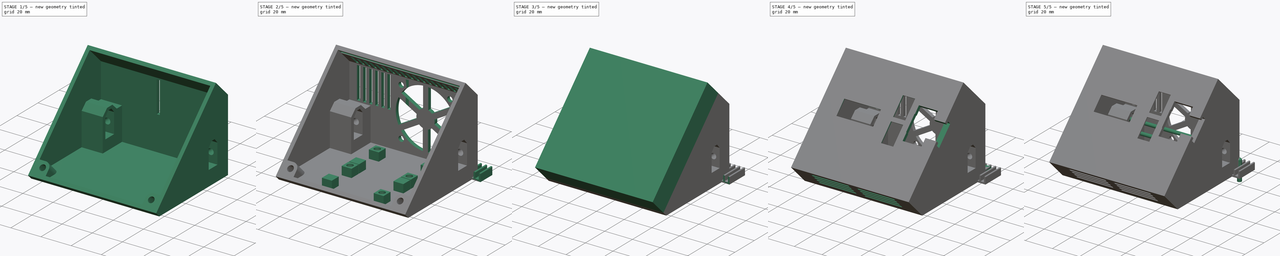
[diagram: build sequence overview — one tinted view per stage of 5, left to right]
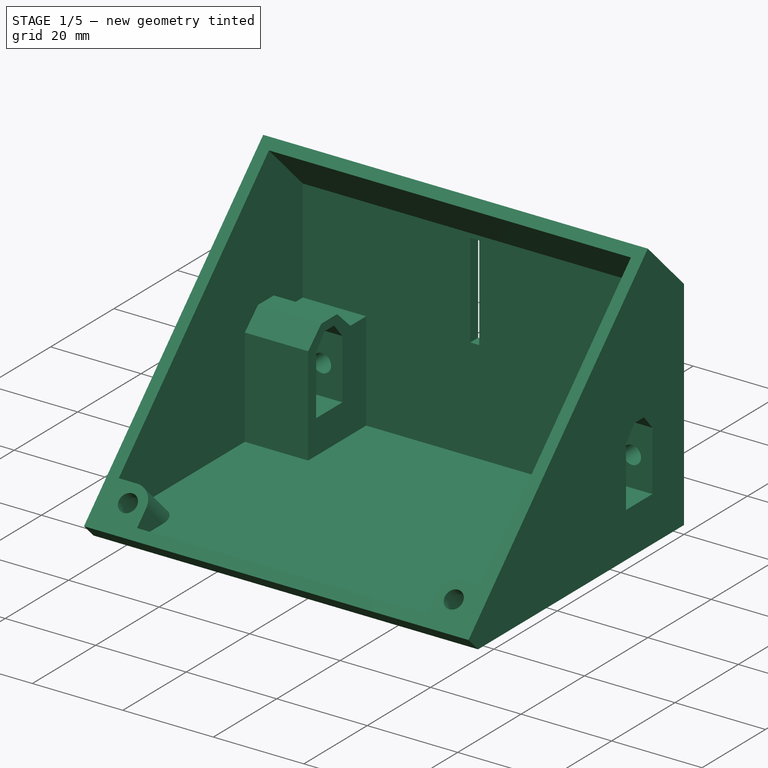
[diagram: stage 1 of 5 — iso view after this stage's code; geometry added in this stage tinted green]
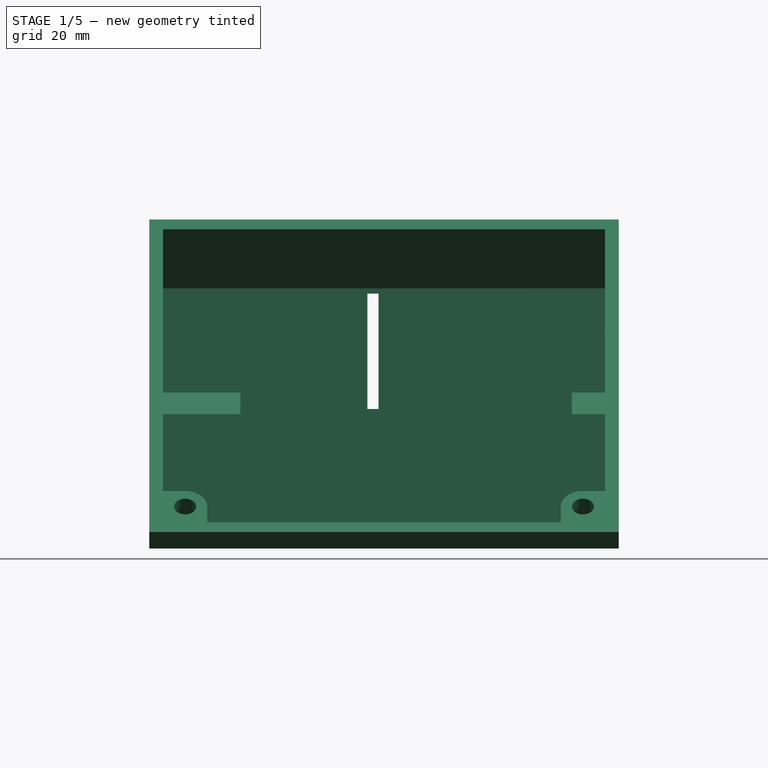
[diagram: stage 1 of 5 — front view after this stage's code; geometry added in this stage tinted green]
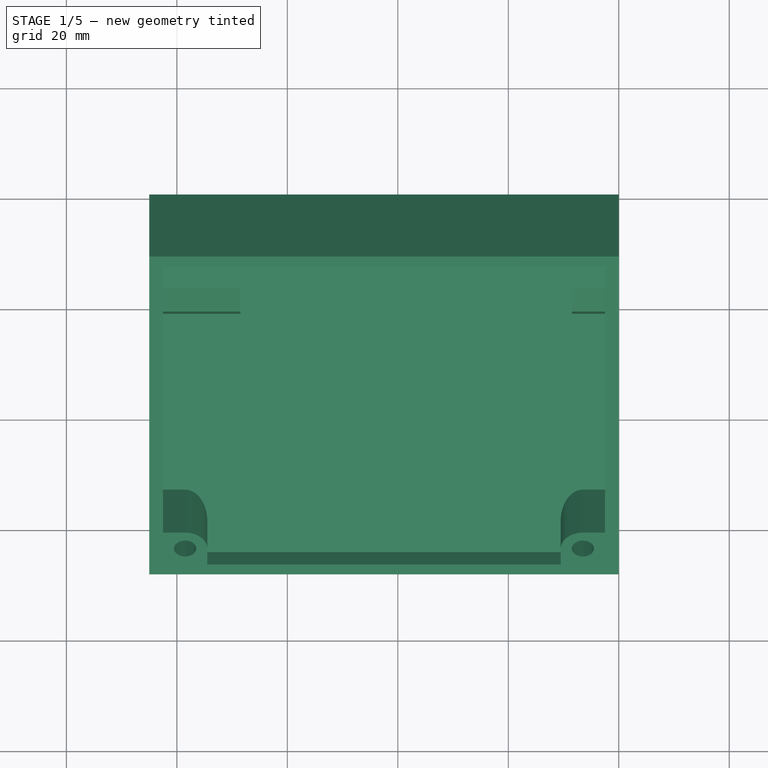
[diagram: stage 1 of 5 — top view after this stage's code; geometry added in this stage tinted green]
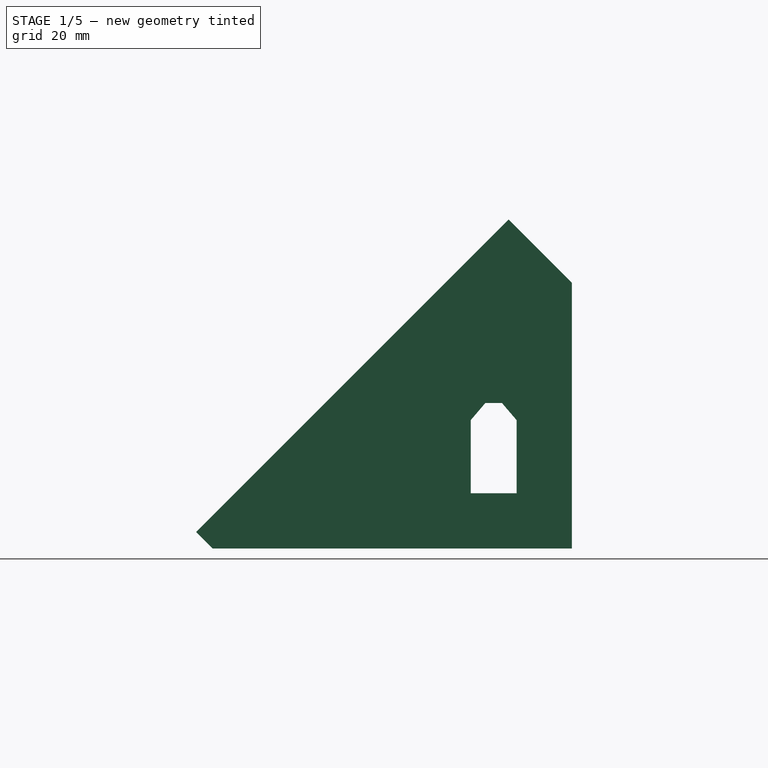
[diagram: stage 1 of 5 — right view after this stage's code; geometry added in this stage tinted green]
FCSTD DOCUMENT  (FreeCAD 0.20R29177 (Git))
Label: moduleUSB3A_023_SurBase35mm_013
License: All rights reserved
LicenseURL: http://en.wikipedia.org/wiki/All_rights_reserved
objects: Sketcher::SketchObject×57, PartDesign::Pocket×29, PartDesign::Pad×28, App::Part×21, PartDesign::Plane×17, App::Link×17, PartDesign::Body×15, Spreadsheet::Sheet×8, Part::Feature×6, App::LinkGroup×6, PartDesign::Fillet×6, PartDesign::LinearPattern×4, PartDesign::Chamfer×4, Part::FeaturePython×3, PartDesign::FeatureBase×2, PartDesign::Thickness×2, App::DocumentObjectGroup×1, PartDesign::PolarPattern×1
note: 243 computed .brp shape members not serialized (recipe doc carries the construction recipe); baked Part::Feature solids carry a one-line shape summary decoded from their .brp
EXTERNAL_REF file=modelsExterns/XL4015DCDC_002.FCStd obj=_Unsaved_
EXTERNAL_REF file=modelsExterns/fan40mm_001.FCStd obj=Part
EXTERNAL_REF file=modelsExterns/oled128x32_001.FCStd obj=Spreadsheet
EXTERNAL_REF file=modelsExterns/switch15x10_003_0.FCStd obj=Spreadsheet
EXTERNAL_REF file=modelsExterns/usbFem_001.FCStd obj=Spreadsheet
EXTERNAL_REF file=modelsExterns/usbFem_001.FCStd obj=Part
EXTERNAL_REF file=modelsExterns/switch15x10_003_0.FCStd obj=Part
EXTERNAL_REF file=modelsExterns/theBoard001.FCStd obj=usb5v3a_v2_1_1
EXTERNAL_REF file=modelsExterns/trimPot/trimPot001.FCStd obj=Part
EXTERNAL_REF file=dissip001.FCStd obj=Part

FEATURE [Sketcher::SketchObject] Sketch  label="profileDeBase"
  FullyConstrained = true
  MapMode = 5
  Placement = pos=(0,0,0) rot=(0.57735,0.57735,0.57735;2.0944rad)
  Support = -> [YZ_Plane001]
  expr: Constraints[10] = <<sp>>.petitRetour
  expr: Constraints[11] = <<sp>>.angleFacePetitRetour
  expr: Constraints[12] = <<sp>>.Face
  expr: Constraints[13] = <<sp>>.angleFaceRetourHaut
  expr: Constraints[8] = <<sp>>.Base
  expr: Constraints[9] = <<sp>>.anglePetitRetourBase
  sketch-geometry (5):
    g0: LineSegment StartX=0 StartY=0 StartZ=0 EndX=-65 EndY=0 EndZ=0
    g1: LineSegment StartX=-65 StartY=0 StartZ=0 EndX=-79.1421 EndY=14.1421 EndZ=0
    g2: LineSegment StartX=-79.1421 StartY=14.1421 StartZ=0 EndX=-22.5736 EndY=70.7107 EndZ=0
    g3: LineSegment StartX=-22.5736 StartY=70.7107 StartZ=0 EndX=0 EndY=48.1371 EndZ=0
    g4: LineSegment StartX=0 StartY=48.1371 StartZ=0 EndX=0 EndY=0 EndZ=0
  constraints (14):
    c: Coincident(g-1,g0)
    c: Horizontal(g0)
    c: Coincident(g0,g1)
    c: Coincident(g1,g2)
    c: Coincident(g2,g3)
    c: PointOnObject(g3,g-2)
    c: Coincident(g3,g4)
    c: Coincident(g4,g0)
    c: DistanceX(g0,g0) = 65
    c: Angle(g0,g1) = 2.35619
    c: Distance(g1) = 20
    c: Angle(g1,g2) = 1.5708
    c: Distance(g2) = 80
    c: Angle(g2,g3) = 1.5708
FEATURE [Spreadsheet::Sheet] Spreadsheet  label="sp"
  cells = A1=Base; B1(Base)=65; D1=insertDiamDeBase; E1=3; F1=(M3); A2=petitRetour; B2(petitRetour)=20; D2=insertDiamPercage; E2(insertDiamPercage)=4; A3=Face; B3(Face)=80; D3=insertProfondeurPercage; E3(insertProfondeurPercage)==xt60distanceAngleBord; F3=Calculé; A4=anglePetitRetourBase; B4(anglePetitRetourBase)=135; D4=insertDiamEvidementFer; E4=6; F4=Plus utilisé conservé pour mémoire; A5=angleFacePetitRetour; B5(angleFacePetitRetour)=90; D5=insertDistanceTrouBordMale; E5(insertDistanceTrouBordMale)==insertDiamPercage / 2 + epaisseurParois; F5=Calculé; A6=angleFaceRetourHaut; B6(angleFaceRetourHaut)=90; D6=insertDistanceTrouBordFem; E6(insertDistanceTrouBordFem)==largeurModuleBase - (insertDiamPercage / 2 + 10); F6=Calculé; A7=angleRetourHautVerticale; B7(angleRetourHautVerticale)=135; D7=insertHauteur; E7(insertHauteur)==xt60distanceAngleBord + xt60hauteur / 2; F7=Calculé; A8=largeurModuleBase; B8(largeurModuleBase)=85; D8=insertFAVDistBord; E8(insertFAVDistBord)==2 * insertFAVMargeDist + insertDiamPercage; A9=planTrancheur; B9(planTrancheur)=71; D9=insertFAVMargeDist; E9(insertFAVMargeDist)=2; F9=également epaisseur du renfort (min 1.6); A10=epaisseurParois; B10(epaisseurParois)=2.5; A11=porteBordALaParois; B11=3.5; D11=insertFavDistAuZeroDuPLan; E11(insertFavDistAuZeroDuPLan)==abs((planTrancheur - Base) * cos(anglePetitRetourBase)); F11=Calculé; A12=porteProfondeur1; B12=1.5; D12=insertFavProfondeur; E12(insertFavProfondeur)=8; F12=5.7+1 min; A13=porteLargeurRebord; B13=2; A14=xt60distanceAngleBord; B14(xt60distanceAngleBord)=10; D14=visM3DiamEncastrement; E14(visM3DiamEncastrement)=6; A15=xt60epRenfort; B15(xt60epRenfort)=2.5; D15=favEpBordure; E15(favEpBordure)=1.5; A16=xt60base; B16(xt60base)=8.300000000000001; D16=favBordureProf; E16(favBordureProf)=4.15; A17=xt60hauteur; B17(xt60hauteur)=13.25; D17=favBordureJeu; E17(favBordureJeu)=0.5; A18=xt60hauteurToit; B18(xt60hauteurToit)=2.5; D18=favDistBordPlan; E18(favDistBordPlan)==insertFavDistAuZeroDuPLan + epaisseurParois + insertFAVDistBord + insertFAVMargeDist; A19=xt60largeurFetiere; B19(xt60largeurFetiere)=3; A20=epaisseurFav; B20=15.5; A21=xt60longueurRenfortGrand; B21(xt60longueurRenfortGrand)=14; A22=xt60LongueurRenfortPetit; B22(xt60LongueurRenfortPetit)=6; D22=ventilLargeurFentes; E22(ventilLargeurFentes)=2; A23=hauteurDuDos; B23(hauteurDuDos)==(Face + petitRetour) * sqr2Sur2 - (Base + (petitRetour - Face) * sqr2Sur2); D23=ventilEcartfente; E23(ventilEcartfente)=2; A24=sqr2Sur2; B24(sqr2Sur2)==sqrt(2) / 2; D24=ventilDistBordFente; E24(ventilDistBordFente)=2; F24=Marge de sécurité; A25=distanceAuZeroPlanBorArriere; B25(distanceAuZeroPlanBorArriere)==sqrt(2 * pow(hauteurDuDos; 2)); D25=grandA; E25(grandA)==(largeurModuleBase - 2 * epaisseurParois) / 2; F25=Calculé; A26=hauteurPetitRetourSup; B26(hauteurPetitRetourSup)==Base + petitRetour * sqr2Sur2 - 80 * sqr2Sur2; D26=ventilLargeurRepet; E26(ventilLargeurRepet)==(ventilNbrFents - 1) * (ventilLargeurFentes + ventilEcartfente); F26=Calculé; A27=longeurPetitRetourSup; B27(longeurPetitRetourSup)==sqrt(2 * pow(hauteurPetitRetourSup; 2)); D27=ventilNbrFents; E27(ventilNbrFents)==floor(ventilLargeurRepetUtilisable / (ventilLargeurFentes + ventilEcartfente)); F27=Calculé; A28=longPetitRetSupSansFav; B28(longPetitRetSupSansFav)==longeurPetitRetourSup - (petitRetour - insertFavDistAuZeroDuPLan); D28=ventilLargeurRepetUtilisable; E28(ventilLargeurRepetUtilisable)==grandA - ventilDistBordFente - ventilEcartfente / 2; A29=planFaceAvant; B29(planFaceAvant)==Base + petitRetour * sqrt(2); A30=distZeroPlanFAV; B30(distZeroPlanFAV)==petitRetour; A31=bourletMaintientRayon; B31(bourletMaintientRayon)=1.5; A32=bourletDistAuBord; B32(bourletDistAuBord)=16; A33=bourletRayonJeu; B33(bourletRayonJeu)=0.2; A34=xtJeu; B34(xtJeu)=0.6
FEATURE [PartDesign::Pad] Pad
  AllowMultiFace = false
  Direction = (1,-2e-16,3e-16)
  Length = 85
  Length2 = 100
  Placement = pos=(0,0,0) rot=(0.57735,0.57735,0.57735;2.0944rad)
  Profile = -> Sketch
  Reversed = true
  Type = 0
  expr: Length = <<sp>>.largeurModuleBase
FEATURE [PartDesign::Plane] DatumPlane
  AttachmentOffset = pos=(71,0,0) rot=(0,-1,0;0.785398rad)
  Length = 98.6412
  MapMode = 5
  Placement = pos=(-7.9e-15,8e-15,71) rot=(0.678598,0.678598,0.281085;3.68962rad)
  ResizeMode = 0
  Support = -> [Pad]
  Width = 63.0813
FEATURE [PartDesign::Body] Body  label="Base"
  Group = -> [Sketch,Pad,DatumPlane]
  Origin = -> Origin001
  Tip = -> Pad
FEATURE [App::Part] Part
  Group = -> [Body]
  Origin = -> Origin
FEATURE [Part::FeaturePython] Slice  # WARN: FeaturePython — macro-defined, semantics opaque (R4)
  Base = -> Pad
  Mode = 1
  Tolerance = 0
  Tools = -> [DatumPlane]
FEATURE [Part::FeaturePython] Slice_child0  label="Slice.0"  # WARN: FeaturePython — macro-defined, semantics opaque (R4)
  Base = -> Slice
  FilterType = 1
  Invert = false
  OverrideMaxVal = 0
  WindowFrom = 80
  WindowTo = 100
  items = 0
FEATURE [App::DocumentObjectGroup] GrExplode_Slice  label="Exploded Slice"
  Group = -> [Slice_child0,Slice_child1]
FEATURE [PartDesign::FeatureBase] Clone
  BaseFeature = -> Slice_child0
FEATURE [PartDesign::Thickness] Thickness
  Base = -> Clone [Face7]
  BaseFeature = -> Clone
  Intersection = false
  Join = 0
  Mode = 0
  Reversed = true
  SupportTransform = false
  Value = 2.5
  expr: Value = <<sp>>.epaisseurParois
FEATURE [PartDesign::Plane] DatumPlane001  label="planXt"
  AttachmentOffset = pos=(0,0,-2.5) rot=(0,0,1;0rad)
  Length = 110.737
  MapMode = 5
  Placement = pos=(-2.5,6e-16,-6e-16) rot=(0.57735,0.57735,0.57735;2.0944rad)
  ResizeMode = 0
  Support = -> [YZ_Plane002]
  Width = 102.305
  expr: .AttachmentOffset.Base.z = -<<sp>>.epaisseurParois
FEATURE [Sketcher::SketchObject] Sketch002  label="sk_renfortXt"
  FullyConstrained = true
  MapMode = 5
  Placement = pos=(-2.5,6e-16,-6e-16) rot=(0.57735,0.57735,0.57735;2.0944rad)
  Support = -> [DatumPlane001]
  expr: .Constraints.dist = <<sp>>.xt60distanceAngleBord
  expr: .Constraints.epRf = <<sp>>.xt60epRenfort
  expr: Constraints[13] = <<sp>>.xt60largeurFetiere
  expr: Constraints[14] = <<sp>>.xt60hauteur
  expr: Constraints[15] = <<sp>>.xt60hauteurToit
  expr: Constraints[16] = <<sp>>.xt60base
  expr: Constraints[18] = .Constraints.dist
  expr: Constraints[31] = <<sp>>.epaisseurParois
  expr: Constraints[32] = .Constraints.epRf
  expr: Constraints[34] = .Constraints.epRf
  expr: Constraints[45] = <<sp>>.epaisseurParois
  sketch-geometry (17):
    g0: LineSegment StartX=-18.3 StartY=10 StartZ=0 EndX=-18.3 EndY=23.25 EndZ=0
    g1: LineSegment StartX=-18.3 StartY=23.25 StartZ=0 EndX=-15.65 EndY=25.75 EndZ=0
    g2: LineSegment StartX=-15.65 StartY=25.75 StartZ=0 EndX=-12.65 EndY=25.75 EndZ=0
    g3: LineSegment StartX=-12.65 StartY=25.75 StartZ=0 EndX=-10 EndY=23.25 EndZ=0
    g4: LineSegment StartX=-10 StartY=23.25 StartZ=0 EndX=-10 EndY=10 EndZ=0
    g5: LineSegment StartX=-10 StartY=10 StartZ=0 EndX=-18.3 EndY=10 EndZ=0
    g6: LineSegment StartX=-14.15 StartY=10 StartZ=0 EndX=-14.15 EndY=25.75 EndZ=0
    g7: LineSegment StartX=-16.6431 StartY=28.25 StartZ=0 EndX=-20.8 EndY=24.3284 EndZ=0
    g8: LineSegment StartX=-20.8 StartY=24.3284 StartZ=0 EndX=-20.8 EndY=2.5 EndZ=0
    g9: LineSegment StartX=-20.8 StartY=2.5 StartZ=0 EndX=-7.5 EndY=2.5 EndZ=0
    g10: LineSegment StartX=-7.5 StartY=2.5 StartZ=0 EndX=-7.5 EndY=24.3284 EndZ=0
    g11: LineSegment StartX=-7.5 StartY=24.3284 StartZ=0 EndX=-11.6569 EndY=28.25 EndZ=0
    g12: LineSegment StartX=-11.6569 StartY=28.25 StartZ=0 EndX=-16.6431 EndY=28.25 EndZ=0
    g13: LineSegment StartX=-7.5 StartY=24.3284 StartZ=0 EndX=-2.5 EndY=24.3284 EndZ=0
    g14: LineSegment StartX=-2.5 StartY=24.3284 StartZ=0 EndX=-2.5 EndY=2.5 EndZ=0
    g15: LineSegment StartX=-2.5 StartY=2.5 StartZ=0 EndX=-7.5 EndY=2.5 EndZ=0
    g16: LineSegment StartX=-7.5 StartY=2.5 StartZ=0 EndX=-7.5 EndY=24.3284 EndZ=0
  constraints (46):
    c: Vertical(g0)
    c: Coincident(g0,g1)
    c: Coincident(g1,g2)
    c: Horizontal(g2)
    c: Coincident(g2,g3)
    c: Coincident(g3,g4)
    c: Vertical(g4)
    c: Coincident(g4,g5)
    c: Coincident(g5,g0)
    c: Horizontal(g5)
    c: Symmetric(g1,g2,g6)
    c: Equal(g0,g4)
    c: Symmetric(g0,g4,g6)
    c: DistanceX(g2,g2) = 3
    c: DistanceY(g4,g4) = 13.25
    c: DistanceY(g3,g2) = 2.5
    c: DistanceX(g5,g5) = 8.3
    c: DistanceX(g4,g-1) = 10  'dist'
    c: DistanceY(g-1,g4) = 10
    c: Coincident(g7,g8)
    c: Vertical(g8)
    c: Coincident(g8,g9)
    c: Horizontal(g9)
    c: Coincident(g9,g10)
    c: Coincident(g10,g11)
    c: Coincident(g11,g12)
    c: Coincident(g12,g7)
    c: Symmetric(g7,g10,g6)
    c: Symmetric(g7,g11,g6)
    c: Symmetric(g8,g9,g6)
    c: DistanceX(g8,g0) = 2.5  'epRf'
    c: DistanceY(g-1,g9) = 2.5
    c: Distance(g7,g1) = 2.5
    c: Parallel(g1,g7)
    c: DistanceY(g2,g11) = 2.5
    c: Coincident(g13,g14)
    c: Coincident(g14,g15)
    c: Coincident(g15,g16)
    c: Coincident(g16,g13)
    c: Horizontal(g13)
    c: Horizontal(g15)
    c: Vertical(g14)
    c: Vertical(g16)
    c: Coincident(g13,g11)
    c: Horizontal(g14,g9)
    c: DistanceX(g14,g-1) = 2.5
FEATURE [PartDesign::Pad] Pad001  label="renfortXt"
  AllowMultiFace = false
  BaseFeature = -> Thickness
  Direction = (1,-1e-16,1e-16)
  Length = 80
  Length2 = 100
  Profile = -> Sketch002
  Reversed = true
  Type = 0
  expr: Length = <<sp>>.largeurModuleBase - 2 * <<sp>>.epaisseurParois
FEATURE [Sketcher::SketchObject] Sketch003  label="sk_trouXt"
  FullyConstrained = true
  MapMode = 5
  Placement = pos=(0,0,0) rot=(0.57735,0.57735,0.57735;2.0944rad)
  Support = -> [YZ_Plane002]
  expr: .Constraints.dist = <<sp>>.xt60distanceAngleBord
  expr: Constraints[13] = <<sp>>.xt60base
  expr: Constraints[14] = <<sp>>.xt60hauteur
  expr: Constraints[15] = <<sp>>.xt60hauteurToit + <<sp>>.xtJeu
  expr: Constraints[16] = <<sp>>.xt60largeurFetiere
  expr: Constraints[18] = .Constraints.dist
  sketch-geometry (7):
    g0: LineSegment StartX=-18.3 StartY=10 StartZ=0 EndX=-18.3 EndY=23.25 EndZ=0
    g1: LineSegment StartX=-18.3 StartY=23.25 StartZ=0 EndX=-15.65 EndY=26.35 EndZ=0
    g2: LineSegment StartX=-15.65 StartY=26.35 StartZ=0 EndX=-12.65 EndY=26.35 EndZ=0
    g3: LineSegment StartX=-12.65 StartY=26.35 StartZ=0 EndX=-10 EndY=23.25 EndZ=0
    g4: LineSegment StartX=-10 StartY=23.25 StartZ=0 EndX=-10 EndY=10 EndZ=0
    g5: LineSegment StartX=-10 StartY=10 StartZ=0 EndX=-18.3 EndY=10 EndZ=0
    g6: LineSegment StartX=-14.15 StartY=10 StartZ=0 EndX=-14.15 EndY=26.35 EndZ=0
  constraints (19):
    c: Vertical(g0)
    c: Coincident(g0,g1)
    c: Coincident(g1,g2)
    c: Horizontal(g2)
    c: Coincident(g2,g3)
    c: Coincident(g3,g4)
    c: Coincident(g4,g5)
    c: Coincident(g5,g0)
    c: Horizontal(g5)
    c: Symmetric(g1,g2,g6)
    c: Symmetric(g0,g3,g6)
    c: Vertical(g6)
    c: Symmetric(g0,g4,g6)
    c: DistanceX(g5,g5) = 8.3
    c: DistanceY(g4,g4) = 13.25
    c: DistanceY(g3,g2) = 3.1
    c: DistanceX(g2,g2) = 3
    c: DistanceX(g4,g-1) = 10  'dist'
    c: DistanceY(g-1,g4) = 10
FEATURE [PartDesign::Pocket] Pocket
  AllowMultiFace = false
  BaseFeature = -> Pad001
  Direction = (-1,2e-16,-3e-16)
  Length = 85
  Length2 = 100
  Profile = -> Sketch003
  Type = 0
  expr: Length = <<sp>>.largeurModuleBase
FEATURE [PartDesign::Plane] DatumPlane002  label="planDecoupeRenfortXt"
  AttachmentOffset = pos=(0,0,2.5) rot=(0,0,1;0rad)
  Length = 129.29
  MapMode = 5
  Placement = pos=(0,-2.5,-6e-16) rot=(1,0,0;1.5708rad)
  ResizeMode = 0
  Support = -> [XZ_Plane002]
  Width = 103.858
  expr: .AttachmentOffset.Base.z = <<sp>>.epaisseurParois
FEATURE [Sketcher::SketchObject] Sketch004  label="sk_decoupRenfXt"
  FullyConstrained = true
  MapMode = 5
  Placement = pos=(0,-2.5,-6e-16) rot=(1,0,0;1.5708rad)
  Support = -> [DatumPlane002]
  expr: Constraints[10] = <<sp>>.xt60LongueurRenfortPetit + <<sp>>.epaisseurParois
  expr: Constraints[11] = <<sp>>.largeurModuleBase - (<<sp>>.xt60longueurRenfortGrand + <<sp>>.epaisseurParois)
  expr: Constraints[8] = <<sp>>.epaisseurParois
  expr: Constraints[9] = <<sp>>.xt60distanceAngleBord + <<sp>>.xt60hauteur + <<sp>>.xt60hauteurToit + <<sp>>.xt60epRenfort
  sketch-geometry (4):
    g0: LineSegment StartX=-68.5 StartY=28.25 StartZ=0 EndX=-8.5 EndY=28.25 EndZ=0
    g1: LineSegment StartX=-8.5 StartY=28.25 StartZ=0 EndX=-8.5 EndY=2.5 EndZ=0
    g2: LineSegment StartX=-8.5 StartY=2.5 StartZ=0 EndX=-68.5 EndY=2.5 EndZ=0
    g3: LineSegment StartX=-68.5 StartY=2.5 StartZ=0 EndX=-68.5 EndY=28.25 EndZ=0
  constraints (12):
    c: Coincident(g0,g1)
    c: Coincident(g1,g2)
    c: Coincident(g2,g3)
    c: Coincident(g3,g0)
    c: Horizontal(g0)
    c: Horizontal(g2)
    c: Vertical(g1)
    c: Vertical(g3)
    c: DistanceY(g-1,g1) = 2.5
    c: DistanceY(g-1,g0) = 28.25
    c: DistanceX(g1,g-1) = 8.5
    c: DistanceX(g2,g-1) = 68.5
FEATURE [PartDesign::Pocket] Pocket001  label="decoupeRenfXt"
  AllowMultiFace = false
  BaseFeature = -> Pocket
  Direction = (0,1,2e-16)
  Length = 23.3
  Length2 = 100
  Profile = -> Sketch004
  Reversed = true
  Type = 0
  expr: Length = <<sp>>.xt60distanceAngleBord + <<sp>>.xt60base + 2 * <<sp>>.xt60epRenfort
FEATURE [Sketcher::SketchObject] Sketch005  label="xt60PercagePostMale"
  FullyConstrained = true
  MapMode = 5
  Placement = pos=(0,0,0) rot=(1,0,0;1.5708rad)
  Support = -> [XZ_Plane002]
  expr: Constraints[0] = <<sp>>.insertDiamPercage
  expr: Constraints[1] = <<sp>>.insertDistanceTrouBordMale
  expr: Constraints[2] = <<sp>>.insertHauteur
  sketch-geometry (1):
    g0: Circle CenterX=-4.5 CenterY=16.625 CenterZ=0 NormalX=0 NormalY=0 NormalZ=1 AngleXU=0 Radius=2
  constraints (3):
    c: Diameter(g0) = 4
    c: DistanceX(g0,g-1) = 4.5
    c: DistanceY(g-1,g0) = 16.625
FEATURE [Part::Feature] Part__Feature  label="XT60FemaleConnector"
  shape: bbox 20.5 x 7.501 x 16.55 mm, 417 faces, 3 solids (baked)
FEATURE [App::Part] Part001  label="xt60fem"
  Group = -> [Part__Feature]
  Origin = -> Origin004
  Placement = pos=(-77,-14,16.7) rot=(1,0,0;3.14159rad)
  expr: .Placement.Base.x = -(<<sp>>.largeurModuleBase - 8)
FEATURE [Part::Feature] Part__Feature001  label="XT60MaleConnector"
  shape: bbox 20.2 x 7.5 x 16.55 mm, 393 faces, 3 solids (baked)
FEATURE [App::Part] Part002  label="xt60Male"
  Group = -> [Part__Feature001]
  Origin = -> Origin005
  Placement = pos=(0.4,-13.95,16.75) rot=(0,1,0;3.14159rad)
FEATURE [PartDesign::Pocket] Pocket002  label="insertXtMale"
  AllowMultiFace = false
  BaseFeature = -> Pocket001
  Direction = (0,1,2e-16)
  Length = 10
  Length2 = 100
  Profile = -> Sketch005
  Reversed = true
  Type = 0
  expr: Length = <<sp>>.insertProfondeurPercage
FEATURE [Sketcher::SketchObject] Sketch006  label="xt60PercagePostFem"
  FullyConstrained = true
  MapMode = 5
  Placement = pos=(0,0,0) rot=(1,0,0;1.5708rad)
  Support = -> [XZ_Plane002]
  expr: Constraints[0] = <<sp>>.insertDiamPercage
  expr: Constraints[1] = <<sp>>.insertDistanceTrouBordFem
  expr: Constraints[2] = <<sp>>.insertHauteur
  sketch-geometry (1):
    g0: Circle CenterX=-73 CenterY=16.625 CenterZ=0 NormalX=0 NormalY=0 NormalZ=1 AngleXU=0 Radius=2
  constraints (3):
    c: Diameter(g0) = 4
    c: DistanceX(g0,g-1) = 73
    c: DistanceY(g-1,g0) = 16.625
FEATURE [PartDesign::Pocket] Pocket003  label="insertXt60Fem"
  AllowMultiFace = false
  BaseFeature = -> Pocket002
  Direction = (0,1,2e-16)
  Length = 10
  Length2 = 100
  Profile = -> Sketch006
  Reversed = true
  Type = 0
  expr: Length = <<sp>>.insertProfondeurPercage
FEATURE [PartDesign::Plane] DatumPlane003
  AttachmentOffset = pos=(0,0,2.5) rot=(0,0,1;0rad)
  Length = 130.229
  MapMode = 2
  Placement = pos=(0,0,2.5) rot=(0,0,1;0rad)
  ResizeMode = 0
  Support = -> [XY_Plane002]
  Width = 113.229
  expr: .AttachmentOffset.Base.z = <<sp>>.epaisseurParois
FEATURE [PartDesign::Plane] DatumPlane004  label="planTrancheur"
  AttachmentOffset = pos=(0,0,71) rot=(-1,0,0;0.785398rad)
  Length = 133.505
  MapMode = 5
  Placement = pos=(0,-71,-1.58e-14) rot=(1,0,0;0.785398rad)
  ResizeMode = 0
  Support = -> [XZ_Plane002]
  Width = 149.064
  expr: .AttachmentOffset.Base.z = <<sp>>.planTrancheur
FEATURE [Sketcher::SketchObject] Sketch008
  FullyConstrained = true
  MapMode = 5
  Placement = pos=(0,-71,-2.13e-14) rot=(1,0,0;0.785398rad)
  Support = -> [DatumPlane004]
  expr: .Constraints.dist = <<sp>>.epaisseurParois
  expr: Constraints[13] = <<sp>>.epaisseurParois
  expr: Constraints[16] = <<sp>>.insertDiamPercage / 2 + <<sp>>.insertFAVMargeDist
  expr: Constraints[1] = <<sp>>.insertFavDistAuZeroDuPLan
  expr: Constraints[21] = <<sp>>.insertFAVDistBord
  expr: Constraints[22] = <<sp>>.largeurModuleBase - <<sp>>.epaisseurParois
  sketch-geometry (7):
    g0: LineSegment StartX=-2.5 StartY=4.24264 StartZ=0 EndX=-82.5 EndY=4.24264 EndZ=0
    g1: LineSegment StartX=-6.5 StartY=14.7426 StartZ=0 EndX=-2.5 EndY=14.7426 EndZ=0
    g2: LineSegment StartX=-2.5 StartY=14.7426 StartZ=0 EndX=-2.5 EndY=6.74264 EndZ=0
    g3: LineSegment StartX=-2.5 StartY=6.74264 StartZ=0 EndX=-10.5 EndY=6.74264 EndZ=0
    g4: LineSegment StartX=-10.5 StartY=6.74264 StartZ=0 EndX=-10.5 EndY=10.7426 EndZ=0
    g5: ArcOfCircle CenterX=-6.5 CenterY=10.7426 CenterZ=0 NormalX=0 NormalY=0 NormalZ=1 AngleXU=0 Radius=4 StartAngle=1.5708 EndAngle=3.14159
    g6: LineSegment StartX=-6.5 StartY=10.7426 StartZ=0 EndX=-6.5 EndY=6.74264 EndZ=0
  constraints (23):
    c: Horizontal(g0)
    c: DistanceY(g-1,g0) = 4.24264
    c: DistanceX(g0,g-1) = 2.5  'dist'
    c: Horizontal(g1)
    c: Coincident(g1,g2)
    c: Vertical(g2)
    c: Coincident(g2,g3)
    c: Horizontal(g3)
    c: Coincident(g3,g4)
    c: Vertical(g4)
    c: Vertical(g2,g0)
    c: Equal(g3,g2)
    c: Equal(g4,g1)
    c: DistanceY(g0,g2) = 2.5
    c: Coincident(g5,g4)
    c: Coincident(g5,g1)
    c: DistanceX(g5,g2) = 4
    c: Coincident(g6,g5)
    c: PointOnObject(g6,g3)
    c: Vertical(g6)
    c: Vertical(g5,g1)
    c: DistanceX(g3,g3) = 8
    c: DistanceX(g0,g-1) = 82.5
FEATURE [PartDesign::Pad] Pad003  label="padTrouFAVDroite"
  AllowMultiFace = false
  BaseFeature = -> Pocket003
  Direction = (0,-0.707107,0.707107)
  Length = 10
  Length2 = 100
  Profile = -> Sketch008
  Reversed = true
  Type = 3
  UpToFace = -> DatumPlane003
FEATURE [Sketcher::SketchObject] Sketch009
  FullyConstrained = true
  MapMode = 5
  Placement = pos=(0,-71,-2.13e-14) rot=(1,0,0;0.785398rad)
  Support = -> [DatumPlane004]
  expr: .Constraints.larg = <<sp>>.insertFAVDistBord
  expr: Constraints[11] = .Constraints.larg / 2
  expr: Constraints[12] = <<sp>>.largeurModuleBase
  expr: Constraints[13] = <<sp>>.insertFavDistAuZeroDuPLan
  expr: Constraints[14] = <<sp>>.epaisseurParois
  expr: Constraints[15] = <<sp>>.epaisseurParois
  expr: Constraints[8] = .Constraints.larg
  sketch-geometry (6):
    g0: LineSegment StartX=-82.5 StartY=6.74264 StartZ=0 EndX=-74.5 EndY=6.74264 EndZ=0
    g1: LineSegment StartX=-74.5 StartY=6.74264 StartZ=0 EndX=-74.5 EndY=10.7426 EndZ=0
    g2: LineSegment StartX=-78.5 StartY=14.7426 StartZ=0 EndX=-82.5 EndY=14.7426 EndZ=0
    g3: LineSegment StartX=-82.5 StartY=14.7426 StartZ=0 EndX=-82.5 EndY=6.74264 EndZ=0
    g4: ArcOfCircle CenterX=-78.5 CenterY=10.7426 CenterZ=0 NormalX=0 NormalY=0 NormalZ=1 AngleXU=0 Radius=4 StartAngle=1e-16 EndAngle=1.5708
    g5: GeomPoint X=-85 Y=4.24264 Z=0
  constraints (16):
    c: Coincident(g0,g1)
    c: Coincident(g2,g3)
    c: Coincident(g3,g0)
    c: Horizontal(g0)
    c: Horizontal(g2)
    c: Vertical(g1)
    c: Vertical(g3)
    c: DistanceX(g0,g0) = 8  'larg'
    c: DistanceY(g3,g3) = 8
    c: Tangent(g2,g4) = -1.5708
    c: Tangent(g1,g4) = -1.5708
    c: DistanceX(g0,g4) = 4
    c: DistanceX(g5,g-1) = 85
    c: DistanceY(g-1,g5) = 4.24264
    c: DistanceX(g5,g0) = 2.5
    c: DistanceY(g5,g0) = 2.5
FEATURE [PartDesign::Pad] Pad004  label="padTrouFavGauche"
  AllowMultiFace = false
  BaseFeature = -> Pad003
  Direction = (0,-0.707107,0.707107)
  Length = 10
  Length2 = 100
  Profile = -> Sketch009
  Type = 3
  UpToFace = -> DatumPlane003 [Plane]
FEATURE [Sketcher::SketchObject] Sketch010
  FullyConstrained = true
  MapMode = 5
  Placement = pos=(0,-71,-2.13e-14) rot=(1,0,0;0.785398rad)
  Support = -> [DatumPlane004]
  expr: Constraints[0] = <<sp>>.insertFAVDistBord / 2 + <<sp>>.epaisseurParois
  expr: Constraints[1] = <<sp>>.insertFavDistAuZeroDuPLan + <<sp>>.epaisseurParois + <<sp>>.insertFAVDistBord / 2
  expr: Constraints[2] = <<sp>>.insertDiamPercage
  sketch-geometry (1):
    g0: Circle CenterX=-6.5 CenterY=10.7426 CenterZ=0 NormalX=0 NormalY=0 NormalZ=1 AngleXU=0 Radius=2
  constraints (3):
    c: DistanceX(g0,g-1) = 6.5
    c: DistanceY(g-1,g0) = 10.7426
    c: Diameter(g0) = 4
FEATURE [PartDesign::Pocket] Pocket004  label="trouDroit"
  AllowMultiFace = false
  BaseFeature = -> Pad004
  Direction = (0,0.707107,-0.707107)
  Length = 5
  Length2 = 100
  Profile = -> Sketch010
  Type = 1
FEATURE [Sketcher::SketchObject] Sketch011
  FullyConstrained = true
  MapMode = 5
  Placement = pos=(0,-71,-2.13e-14) rot=(1,0,0;0.785398rad)
  Support = -> [DatumPlane004]
  expr: Constraints[0] = <<sp>>.insertDiamPercage
  expr: Constraints[1] = <<sp>>.largeurModuleBase - <<sp>>.epaisseurParois - <<sp>>.insertFAVDistBord / 2
  expr: Constraints[2] = <<sp>>.insertFavDistAuZeroDuPLan + <<sp>>.epaisseurParois + <<sp>>.insertFAVDistBord / 2
  sketch-geometry (1):
    g0: Circle CenterX=-78.5 CenterY=10.7426 CenterZ=0 NormalX=0 NormalY=0 NormalZ=1 AngleXU=0 Radius=2
  constraints (3):
    c: Diameter(g0) = 4
    c: DistanceX(g0,g-1) = 78.5
    c: DistanceY(g-1,g0) = 10.7426
FEATURE [PartDesign::Pocket] Pocket005  label="trouGauche"
  AllowMultiFace = false
  BaseFeature = -> Pocket004
  Direction = (0,0.707107,-0.707107)
  Length = 5
  Length2 = 100
  Profile = -> Sketch011
  Type = 1
FEATURE [PartDesign::Plane] DatumPlane005  label="planTeteVisFav"
  AttachmentOffset = pos=(0,0,68) rot=(-1,0,0;0.785398rad)
  Length = 133.505
  MapMode = 5
  Placement = pos=(0,-68,-1.51e-14) rot=(1,0,0;0.785398rad)
  ResizeMode = 0
  Support = -> [XZ_Plane002]
  Width = 149.064
  expr: .AttachmentOffset.Base.z = <<sp>>.planTrancheur - 3
FEATURE [Sketcher::SketchObject] Sketch012
  ExternalGeometry = -> [Pocket005]
  FullyConstrained = true
  MapMode = 5
  Placement = pos=(0,-68,-1.42e-14) rot=(1,0,0;0.785398rad)
  Support = -> [DatumPlane005]
  expr: Constraints[1] = <<sp>>.visM3DiamEncastrement
  sketch-geometry (2):
    g0: Circle CenterX=-6.5 CenterY=8.62132 CenterZ=0 NormalX=0 NormalY=0 NormalZ=1 AngleXU=0 Radius=3
    g1: Circle CenterX=-78.5 CenterY=8.62132 CenterZ=0 NormalX=0 NormalY=0 NormalZ=1 AngleXU=0 Radius=3
  constraints (4):
    c: Equal(g0,g1)
    c: Diameter(g1) = 6
    c: Coincident(g1,g-4)
    c: Coincident(g-3,g0)
FEATURE [PartDesign::Pocket] Pocket006  label="evidementTeteVisFav"
  AllowMultiFace = false
  BaseFeature = -> Pocket005
  Direction = (0,0.707107,-0.707107)
  Length = 20
  Length2 = 100
  Profile = -> Sketch012
  Type = 1
FEATURE [Sketcher::SketchObject] Sketch014
  FullyConstrained = true
  MapMode = 5
  Placement = pos=(0,0,0) rot=(1,0,0;1.5708rad)
  Support = -> [XZ_Plane002]
  expr: Constraints[12] = <<sp>>.xt60distanceAngleBord + <<sp>>.xt60hauteur + <<sp>>.ventilDistBordFente
  expr: Constraints[13] = <<sp>>.ventilLargeurFentes
  expr: Constraints[14] = <<sp>>.ventilEcartfente / 2
  expr: Constraints[15] = <<sp>>.hauteurDuDos - <<sp>>.ventilDistBordFente
  expr: Constraints[2] = <<sp>>.hauteurDuDos
  expr: Constraints[3] = <<sp>>.largeurModuleBase / 2
  sketch-geometry (5):
    g0: LineSegment StartX=-42.5 StartY=0 StartZ=0 EndX=-42.5 EndY=48.1371 EndZ=0
    g1: LineSegment StartX=-45.5 StartY=46.1371 StartZ=0 EndX=-43.5 EndY=46.1371 EndZ=0
    g2: LineSegment StartX=-43.5 StartY=46.1371 StartZ=0 EndX=-43.5 EndY=25.25 EndZ=0
    g3: LineSegment StartX=-43.5 StartY=25.25 StartZ=0 EndX=-45.5 EndY=25.25 EndZ=0
    g4: LineSegment StartX=-45.5 StartY=25.25 StartZ=0 EndX=-45.5 EndY=46.1371 EndZ=0
  constraints (16):
    c: PointOnObject(g0,g-1)
    c: Vertical(g0)
    c: DistanceY(g0,g0) = 48.1371
    c: DistanceX(g0,g-1) = 42.5
    c: Coincident(g1,g2)
    c: Coincident(g2,g3)
    c: Coincident(g3,g4)
    c: Coincident(g4,g1)
    c: Horizontal(g1)
    c: Horizontal(g3)
    c: Vertical(g2)
    c: Vertical(g4)
    c: DistanceY(g-1,g2) = 25.25
    c: DistanceX(g1,g1) = 2
    c: DistanceX(g2,g0) = 1
    c: DistanceY(g-1,g1) = 46.1371
FEATURE [PartDesign::Pocket] Pocket008  label="ventilFente1"
  AllowMultiFace = false
  BaseFeature = -> Pocket006
  Direction = (0,1,2e-16)
  Length = 2.5
  Length2 = 100
  Profile = -> Sketch014
  Reversed = true
  Type = 0
  expr: Length = <<sp>>.epaisseurParois
FEATURE [PartDesign::Body] Body001  label="base"
  BaseFeature = -> Slice_child0
  Group = -> [Clone,Thickness,DatumPlane001,Sketch002,Pad001,Sketch003,Pocket,DatumPlane002,Sketch004,Pocket001,Sketch005,Pocket002,Sketch006,Pocket003,DatumPlane003,DatumPlane004,Sketch008,Pad003,Sketch009,Pad004,Sketch010,Pocket004,Sketch011,Pocket005,DatumPlane005,Sketch012,Pocket006,Sketch014,Pocket008,LinearPattern,LinearPattern001,DatumPlane006,Sketch015,Pocket009,LinearPattern002,LinearPattern003,+14 more]
  Origin = -> Origin002
  Tip = -> PolarPattern

RESOLVED EXTERNAL PARTS (link-assembly join: the EXTERNAL_REF files above that resolve inside this repo's crawl, each included once):
---- part dissip001.FCStd = doc fcstd_eb7cd00bddca ----
FCSTD DOCUMENT  (FreeCAD 0.20R29177 (Git))
Label: dissip001
License: All rights reserved
LicenseURL: http://en.wikipedia.org/wiki/All_rights_reserved
objects: Sketcher::SketchObject×1, Spreadsheet::Sheet×1, PartDesign::Pad×1, PartDesign::Fillet×1, PartDesign::Body×1, App::Part×1
note: 6 computed .brp shape members not serialized (recipe doc carries the construction recipe); baked Part::Feature solids carry a one-line shape summary decoded from their .brp

FEATURE [Sketcher::SketchObject] Sketch
  FullyConstrained = true
  MapMode = 5
  Placement = pos=(0,0,0) rot=(1,0,0;1.5708rad)
  Support = -> [XZ_Plane001]
  sketch-geometry (16):
    g0: LineSegment StartX=-5.7 StartY=0 StartZ=0 EndX=5.7 EndY=0 EndZ=0
    g1: LineSegment StartX=5.7 StartY=0 StartZ=0 EndX=5.7 EndY=5.09 EndZ=0
    g2: LineSegment StartX=5.7 StartY=5.09 StartZ=0 EndX=4.56 EndY=5.09 EndZ=0
    g3: LineSegment StartX=4.56 StartY=5.09 StartZ=0 EndX=4.56 EndY=1.15 EndZ=0
    g4: LineSegment StartX=4.56 StartY=1.15 StartZ=0 EndX=2.29 EndY=1.15 EndZ=0
    g5: LineSegment StartX=2.29 StartY=1.15 StartZ=0 EndX=2.29 EndY=5.09 EndZ=0
    g6: LineSegment StartX=2.29 StartY=5.09 StartZ=0 EndX=1.15 EndY=5.09 EndZ=0
    g7: LineSegment StartX=1.15 StartY=5.09 StartZ=0 EndX=1.15 EndY=1.15 EndZ=0
    g8: LineSegment StartX=1.15 StartY=1.15 StartZ=0 EndX=-1.15 EndY=1.15 EndZ=0
    g9: LineSegment StartX=-1.15 StartY=1.15 StartZ=0 EndX=-1.15 EndY=5.09 EndZ=0
    g10: LineSegment StartX=-1.15 StartY=5.09 StartZ=0 EndX=-2.29 EndY=5.09 EndZ=0
    g11: LineSegment StartX=-2.29 StartY=5.09 StartZ=0 EndX=-2.29 EndY=1.15 EndZ=0
    g12: LineSegment StartX=-2.29 StartY=1.15 StartZ=0 EndX=-4.56 EndY=1.15 EndZ=0
    g13: LineSegment StartX=-4.56 StartY=1.15 StartZ=0 EndX=-4.56 EndY=5.09 EndZ=0
    g14: LineSegment StartX=-4.56 StartY=5.09 StartZ=0 EndX=-5.7 EndY=5.09 EndZ=0
    g15: LineSegment StartX=-5.7 StartY=5.09 StartZ=0 EndX=-5.7 EndY=0 EndZ=0
  constraints (46):
    c: PointOnObject(g0,g-1)
    c: Coincident(g0,g1)
    c: Vertical(g1)
    c: Coincident(g1,g2)
    c: Horizontal(g2)
    c: Coincident(g2,g3)
    c: Vertical(g3)
    c: Coincident(g3,g4)
    c: Coincident(g4,g5)
    c: Coincident(g5,g6)
    c: Coincident(g6,g7)
    c: Coincident(g7,g8)
    c: Coincident(g8,g9)
    c: Coincident(g9,g10)
    c: Horizontal(g10)
    c: Coincident(g10,g11)
    c: Coincident(g11,g12)
    c: Coincident(g12,g13)
    c: Coincident(g13,g14)
    c: Coincident(g14,g15)
    c: Coincident(g0,g15)
    c: Vertical(g15)
    c: Symmetric(g0,g0,g-2)
    c: Horizontal(g6)
    c: Horizontal(g4)
    c: Symmetric(g8,g7,g-2)
    c: DistanceX(g0,g0) = 11.4
    c: Vertical(g13)
    c: Horizontal(g14)
    c: Horizontal(g12)
    c: Horizontal(g13,g10)
    c: Horizontal(g9,g6)
    c: Vertical(g9)
    c: Vertical(g7)
    c: Vertical(g5)
    c: Horizontal(g5,g2)
    c: Horizontal(g11,g8)
    c: Horizontal(g7,g4)
    c: Vertical(g11)
    c: DistanceX(g2,g2) = 1.14
    c: Equal(g2,g6)
    c: Equal(g6,g10)
    c: Equal(g10,g14)
    c: DistanceX(g4,g4) = 2.27
    c: DistanceY(g0,g1) = 5.09
    c: DistanceY(g0,g12) = 1.15
FEATURE [Spreadsheet::Sheet] Spreadsheet
  cells = B2=Long; A3==hiddenref(Part.config.String); B3(Long)==.B7; A4=L1; B4=16; A5=L2; B5=11.13; A6=L3; B6=8; A7=L4; B7=7.2; A8=L5; B8=3.87
  expr: .cells.Bind.B3.ZZ3 = tuple(.cells; <<B>> + str(hiddenref(Part.config) + 4); <<ZZ>> + str(hiddenref(Part.config) + 4))
FEATURE [PartDesign::Pad] Pad
  Direction = (0,-1,-2e-16)
  Length = 7.2
  Length2 = 10
  Midplane = true
  Placement = pos=(0,0,0) rot=(1,0,0;1.5708rad)
  Profile = -> Sketch
  ReferenceAxis = -> Sketch [N_Axis]
  Type = 0
  expr: Length = Spreadsheet.Long
FEATURE [PartDesign::Fillet] Fillet
  Base = -> Pad [Edge44,Edge41,Edge32,Edge29,Edge20,Edge17,Edge8,Edge5,Edge38,Edge26,Edge14,Edge35,Edge23,Edge11]
  BaseFeature = -> Pad
  Placement = pos=(0,0,0) rot=(1,0,0;1.5708rad)
  Radius = 0.4
  SupportTransform = false
  UseAllEdges = false
FEATURE [PartDesign::Body] Body  label="dissipBdy"
  Group = -> [Sketch,Pad,Fillet]
  Origin = -> Origin001
  Tip = -> Fillet
FEATURE [App::Part] Part  label="dissipPrt"
  Group = -> [Body]
  Origin = -> Origin
  config = 3
  expr: .config.Enum = Spreadsheet.cells[<<A4:|>>]
---- part modelsExterns/switch15x10_003_0.FCStd = doc fcstd_aae24847ca74 ----
FCSTD DOCUMENT  (FreeCAD 0.20R29177 (Git))
Label: switch15x10_003_0
License: All rights reserved
LicenseURL: http://en.wikipedia.org/wiki/All_rights_reserved
objects: Sketcher::SketchObject×4, PartDesign::Pad×4, PartDesign::Chamfer×2, Spreadsheet::Sheet×1, PartDesign::Fillet×1, PartDesign::Plane×1, PartDesign::Body×1, App::Part×1
note: 20 computed .brp shape members not serialized (recipe doc carries the construction recipe); baked Part::Feature solids carry a one-line shape summary decoded from their .brp

FEATURE [Spreadsheet::Sheet] Spreadsheet  label="sw15x10Sp"
  cells = A1=KCD1-11 AMAZON ; A2=larg; B2(larg)=8.199999999999999; A3=long; B3(long)=13; A4=haut; B4(haut)=8.300000000000001; A5=jeu; B5(jeu)=0.6; A6=cosseLarg; B6(cosseLarg)=3.7; A7=cosseHaut; B7(cosseHaut)=6.65; A8=cosseEp; B8(cosseEp)=0.33; A9=cosseTrouLong; B9(cosseTrouLong)=2.5; A10=cosseTrouLar; B10(cosseTrouLar)=1; A11=cosseTrouDistSom; B11(cosseTrouDistSom)=1.19; A12=cosseEntraxe; B12(cosseEntraxe)=4.6; A13=cosseDistBord; B13(cosseDistBord)=2.3; A14=trouLong; B14(trouLong)=14.5; A15=trouLarg; B15(trouLarg)==larg + jeu; A16=levreEp; B16(levreEp)=1.4; A17=LevreLarg; B17(LevreLarg)=10.5; A18=levreLong; B18(levreLong)=15.1
FEATURE [Sketcher::SketchObject] Sketch
  FullyConstrained = true
  MapMode = 5
  Support = -> [XY_Plane001]
  expr: Constraints[10] = <<sw15x10Sp>>.larg
  expr: Constraints[9] = <<sw15x10Sp>>.long
  sketch-geometry (4):
    g0: LineSegment StartX=-6.5 StartY=4.1 StartZ=0 EndX=6.5 EndY=4.1 EndZ=0
    g1: LineSegment StartX=6.5 StartY=4.1 StartZ=0 EndX=6.5 EndY=-4.1 EndZ=0
    g2: LineSegment StartX=6.5 StartY=-4.1 StartZ=0 EndX=-6.5 EndY=-4.1 EndZ=0
    g3: LineSegment StartX=-6.5 StartY=-4.1 StartZ=0 EndX=-6.5 EndY=4.1 EndZ=0
  constraints (11):
    c: Coincident(g0,g1)
    c: Coincident(g1,g2)
    c: Coincident(g2,g3)
    c: Coincident(g3,g0)
    c: Horizontal(g0)
    c: Horizontal(g2)
    c: Vertical(g1)
    c: Vertical(g3)
    c: Symmetric(g0,g1,g-1)
    c: DistanceX(g0,g0) = 13
    c: DistanceY(g1,g1) = 8.2
FEATURE [PartDesign::Pad] Pad  label="corp"
  Direction = (0,0,1)
  Length = 8.3
  Length2 = 100
  Profile = -> Sketch
  Reversed = true
  Type = 0
  expr: Length = <<sw15x10Sp>>.haut
FEATURE [Sketcher::SketchObject] Sketch001
  FullyConstrained = true
  MapMode = 5
  Support = -> [XY_Plane001]
  expr: Constraints[10] = <<sw15x10Sp>>.LevreLarg
  expr: Constraints[9] = <<sw15x10Sp>>.levreLong
  sketch-geometry (4):
    g0: LineSegment StartX=-7.55 StartY=5.25 StartZ=0 EndX=7.55 EndY=5.25 EndZ=0
    g1: LineSegment StartX=7.55 StartY=5.25 StartZ=0 EndX=7.55 EndY=-5.25 EndZ=0
    g2: LineSegment StartX=7.55 StartY=-5.25 StartZ=0 EndX=-7.55 EndY=-5.25 EndZ=0
    g3: LineSegment StartX=-7.55 StartY=-5.25 StartZ=0 EndX=-7.55 EndY=5.25 EndZ=0
  constraints (11):
    c: Coincident(g0,g1)
    c: Coincident(g1,g2)
    c: Coincident(g2,g3)
    c: Coincident(g3,g0)
    c: Horizontal(g0)
    c: Horizontal(g2)
    c: Vertical(g1)
    c: Vertical(g3)
    c: Symmetric(g0,g1,g-1)
    c: DistanceX(g0,g0) = 15.1
    c: DistanceY(g1,g1) = 10.5
FEATURE [PartDesign::Pad] Pad001
  BaseFeature = -> Pad
  Direction = (0,0,1)
  Length = 1.4
  Length2 = 100
  Profile = -> Sketch001
  Type = 0
  expr: Length = <<sw15x10Sp>>.levreEp
FEATURE [PartDesign::Plane] DatumPlane  label="planCosses"
  AttachmentOffset = pos=(0,0,-8.3) rot=(0,0,1;0rad)
  Length = 60
  MapMode = 5
  Placement = pos=(0,0,-8.3) rot=(0,0,1;0rad)
  ResizeMode = 0
  Support = -> [XY_Plane001]
  Width = 60
  expr: .AttachmentOffset.Base.z = -<<sw15x10Sp>>.haut
FEATURE [Sketcher::SketchObject] Sketch003
  FullyConstrained = true
  MapMode = 5
  Placement = pos=(0,0,-8.3) rot=(0,0,1;0rad)
  Support = -> [DatumPlane]
  expr: Constraints[20] = <<sw15x10Sp>>.cosseEp
  expr: Constraints[21] = <<sw15x10Sp>>.cosseEntraxe
  expr: Constraints[22] = <<sw15x10Sp>>.cosseLarg
  expr: Constraints[24] = <<sw15x10Sp>>.long / 2 - <<sw15x10Sp>>.cosseDistBord - <<sw15x10Sp>>.cosseEp
  sketch-geometry (9):
    g0: LineSegment StartX=3.87 StartY=1.85 StartZ=0 EndX=4.2 EndY=1.85 EndZ=0
    g1: LineSegment StartX=4.2 StartY=1.85 StartZ=0 EndX=4.2 EndY=-1.85 EndZ=0
    g2: LineSegment StartX=4.2 StartY=-1.85 StartZ=0 EndX=3.87 EndY=-1.85 EndZ=0
    g3: LineSegment StartX=3.87 StartY=-1.85 StartZ=0 EndX=3.87 EndY=1.85 EndZ=0
    g4: LineSegment StartX=-1.06 StartY=1.85 StartZ=0 EndX=-0.73 EndY=1.85 EndZ=0
    g5: LineSegment StartX=-0.73 StartY=1.85 StartZ=0 EndX=-0.73 EndY=-1.85 EndZ=0
    g6: LineSegment StartX=-0.73 StartY=-1.85 StartZ=0 EndX=-1.06 EndY=-1.85 EndZ=0
    g7: LineSegment StartX=-1.06 StartY=-1.85 StartZ=0 EndX=-1.06 EndY=1.85 EndZ=0
    g8: LineSegment StartX=-0.73 StartY=1.85 StartZ=0 EndX=3.87 EndY=1.85 EndZ=0
  constraints (25):
    c: Coincident(g0,g1)
    c: Coincident(g1,g2)
    c: Coincident(g2,g3)
    c: Coincident(g3,g0)
    c: Horizontal(g0)
    c: Horizontal(g2)
    c: Vertical(g3)
    c: Coincident(g4,g5)
    c: Coincident(g5,g6)
    c: Coincident(g6,g7)
    c: Coincident(g7,g4)
    c: Horizontal(g4)
    c: Horizontal(g6)
    c: Vertical(g5)
    c: Vertical(g7)
    c: Equal(g5,g3)
    c: Equal(g4,g0)
    c: Coincident(g8,g4)
    c: Coincident(g8,g0)
    c: Horizontal(g8)
    c: DistanceX(g0,g0) = 0.33
    c: DistanceX(g8,g8) = 4.6
    c: DistanceY(g1,g1) = 3.7
    c: Symmetric(g1,g0,g-1)
    c: DistanceX(g-1,g2) = 3.87
FEATURE [PartDesign::Pad] Pad003  label="cossesBase"
  BaseFeature = -> Fillet
  Direction = (0,0,1)
  Length = 6.65
  Length2 = 100
  Profile = -> Sketch003
  Reversed = true
  Type = 0
  expr: Length = <<sw15x10Sp>>.cosseHaut
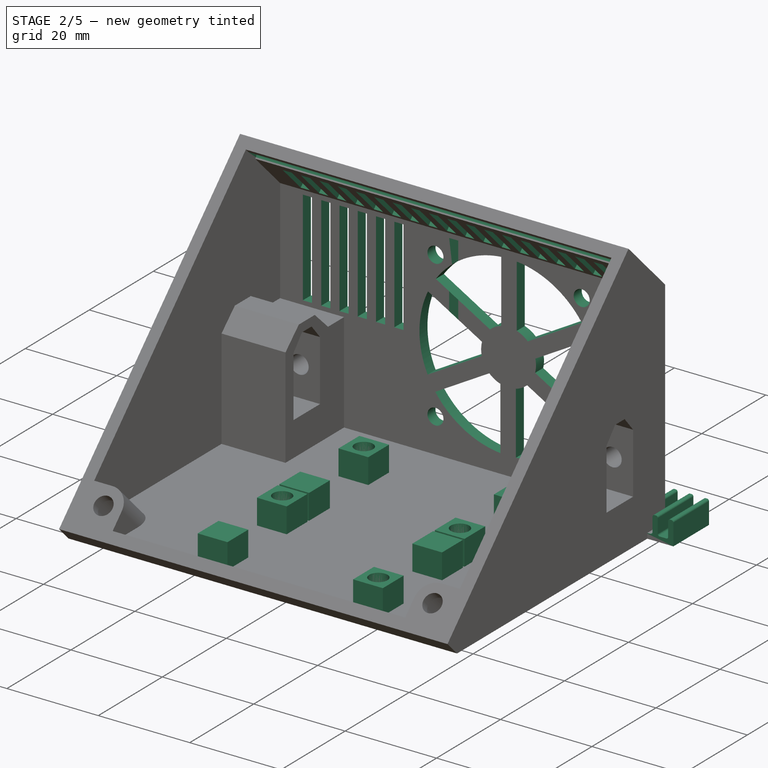
[diagram: stage 2 of 5 — iso view after this stage's code; geometry added in this stage tinted green]
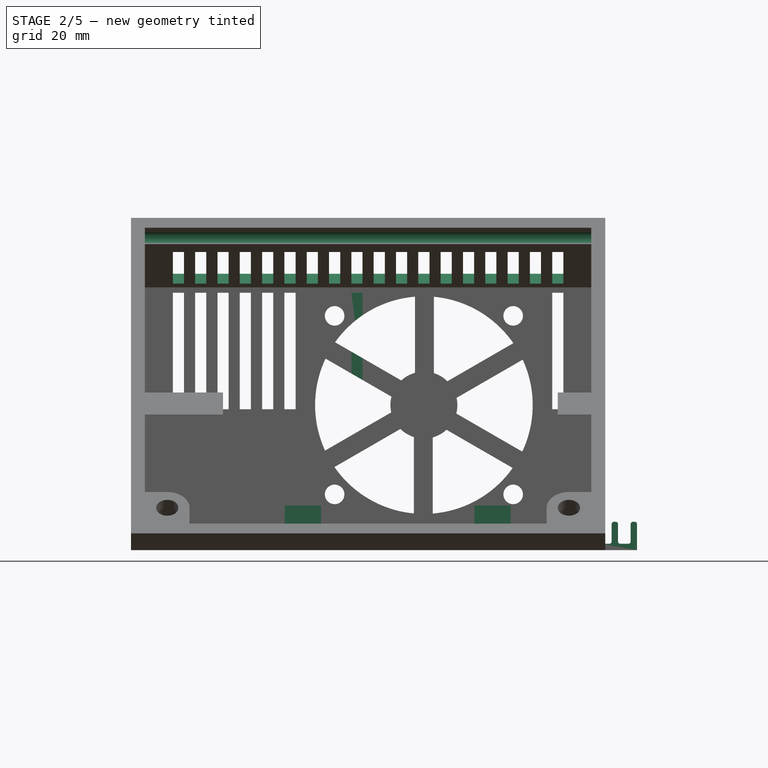
[diagram: stage 2 of 5 — front view after this stage's code; geometry added in this stage tinted green]
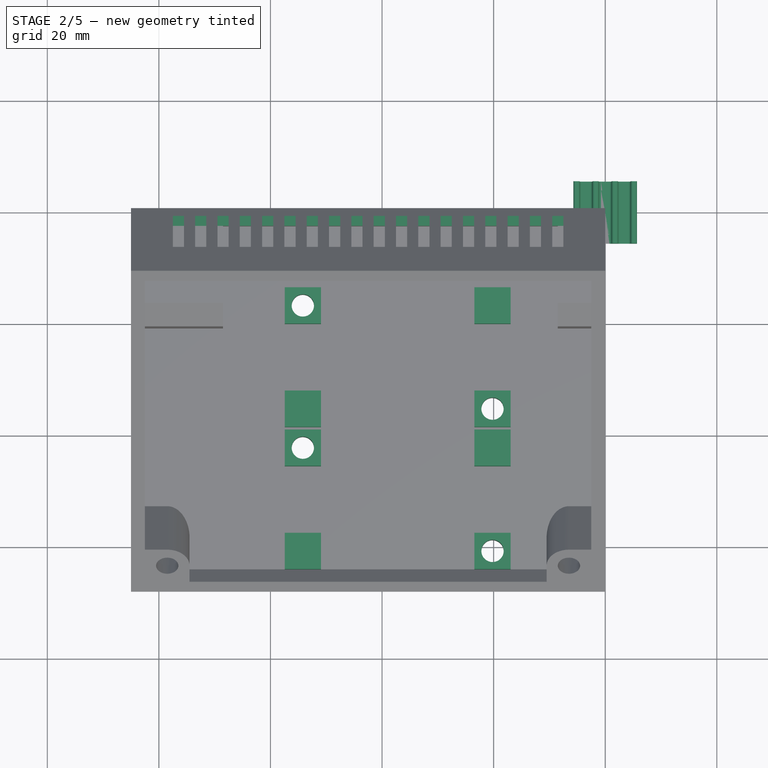
[diagram: stage 2 of 5 — top view after this stage's code; geometry added in this stage tinted green]
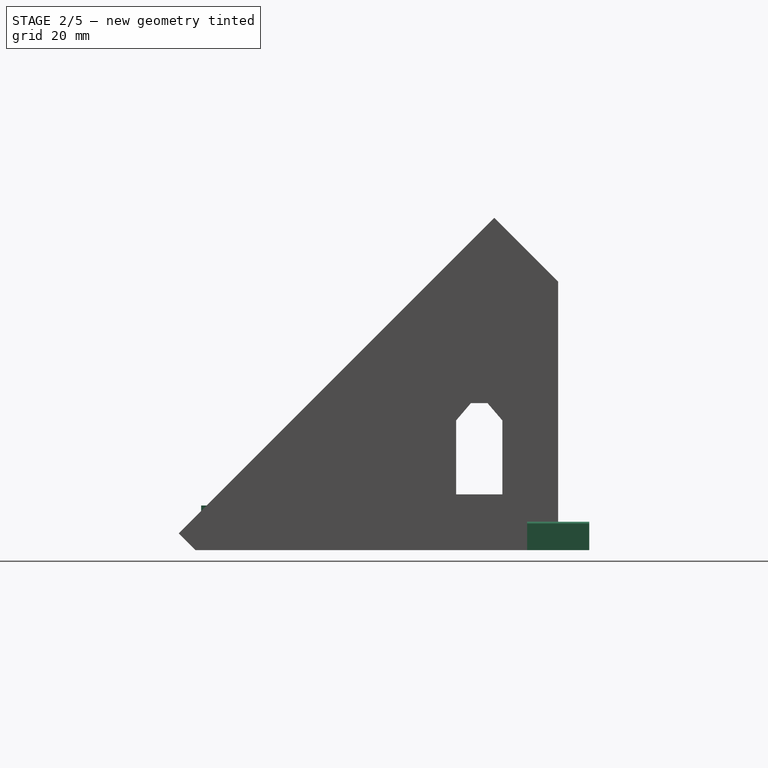
[diagram: stage 2 of 5 — right view after this stage's code; geometry added in this stage tinted green]
FEATURE [PartDesign::LinearPattern] LinearPattern  label="ventilDosRepeat1"
  BaseFeature = -> Pocket008
  Direction = -> Sketch014 [H_Axis]
  Length = 32
  Occurrences = 9
  Originals = -> [Pocket008]
  Reversed = true
  expr: Length = <<sp>>.ventilLargeurRepet
  expr: Occurrences = <<sp>>.ventilNbrFents
FEATURE [PartDesign::LinearPattern] LinearPattern001  label="ventilDosRepeat2"
  BaseFeature = -> LinearPattern
  Direction = -> Sketch014 [H_Axis]
  Length = 36
  Occurrences = 10
  Originals = -> [Pocket008]
  expr: Length = <<sp>>.ventilLargeurRepet + <<sp>>.ventilEcartfente + <<sp>>.ventilLargeurFentes
  expr: Occurrences = <<sp>>.ventilNbrFents + 1
FEATURE [PartDesign::Plane] DatumPlane006  label="planVentilSup"
  AttachmentOffset = pos=(0,0,-48.1371) rot=(1,0,0;0.785398rad)
  Length = 133.505
  MapMode = 5
  Placement = pos=(0,48.1371,1.07e-14) rot=(1,0,0;2.35619rad)
  ResizeMode = 0
  Support = -> [XZ_Plane002]
  Width = 149.064
  expr: .AttachmentOffset.Base.z = -<<sp>>.hauteurDuDos
FEATURE [Sketcher::SketchObject] Sketch015
  FullyConstrained = true
  MapMode = 5
  Placement = pos=(0,48.1371,1.07e-14) rot=(1,0,0;2.35619rad)
  Support = -> [DatumPlane006]
  expr: Constraints[10] = <<sp>>.ventilLargeurFentes
  expr: Constraints[11] = (<<sp>>.largeurModuleBase + <<sp>>.ventilEcartfente) / 2
  expr: Constraints[8] = <<sp>>.distanceAuZeroPlanBorArriere + <<sp>>.ventilDistBordFente
  expr: Constraints[9] = <<sp>>.longPetitRetSupSansFav - 2 * <<sp>>.ventilDistBordFente - <<sp>>.favBordureProf
  sketch-geometry (4):
    g0: LineSegment StartX=-43.5 StartY=78.0926 StartZ=0 EndX=-45.5 EndY=78.0926 EndZ=0
    g1: LineSegment StartX=-45.5 StartY=78.0926 StartZ=0 EndX=-45.5 EndY=70.0761 EndZ=0
    g2: LineSegment StartX=-45.5 StartY=70.0761 StartZ=0 EndX=-43.5 EndY=70.0761 EndZ=0
    g3: LineSegment StartX=-43.5 StartY=70.0761 StartZ=0 EndX=-43.5 EndY=78.0926 EndZ=0
  constraints (12):
    c: Coincident(g0,g1)
    c: Coincident(g1,g2)
    c: Coincident(g2,g3)
    c: Coincident(g3,g0)
    c: Horizontal(g0)
    c: Horizontal(g2)
    c: Vertical(g1)
    c: Vertical(g3)
    c: DistanceY(g-1,g2) = 70.0761
    c: DistanceY(g2,g0) = 8.01652
    c: DistanceX(g0,g0) = 2
    c: DistanceX(g2,g-1) = 43.5
FEATURE [PartDesign::Pocket] Pocket009  label="ventilSupFente"
  AllowMultiFace = false
  BaseFeature = -> LinearPattern001
  Direction = (0,0.707107,0.707107)
  Length = 5
  Length2 = 100
  Profile = -> Sketch015
  Reversed = true
  Type = 0
FEATURE [PartDesign::LinearPattern] LinearPattern002  label="ventilSupRepeat1"
  BaseFeature = -> Pocket009
  Direction = -> Sketch015 [H_Axis]
  Length = 32
  Occurrences = 9
  Originals = -> [Pocket009]
  Reversed = true
  expr: Length = <<sp>>.ventilLargeurRepet
  expr: Occurrences = <<sp>>.ventilNbrFents
FEATURE [PartDesign::LinearPattern] LinearPattern003  label="ventilSupRepeat2"
  BaseFeature = -> LinearPattern002
  Direction = -> Sketch015 [H_Axis]
  Length = 36
  Occurrences = 10
  Originals = -> [Pocket009]
  expr: Length = <<sp>>.ventilLargeurRepet + <<sp>>.ventilEcartfente + <<sp>>.ventilLargeurFentes
  expr: Occurrences = <<sp>>.ventilNbrFents + 1
FEATURE [PartDesign::Body] Body006  label="bodyVisPointeauM3x10_002"
  Group = -> [Sketch028,Pad013,Chamfer003,Sketch027,Pocket014,Chamfer002]
  Origin = -> Origin015
  Tip = -> Chamfer002
FEATURE [App::Part] Part008  label="partVisPointeauM3x10_002"
  Group = -> [Body006]
  Origin = -> Origin014
  Placement = pos=(-73.1,-0.5,16.6) rot=(1,0,0;1.5708rad)
  expr: .Placement.Base.x = -(<<sp>>.largeurModuleBase - 11.9)
FEATURE [PartDesign::Plane] DatumPlane010
  AttachmentOffset = pos=(0,0,-2.5) rot=(0,0,1;0rad)
  Length = 110.737
  MapMode = 5
  Placement = pos=(-2.5,6e-16,-6e-16) rot=(0.57735,0.57735,0.57735;2.0944rad)
  ResizeMode = 0
  Support = -> [YZ_Plane002]
  Width = 102.305
  expr: .AttachmentOffset.Base.z = -<<sp>>.epaisseurParois
FEATURE [Sketcher::SketchObject] Sketch029  label="sk_bourletMaintient"
  FullyConstrained = true
  MapMode = 5
  Placement = pos=(-2.5,6e-16,-6e-16) rot=(0.57735,0.57735,0.57735;2.0944rad)
  Support = -> [DatumPlane010]
  expr: Constraints[10] = <<sp>>.angleFaceRetourHaut
  expr: Constraints[11] = <<sp>>.Face
  expr: Constraints[15] = <<sp>>.epaisseurParois
  expr: Constraints[19] = <<sp>>.bourletMaintientRayon
  expr: Constraints[20] = <<sp>>.bourletDistAuBord
  expr: Constraints[6] = <<sp>>.Base
  expr: Constraints[7] = <<sp>>.petitRetour
  expr: Constraints[8] = <<sp>>.anglePetitRetourBase
  expr: Constraints[9] = <<sp>>.angleFacePetitRetour
  sketch-geometry (7):
    g0: ArcOfCircle CenterX=-11.3137 CenterY=55.9153 CenterZ=0 NormalX=0 NormalY=0 NormalZ=1 AngleXU=0 Radius=1.5 StartAngle=5.49779 EndAngle=8.63938
    g1: LineSegment StartX=0 StartY=0 StartZ=0 EndX=-65 EndY=0 EndZ=0
    g2: LineSegment StartX=-65 StartY=0 StartZ=0 EndX=-79.1421 EndY=14.1421 EndZ=0
    g3: LineSegment StartX=-79.1421 StartY=14.1421 StartZ=0 EndX=-22.5736 EndY=70.7107 EndZ=0
    g4: LineSegment StartX=-22.5736 StartY=70.7107 StartZ=0 EndX=0 EndY=48.1371 EndZ=0
    g5: LineSegment StartX=-24.3414 StartY=68.9429 StartZ=0 EndX=0 EndY=44.6016 EndZ=0
    g6: LineSegment StartX=-12.3744 StartY=56.9759 StartZ=0 EndX=-10.253 EndY=54.8546 EndZ=0
  constraints (23):
    c: Coincident(g-1,g1)
    c: Horizontal(g1)
    c: Coincident(g1,g2)
    c: Coincident(g2,g3)
    c: Coincident(g3,g4)
    c: PointOnObject(g4,g-2)
    c: DistanceX(g1,g1) = 65
    c: Distance(g2,g1) = 20
    c: Angle(g1,g2) = 2.35619
    c: Angle(g2,g3) = 1.5708
    c: Angle(g3,g4) = 1.5708
    c: Distance(g3) = 80
    c: PointOnObject(g5,g3)
    c: PointOnObject(g5,g-2)
    c: Parallel(g5,g4)
    c: Distance(g5,g3) = 2.5
    c: PointOnObject(g0,g5)
    c: PointOnObject(g0,g5)
    c: PointOnObject(g0,g5)
    c: Radius(g0) = 1.5
    c: Distance(g0,g5) = 16
    c: Coincident(g6,g0)
    c: Coincident(g6,g0)
FEATURE [PartDesign::Pocket] Pocket015  label="bourletMaintien"
  AllowMultiFace = false
  BaseFeature = -> LinearPattern003
  Direction = (-1,1e-16,-1e-16)
  Length = 80
  Length2 = 100
  Profile = -> Sketch029
  Type = 0
  expr: Length = <<sp>>.largeurModuleBase - 2 * <<sp>>.epaisseurParois
FEATURE [PartDesign::Body] Body015  label="dissipBdy002"
  Group = -> [Sketch063,Pad032,Fillet003]
  Origin = -> Origin036
  Tip = -> Fillet003
FEATURE [App::Part] Part019  label="dissipPrt002"
  Group = -> [Body015]
  Origin = -> Origin035
  config = 4
  expr: .config.Enum = Spreadsheet005.cells[<<A4:|>>]
FEATURE [App::LinkGroup] CopyOnChangeGroup002
  ElementList = -> [Part019,Body015,Origin036,YZ_Plane032,XY_Plane032,Z_Axis032,Y_Axis032,X_Axis032,Fillet003,Pad032,Sketch063,XZ_Plane032,Origin035,YZ_Plane031,XZ_Plane031,XY_Plane031,Z_Axis031,Y_Axis031,X_Axis031,Spreadsheet005]
  LinkMode = 1
FEATURE [App::Link] Link020  label="toutPetitDissip"
  LinkCopyOnChange = 2
  LinkCopyOnChangeGroup = -> CopyOnChangeGroup002
  LinkCopyOnChangeSource = -> <external dissip001.FCStd>#Part
  LinkCopyOnChangeTouched = true
  LinkPlacement = pos=(-30.31,-35.06,11.3) rot=(0,0,1;0rad)
  LinkedObject = -> Part019
  Placement = pos=(-30.31,-35.06,11.3) rot=(0,0,1;0rad)
  config = 4
FEATURE [Spreadsheet::Sheet] Spreadsheet007
  cells = B2=Long; A3==hiddenref(Part021.config.String); B3(Long)==.B6; A4=L1; B4=16; A5=L2; B5=11.13; A6=L3; B6=8; A7=L4; B7=7.2; A8=L5; B8=3.87
  expr: .cells.Bind.B3.ZZ3 = tuple(.cells; <<B>> + str(hiddenref(Part021.config) + 4); <<ZZ>> + str(hiddenref(Part021.config) + 4))
FEATURE [Sketcher::SketchObject] Sketch065
  FullyConstrained = true
  MapMode = 5
  Placement = pos=(0,0,0) rot=(1,0,0;1.5708rad)
  Support = -> [XZ_Plane036]
  sketch-geometry (16):
    g0: LineSegment StartX=-5.7 StartY=0 StartZ=0 EndX=5.7 EndY=0 EndZ=0
    g1: LineSegment StartX=5.7 StartY=0 StartZ=0 EndX=5.7 EndY=5.09 EndZ=0
    g2: LineSegment StartX=5.7 StartY=5.09 StartZ=0 EndX=4.56 EndY=5.09 EndZ=0
    g3: LineSegment StartX=4.56 StartY=5.09 StartZ=0 EndX=4.56 EndY=1.15 EndZ=0
    g4: LineSegment StartX=4.56 StartY=1.15 StartZ=0 EndX=2.29 EndY=1.15 EndZ=0
    g5: LineSegment StartX=2.29 StartY=1.15 StartZ=0 EndX=2.29 EndY=5.09 EndZ=0
    g6: LineSegment StartX=2.29 StartY=5.09 StartZ=0 EndX=1.15 EndY=5.09 EndZ=0
    g7: LineSegment StartX=1.15 StartY=5.09 StartZ=0 EndX=1.15 EndY=1.15 EndZ=0
    g8: LineSegment StartX=1.15 StartY=1.15 StartZ=0 EndX=-1.15 EndY=1.15 EndZ=0
    g9: LineSegment StartX=-1.15 StartY=1.15 StartZ=0 EndX=-1.15 EndY=5.09 EndZ=0
    g10: LineSegment StartX=-1.15 StartY=5.09 StartZ=0 EndX=-2.29 EndY=5.09 EndZ=0
    g11: LineSegment StartX=-2.29 StartY=5.09 StartZ=0 EndX=-2.29 EndY=1.15 EndZ=0
    g12: LineSegment StartX=-2.29 StartY=1.15 StartZ=0 EndX=-4.56 EndY=1.15 EndZ=0
    g13: LineSegment StartX=-4.56 StartY=1.15 StartZ=0 EndX=-4.56 EndY=5.09 EndZ=0
    g14: LineSegment StartX=-4.56 StartY=5.09 StartZ=0 EndX=-5.7 EndY=5.09 EndZ=0
    g15: LineSegment StartX=-5.7 StartY=5.09 StartZ=0 EndX=-5.7 EndY=0 EndZ=0
  constraints (46):
    c: PointOnObject(g0,g-1)
    c: Coincident(g0,g1)
    c: Vertical(g1)
    c: Coincident(g1,g2)
    c: Horizontal(g2)
    c: Coincident(g2,g3)
    c: Vertical(g3)
    c: Coincident(g3,g4)
    c: Coincident(g4,g5)
    c: Coincident(g5,g6)
    c: Coincident(g6,g7)
    c: Coincident(g7,g8)
    c: Coincident(g8,g9)
    c: Coincident(g9,g10)
    c: Horizontal(g10)
    c: Coincident(g10,g11)
    c: Coincident(g11,g12)
    c: Coincident(g12,g13)
    c: Coincident(g13,g14)
    c: Coincident(g14,g15)
    c: Coincident(g0,g15)
    c: Vertical(g15)
    c: Symmetric(g0,g0,g-2)
    c: Horizontal(g6)
    c: Horizontal(g4)
    c: Symmetric(g8,g7,g-2)
    c: DistanceX(g0,g0) = 11.4
    c: Vertical(g13)
    c: Horizontal(g14)
    c: Horizontal(g12)
    c: Horizontal(g13,g10)
    c: Horizontal(g9,g6)
    c: Vertical(g9)
    c: Vertical(g7)
    c: Vertical(g5)
    c: Horizontal(g5,g2)
    c: Horizontal(g11,g8)
    c: Horizontal(g7,g4)
    c: Vertical(g11)
    c: DistanceX(g2,g2) = 1.14
    c: Equal(g2,g6)
    c: Equal(g6,g10)
    c: Equal(g10,g14)
    c: DistanceX(g4,g4) = 2.27
    c: DistanceY(g0,g1) = 5.09
    c: DistanceY(g0,g12) = 1.15
FEATURE [PartDesign::Pad] Pad034
  Direction = (0,-1,-2e-16)
  Length = 8
  Length2 = 10
  Midplane = true
  Placement = pos=(0,0,0) rot=(1,0,0;1.5708rad)
  Profile = -> Sketch065
  ReferenceAxis = -> Sketch065 [N_Axis]
  Type = 0
  expr: Length = Spreadsheet007.Long
FEATURE [PartDesign::Fillet] Fillet005
  Base = -> Pad034 [Edge44,Edge41,Edge32,Edge29,Edge20,Edge17,Edge8,Edge5,Edge38,Edge26,Edge14,Edge35,Edge23,Edge11]
  BaseFeature = -> Pad034
  Placement = pos=(0,0,0) rot=(1,0,0;1.5708rad)
  Radius = 0.4
  SupportTransform = false
  UseAllEdges = false
FEATURE [PartDesign::Body] Body017  label="dissipBdy004"
  Group = -> [Sketch065,Pad034,Fillet005]
  Origin = -> Origin040
  Tip = -> Fillet005
FEATURE [App::Part] Part021  label="dissipPrt004"
  Group = -> [Body017]
  Origin = -> Origin039
  config = 2
  expr: .config.Enum = Spreadsheet007.cells[<<A4:|>>]
FEATURE [App::LinkGroup] CopyOnChangeGroup003
  ElementList = -> [Part021,Body017,Origin040,YZ_Plane036,XY_Plane036,Z_Axis036,Y_Axis036,X_Axis036,Fillet005,Pad034,Sketch065,XZ_Plane036,Origin039,YZ_Plane035,XZ_Plane035,XY_Plane035,Z_Axis035,Y_Axis035,X_Axis035,Spreadsheet007]
  LinkMode = 1
FEATURE [App::Link] Link021  label="dissipMoyen"
  LinkCopyOnChange = 2
  LinkCopyOnChangeGroup = -> CopyOnChangeGroup003
  LinkCopyOnChangeSource = -> <external dissip001.FCStd>#Part
  LinkCopyOnChangeTouched = true
  LinkPlacement = pos=(-30.79,-60.37,11.22) rot=(0,0,1;0rad)
  LinkedObject = -> Part021
  Placement = pos=(-30.79,-60.37,11.22) rot=(0,0,1;0rad)
  config = 2
FEATURE [App::Part] Part022  label="dcdcWithDissip"
  Group = -> [Link001,Link002,CopyOnChangeGroup,Link018,CopyOnChangeGroup001,Link019,CopyOnChangeGroup002,Link020,CopyOnChangeGroup003,Link021]
  Origin = -> Origin041
FEATURE [Spreadsheet::Sheet] Spreadsheet008
  cells = B2=Long; A3==hiddenref(Part023.config.String); B3(Long)==.B5; A4=L1; B4=16; A5=L2; B5=11.13; A6=L3; B6=8; A7=L4; B7=7.2; A8=L5; B8=3.87
  expr: .cells.Bind.B3.ZZ3 = tuple(.cells; <<B>> + str(hiddenref(Part023.config) + 4); <<ZZ>> + str(hiddenref(Part023.config) + 4))
FEATURE [Sketcher::SketchObject] Sketch066
  FullyConstrained = true
  MapMode = 5
  Placement = pos=(0,0,0) rot=(1,0,0;1.5708rad)
  Support = -> [XZ_Plane039]
  sketch-geometry (16):
    g0: LineSegment StartX=-5.7 StartY=0 StartZ=0 EndX=5.7 EndY=0 EndZ=0
    g1: LineSegment StartX=5.7 StartY=0 StartZ=0 EndX=5.7 EndY=5.09 EndZ=0
    g2: LineSegment StartX=5.7 StartY=5.09 StartZ=0 EndX=4.56 EndY=5.09 EndZ=0
    g3: LineSegment StartX=4.56 StartY=5.09 StartZ=0 EndX=4.56 EndY=1.15 EndZ=0
    g4: LineSegment StartX=4.56 StartY=1.15 StartZ=0 EndX=2.29 EndY=1.15 EndZ=0
    g5: LineSegment StartX=2.29 StartY=1.15 StartZ=0 EndX=2.29 EndY=5.09 EndZ=0
    g6: LineSegment StartX=2.29 StartY=5.09 StartZ=0 EndX=1.15 EndY=5.09 EndZ=0
    g7: LineSegment StartX=1.15 StartY=5.09 StartZ=0 EndX=1.15 EndY=1.15 EndZ=0
    g8: LineSegment StartX=1.15 StartY=1.15 StartZ=0 EndX=-1.15 EndY=1.15 EndZ=0
    g9: LineSegment StartX=-1.15 StartY=1.15 StartZ=0 EndX=-1.15 EndY=5.09 EndZ=0
    g10: LineSegment StartX=-1.15 StartY=5.09 StartZ=0 EndX=-2.29 EndY=5.09 EndZ=0
    g11: LineSegment StartX=-2.29 StartY=5.09 StartZ=0 EndX=-2.29 EndY=1.15 EndZ=0
    g12: LineSegment StartX=-2.29 StartY=1.15 StartZ=0 EndX=-4.56 EndY=1.15 EndZ=0
    g13: LineSegment StartX=-4.56 StartY=1.15 StartZ=0 EndX=-4.56 EndY=5.09 EndZ=0
    g14: LineSegment StartX=-4.56 StartY=5.09 StartZ=0 EndX=-5.7 EndY=5.09 EndZ=0
    g15: LineSegment StartX=-5.7 StartY=5.09 StartZ=0 EndX=-5.7 EndY=0 EndZ=0
  constraints (46):
    c: PointOnObject(g0,g-1)
    c: Coincident(g0,g1)
    c: Vertical(g1)
    c: Coincident(g1,g2)
    c: Horizontal(g2)
    c: Coincident(g2,g3)
    c: Vertical(g3)
    c: Coincident(g3,g4)
    c: Coincident(g4,g5)
    c: Coincident(g5,g6)
    c: Coincident(g6,g7)
    c: Coincident(g7,g8)
    c: Coincident(g8,g9)
    c: Coincident(g9,g10)
    c: Horizontal(g10)
    c: Coincident(g10,g11)
    c: Coincident(g11,g12)
    c: Coincident(g12,g13)
    c: Coincident(g13,g14)
    c: Coincident(g14,g15)
    c: Coincident(g0,g15)
    c: Vertical(g15)
    c: Symmetric(g0,g0,g-2)
    c: Horizontal(g6)
    c: Horizontal(g4)
    c: Symmetric(g8,g7,g-2)
    c: DistanceX(g0,g0) = 11.4
    c: Vertical(g13)
    c: Horizontal(g14)
    c: Horizontal(g12)
    c: Horizontal(g13,g10)
    c: Horizontal(g9,g6)
    c: Vertical(g9)
    c: Vertical(g7)
    c: Vertical(g5)
    c: Horizontal(g5,g2)
    c: Horizontal(g11,g8)
    c: Horizontal(g7,g4)
    c: Vertical(g11)
    c: DistanceX(g2,g2) = 1.14
    c: Equal(g2,g6)
    c: Equal(g6,g10)
    c: Equal(g10,g14)
    c: DistanceX(g4,g4) = 2.27
    c: DistanceY(g0,g1) = 5.09
    c: DistanceY(g0,g12) = 1.15
FEATURE [PartDesign::Pad] Pad035
  Direction = (0,-1,-2e-16)
  Length = 11.13
  Length2 = 10
  Midplane = true
  Placement = pos=(0,0,0) rot=(1,0,0;1.5708rad)
  Profile = -> Sketch066
  ReferenceAxis = -> Sketch066 [N_Axis]
  Type = 0
  expr: Length = Spreadsheet008.Long
FEATURE [PartDesign::Fillet] Fillet006
  Base = -> Pad035 [Edge44,Edge41,Edge32,Edge29,Edge20,Edge17,Edge8,Edge5,Edge38,Edge26,Edge14,Edge35,Edge23,Edge11]
  BaseFeature = -> Pad035
  Placement = pos=(0,0,0) rot=(1,0,0;1.5708rad)
  Radius = 0.4
  SupportTransform = false
  UseAllEdges = false
FEATURE [PartDesign::Body] Body018  label="dissipBdy005"
  Group = -> [Sketch066,Pad035,Fillet006]
  Origin = -> Origin043
  Tip = -> Fillet006
FEATURE [App::Part] Part023  label="dissipPrt005"
  Group = -> [Body018]
  Origin = -> Origin042
  config = 1
  expr: .config.Enum = Spreadsheet008.cells[<<A4:|>>]
FEATURE [App::LinkGroup] CopyOnChangeGroup004
  ElementList = -> [Part023,Body018,Origin043,YZ_Plane039,XY_Plane039,Z_Axis039,Y_Axis039,X_Axis039,Fillet006,Pad035,Sketch066,XZ_Plane039,Origin042,YZ_Plane038,XZ_Plane038,XY_Plane038,Z_Axis038,Y_Axis038,X_Axis038,Spreadsheet008]
  LinkMode = 1
FEATURE [App::Link] Link022  label="7805dissip"
  LinkCopyOnChange = 2
  LinkCopyOnChangeGroup = -> CopyOnChangeGroup004
  LinkCopyOnChangeSource = -> <external dissip001.FCStd>#Part
  LinkCopyOnChangeTouched = true
  LinkPlacement = pos=(-27.71,-20.9995,48.7032) rot=(1,0,0;3.92699rad)
  LinkedObject = -> Part023
  Placement = pos=(-27.71,-20.9995,48.7032) rot=(1,0,0;3.92699rad)
  config = 1
FEATURE [PartDesign::Pad] Pad036  label="dcdcPlot"
  BaseFeature = -> Pocket015
  Direction = (0,0,1)
  Length = 5.5
  Length2 = 10
  Profile = -> Sketch042
  ReferenceAxis = -> Sketch042 [N_Axis]
  Type = 0
FEATURE [PartDesign::Pad] Pad037
  BaseFeature = -> Pad036
  Direction = (0,-1,-2e-16)
  Length = 2.5
  Length2 = 10
  Profile = -> Sketch040
  ReferenceAxis = -> Sketch040 [N_Axis]
  Type = 0
  expr: Length = <<sp>>.epaisseurParois
FEATURE [PartDesign::Pocket] Pocket032
  BaseFeature = -> Pad037
  Direction = (0,1,2e-16)
  Length = 2.5
  Length2 = 5
  Profile = -> Sketch041
  ReferenceAxis = -> Sketch041 [N_Axis]
  Reversed = true
  Type = 0
  expr: Length = <<sp>>.epaisseurParois
FEATURE [PartDesign::Pocket] Pocket033
  BaseFeature = -> Pocket032
  Direction = (0,0,-1)
  Length = 5
  Length2 = 5
  Profile = -> Sketch043
  ReferenceAxis = -> Sketch043 [N_Axis]
  Type = 1
FEATURE [PartDesign::Pocket] Pocket034
  BaseFeature = -> Pocket033
  Direction = (0,1,2e-16)
  Length = 2.5
  Length2 = 5
  Profile = -> Sketch046
  ReferenceAxis = -> Sketch046 [N_Axis]
  Reversed = true
  Type = 0
  expr: Length = <<sp>>.epaisseurParois
FEATURE [PartDesign::PolarPattern] PolarPattern
  Angle = 360
  Axis = -> Pocket034 [Edge285]
  BaseFeature = -> Pocket034
  Occurrences = 6
  Originals = -> [Pocket034]
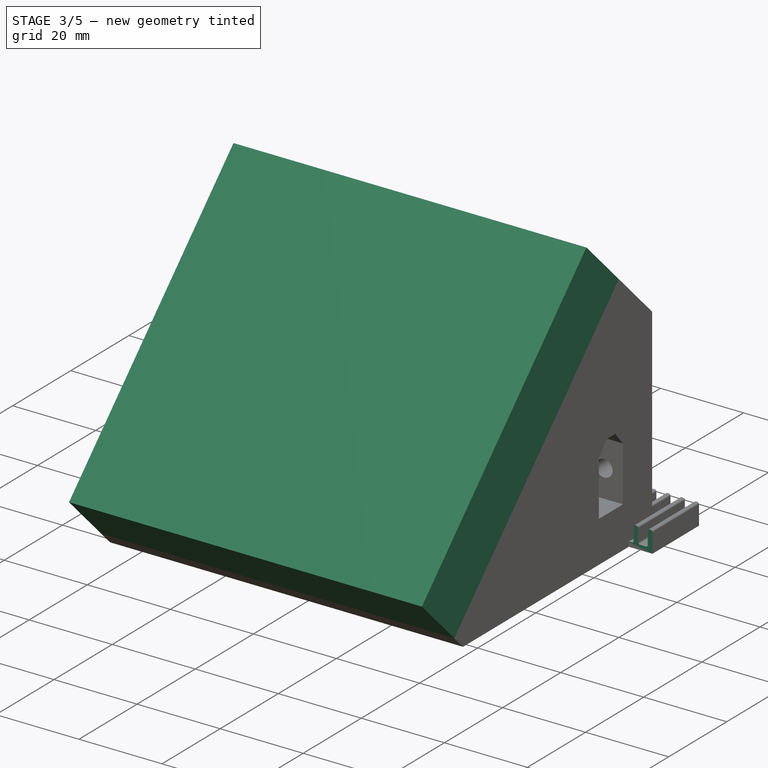
[diagram: stage 3 of 5 — iso view after this stage's code; geometry added in this stage tinted green]
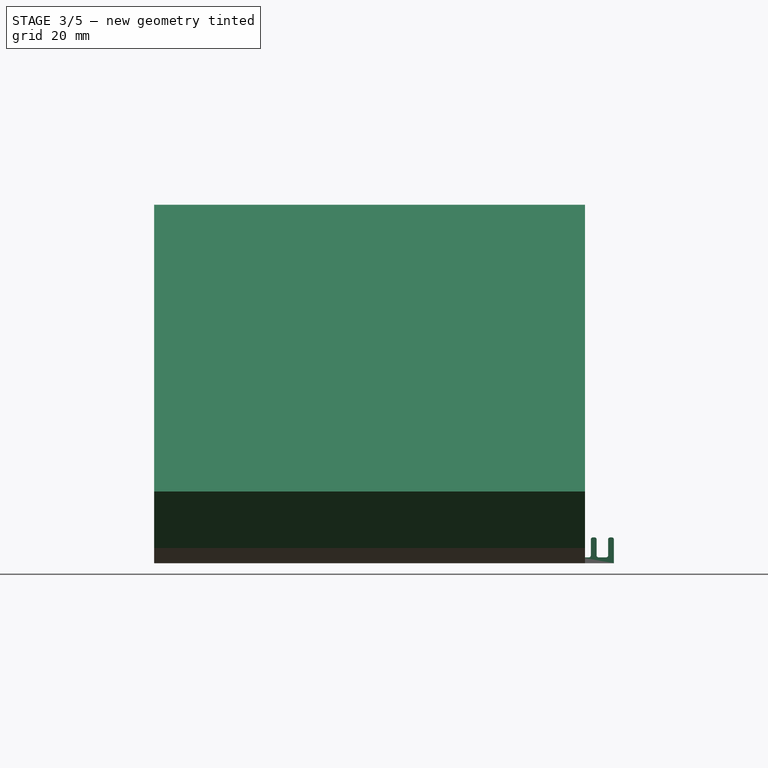
[diagram: stage 3 of 5 — front view after this stage's code; geometry added in this stage tinted green]
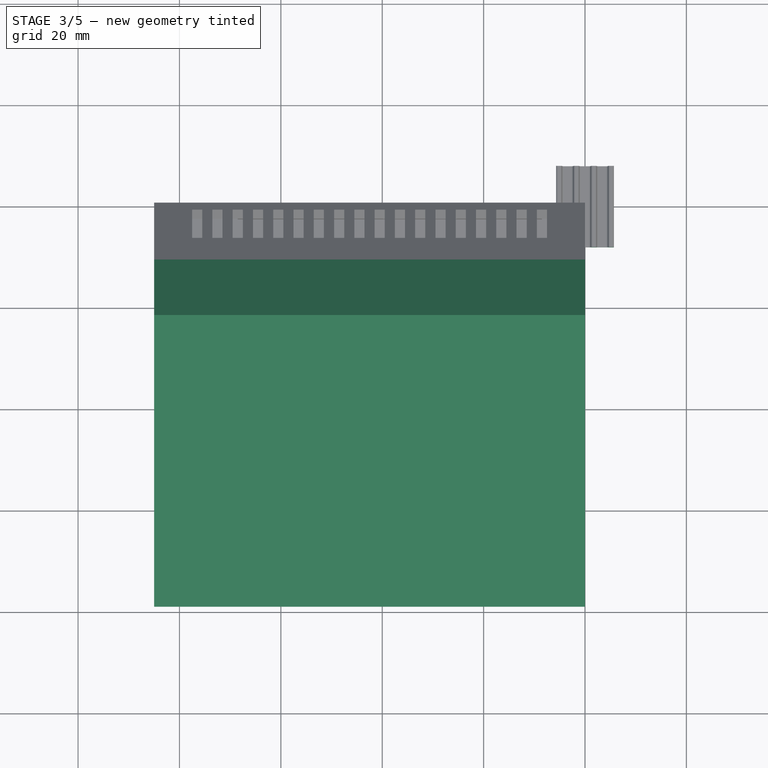
[diagram: stage 3 of 5 — top view after this stage's code; geometry added in this stage tinted green]
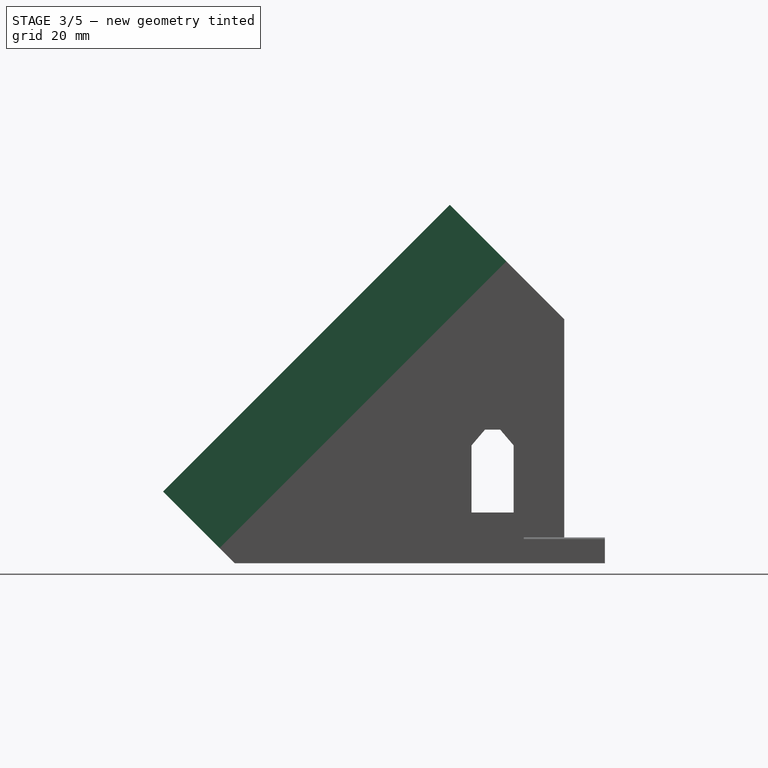
[diagram: stage 3 of 5 — right view after this stage's code; geometry added in this stage tinted green]
FEATURE [Part::FeaturePython] Slice_child1  label="Slice.1"  # WARN: FeaturePython — macro-defined, semantics opaque (R4)
  Base = -> Slice
  FilterType = 1
  Invert = false
  OverrideMaxVal = 0
  WindowFrom = 80
  WindowTo = 100
  items = 1
FEATURE [PartDesign::FeatureBase] Clone001
  BaseFeature = -> Slice_child1
FEATURE [PartDesign::Thickness] Thickness001
  Base = -> Clone001 [Face5]
  BaseFeature = -> Clone001
  Intersection = false
  Join = 0
  Mode = 0
  Reversed = true
  SupportTransform = false
  Value = 2.5
  expr: Value = <<sp>>.epaisseurParois
FEATURE [PartDesign::Plane] DatumPlane007  label="planTrancheurBis"
  AttachmentOffset = pos=(0,0,71) rot=(-1,0,0;0.785398rad)
  Length = 134.936
  MapMode = 5
  Placement = pos=(0,-71,-1.58e-14) rot=(1,0,0;0.785398rad)
  ResizeMode = 0
  Support = -> [XZ_Plane003]
  Width = 166.253
  expr: .AttachmentOffset.Base.z = <<sp>>.planTrancheur
FEATURE [Sketcher::SketchObject] Sketch016  label="sk_insertFavDroit"
  FullyConstrained = true
  MapMode = 5
  Placement = pos=(0,-71,-2.13e-14) rot=(1,0,0;0.785398rad)
  Support = -> [DatumPlane007]
  expr: Constraints[11] = <<sp>>.insertFAVDistBord
  expr: Constraints[14] = <<sp>>.insertFAVDistBord / 2
  expr: Constraints[7] = <<sp>>.epaisseurParois
  expr: Constraints[8] = <<sp>>.insertFavDistAuZeroDuPLan + <<sp>>.epaisseurParois
  expr: Constraints[9] = <<sp>>.insertFAVDistBord
  sketch-geometry (5):
    g0: LineSegment StartX=-6.5 StartY=14.7426 StartZ=0 EndX=-2.5 EndY=14.7426 EndZ=0
    g1: LineSegment StartX=-2.5 StartY=14.7426 StartZ=0 EndX=-2.5 EndY=6.74264 EndZ=0
    g2: LineSegment StartX=-2.5 StartY=6.74264 StartZ=0 EndX=-10.5 EndY=6.74264 EndZ=0
    g3: LineSegment StartX=-10.5 StartY=6.74264 StartZ=0 EndX=-10.5 EndY=10.7426 EndZ=0
    g4: ArcOfCircle CenterX=-6.5 CenterY=10.7426 CenterZ=0 NormalX=0 NormalY=0 NormalZ=1 AngleXU=0 Radius=4 StartAngle=1.5708 EndAngle=3.14159
  constraints (15):
    c: Horizontal(g0)
    c: Coincident(g0,g1)
    c: Vertical(g1)
    c: Coincident(g1,g2)
    c: Horizontal(g2)
    c: Coincident(g2,g3)
    c: Vertical(g3)
    c: DistanceX(g1,g-1) = 2.5
    c: DistanceY(g-1,g1) = 6.74264
    c: DistanceY(g1,g1) = 8
    c: Equal(g3,g0)
    c: DistanceX(g2,g2) = 8
    c: Coincident(g4,g0)
    c: Tangent(g4,g3) = 1.5708
    c: DistanceX(g4,g1) = 4
FEATURE [PartDesign::Pad] Pad005  label="padInsertFavDroit"
  AllowMultiFace = false
  BaseFeature = -> Thickness001
  Direction = (0,-0.707107,0.707107)
  Length = 10
  Length2 = 100
  Profile = -> Sketch016
  Type = 2
FEATURE [Sketcher::SketchObject] Sketch017  label="sp_padInserFavGauch"
  FullyConstrained = true
  MapMode = 5
  Placement = pos=(0,-71,-2.13e-14) rot=(1,0,0;0.785398rad)
  Support = -> [DatumPlane007]
  expr: Constraints[10] = <<sp>>.insertFAVDistBord
  expr: Constraints[12] = <<sp>>.insertFAVDistBord / 2
  expr: Constraints[13] = <<sp>>.largeurModuleBase
  expr: Constraints[14] = <<sp>>.insertFavDistAuZeroDuPLan
  expr: Constraints[15] = <<sp>>.epaisseurParois
  expr: Constraints[16] = <<sp>>.epaisseurParois
  sketch-geometry (6):
    g0: LineSegment StartX=-78.5 StartY=14.7426 StartZ=0 EndX=-82.5 EndY=14.7426 EndZ=0
    g1: LineSegment StartX=-82.5 StartY=14.7426 StartZ=0 EndX=-82.5 EndY=6.74264 EndZ=0
    g2: LineSegment StartX=-82.5 StartY=6.74264 StartZ=0 EndX=-74.5 EndY=6.74264 EndZ=0
    g3: LineSegment StartX=-74.5 StartY=6.74264 StartZ=0 EndX=-74.5 EndY=10.7426 EndZ=0
    g4: ArcOfCircle CenterX=-78.5 CenterY=10.7426 CenterZ=0 NormalX=0 NormalY=0 NormalZ=1 AngleXU=0 Radius=4 StartAngle=0 EndAngle=1.5708
    g5: GeomPoint X=-85 Y=4.24264 Z=0
  constraints (17):
    c: Horizontal(g0)
    c: Coincident(g0,g1)
    c: Vertical(g1)
    c: Coincident(g1,g2)
    c: Horizontal(g2)
    c: Coincident(g2,g3)
    c: Vertical(g3)
    c: Equal(g3,g0)
    c: Equal(g2,g1)
    c: Coincident(g0,g4)
    c: DistanceX(g2,g2) = 8
    c: Tangent(g4,g3) = -1.5708
    c: DistanceX(g0,g0) = 4
    c: DistanceX(g5,g-1) = 85
    c: DistanceY(g-1,g5) = 4.24264
    c: DistanceY(g5,g1) = 2.5
    c: DistanceX(g5,g1) = 2.5
FEATURE [PartDesign::Pad] Pad006  label="padInsertFavGauch"
  AllowMultiFace = false
  BaseFeature = -> Pad005
  Direction = (0,-0.707107,0.707107)
  Length = 10
  Length2 = 100
  Profile = -> Sketch017
  Type = 2
FEATURE [Sketcher::SketchObject] Sketch018  label="skPercageInsertFavDroit"
  FullyConstrained = true
  MapMode = 5
  Placement = pos=(0,-71,-2.13e-14) rot=(1,0,0;0.785398rad)
  Support = -> [DatumPlane007]
  expr: Constraints[0] = <<sp>>.insertDiamPercage
  expr: Constraints[1] = <<sp>>.insertFavDistAuZeroDuPLan + <<sp>>.epaisseurParois + <<sp>>.insertFAVDistBord / 2
  expr: Constraints[2] = <<sp>>.epaisseurParois + <<sp>>.insertFAVDistBord / 2
  expr: Constraints[7] = <<sp>>.largeurModuleBase - 2 * <<sp>>.epaisseurParois - <<sp>>.insertFAVDistBord
  sketch-geometry (3):
    g0: Circle CenterX=-6.5 CenterY=10.7426 CenterZ=0 NormalX=0 NormalY=0 NormalZ=1 AngleXU=0 Radius=2
    g1: Circle CenterX=-78.5 CenterY=10.7426 CenterZ=0 NormalX=0 NormalY=0 NormalZ=1 AngleXU=0 Radius=2
    g2: LineSegment StartX=-78.5 StartY=10.7426 StartZ=0 EndX=-6.5 EndY=10.7426 EndZ=0
  constraints (8):
    c: Diameter(g0) = 4
    c: DistanceY(g-1,g0) = 10.7426
    c: DistanceX(g0,g-1) = 6.5
    c: Equal(g0,g1)
    c: Coincident(g2,g1)
    c: Coincident(g2,g0)
    c: Horizontal(g2)
    c: DistanceX(g2,g2) = 72
FEATURE [PartDesign::Pocket] Pocket010  label="trouInsertFavDroit"
  AllowMultiFace = false
  BaseFeature = -> Pad006
  Direction = (0,0.707107,-0.707107)
  Length = 8
  Length2 = 100
  Profile = -> Sketch018
  Reversed = true
  Type = 0
  expr: Length = <<sp>>.insertFavProfondeur
FEATURE [PartDesign::Plane] DatumPlane011  label="planFaceAvant"
  AttachmentOffset = pos=(0,0,93.2843) rot=(-1,0,0;0.785398rad)
  Length = 134.936
  MapMode = 5
  Placement = pos=(0,-93.2843,-2.07e-14) rot=(1,0,0;0.785398rad)
  ResizeMode = 0
  Support = -> [XZ_Plane003]
  Width = 166.253
  expr: .AttachmentOffset.Base.z = <<sp>>.planFaceAvant
FEATURE [Sketcher::SketchObject] Sketch030  label="sk_rebordFav"
  FullyConstrained = true
  MapMode = 5
  Placement = pos=(0,-71,-2.13e-14) rot=(1,0,0;0.785398rad)
  Support = -> [DatumPlane007]
  expr: Constraints[0] = <<sp>>.insertFavDistAuZeroDuPLan
  expr: Constraints[19] = <<sp>>.epaisseurParois
  expr: Constraints[20] = <<sp>>.favEpBordure
  expr: Constraints[21] = <<sp>>.favDistBordPlan
  expr: Constraints[22] = <<sp>>.largeurModuleBase - 2 * <<sp>>.epaisseurParois
  expr: Constraints[23] = <<sp>>.favEpBordure
  expr: Constraints[24] = <<sp>>.Face - <<sp>>.epaisseurParois
  expr: Constraints[25] = <<sp>>.favEpBordure
  sketch-geometry (9):
    g0: GeomPoint X=0 Y=4.24264 Z=0
    g1: LineSegment StartX=-82.5 StartY=20.9853 StartZ=0 EndX=-82.5 EndY=81.7426 EndZ=0
    g2: LineSegment StartX=-82.5 StartY=81.7426 StartZ=0 EndX=-2.5 EndY=81.7426 EndZ=0
    g3: LineSegment StartX=-2.5 StartY=81.7426 StartZ=0 EndX=-2.5 EndY=20.9853 EndZ=0
    g4: LineSegment StartX=-2.5 StartY=20.9853 StartZ=0 EndX=-4 EndY=20.9853 EndZ=0
    g5: LineSegment StartX=-4 StartY=20.9853 StartZ=0 EndX=-4 EndY=80.2426 EndZ=0
    g6: LineSegment StartX=-4 StartY=80.2426 StartZ=0 EndX=-81 EndY=80.2426 EndZ=0
    g7: LineSegment StartX=-81 StartY=80.2426 StartZ=0 EndX=-81 EndY=20.9853 EndZ=0
    g8: LineSegment StartX=-81 StartY=20.9853 StartZ=0 EndX=-82.5 EndY=20.9853 EndZ=0
  constraints (26):
    c: DistanceY(g-1,g0) = 4.24264
    c: Vertical(g0,g-1)
    c: Vertical(g1)
    c: Coincident(g1,g2)
    c: Horizontal(g2)
    c: Coincident(g2,g3)
    c: Vertical(g3)
    c: Coincident(g3,g4)
    c: Horizontal(g4)
    c: Coincident(g4,g5)
    c: Vertical(g5)
    c: Coincident(g5,g6)
    c: Horizontal(g6)
    c: Coincident(g6,g7)
    c: Vertical(g7)
    c: Coincident(g7,g8)
    c: Coincident(g8,g1)
    c: Horizontal(g8)
    c: Horizontal(g7,g4)
    c: DistanceX(g3,g0) = 2.5
    c: DistanceX(g4,g4) = 1.5
    c: DistanceY(g0,g3) = 16.7426
    c: DistanceX(g1,g3) = 80
    c: DistanceY(g5,g2) = 1.5
    c: DistanceY(g0,g2) = 77.5
    c: DistanceX(g1,g7) = 1.5
FEATURE [PartDesign::Pad] Pad014  label="favRebordSupport"
  AllowMultiFace = false
  BaseFeature = -> Pocket010
  Direction = (0,-0.707107,0.707107)
  Length = 10
  Length2 = 100
  Profile = -> Sketch030
  Type = 3
  UpToFace = -> Pocket010 [Face13]
FEATURE [PartDesign::Pad] Pad015  label="favRebord"
  AllowMultiFace = false
  BaseFeature = -> Pad014
  Direction = (0,-0.707107,0.707107)
  Length = 4.15
  Length2 = 100
  Profile = -> Sketch030
  Reversed = true
  Type = 0
  expr: Length = <<sp>>.favBordureProf
FEATURE [Sketcher::SketchObject] Sketch031  label="sk_bourlet"
  ExternalGeometry = -> [Pad015]
  FullyConstrained = true
  MapMode = 5
  Placement = pos=(-2.5,0,0) rot=(0.57735,0.57735,0.57735;2.0944rad)
  Support = -> [Pad015]
  expr: Constraints[3] = <<sp>>.bourletMaintientRayon - <<sp>>.bourletRayonJeu
  sketch-geometry (2):
    g0: ArcOfCircle CenterX=-11.184 CenterY=55.7855 CenterZ=0 NormalX=0 NormalY=0 NormalZ=1 AngleXU=0 Radius=1.3 StartAngle=5.49779 EndAngle=8.63938
    g1: LineSegment StartX=-12.1032 StartY=56.7048 StartZ=0 EndX=-10.2647 EndY=54.8663 EndZ=0
  constraints (6):
    c: Coincident(g0,g-3)
    c: PointOnObject(g0,g-3)
    c: PointOnObject(g0,g-3)
    c: Radius(g0) = 1.3
    c: Coincident(g1,g0)
    c: Coincident(g1,g0)
FEATURE [PartDesign::Pad] Pad016  label="bourlet"
  AllowMultiFace = false
  BaseFeature = -> Pad015
  Direction = (1,0,0)
  Length = 10
  Length2 = 100
  Profile = -> Sketch031
  Reversed = true
  Type = 3
  UpToFace = -> Pad015 [Face11]
FEATURE [PartDesign::Body] Body002  label="faceAvant"
  BaseFeature = -> Slice_child1
  Group = -> [Clone001,Thickness001,DatumPlane007,Sketch016,Pad005,Sketch017,Pad006,Sketch018,Pocket010,DatumPlane011,Sketch030,Pad014,Pad015,Sketch031,Pad016,Sketch039,Pocket018,DatumPlane016,Sketch044,Sketch047,Pocket022,Sketch048,Pocket023,Sketch049,Pocket024,Sketch050,Pocket025,DatumPlane017,Sketch051,Pocket026,Sketch052,Pad026,Sketch057,Pad029,Sketch058,Pocket029,Sketch059,Pocket030,DatumPlane018,+2 more]
  Origin = -> Origin003
  Tip = -> Pocket031
FEATURE [Spreadsheet::Sheet] Spreadsheet003
  cells = B2=Long; A3==hiddenref(Part017.config.String); B3(Long)==.B7; A4=L1; B4=16; A5=L2; B5=11.13; A6=L3; B6=8; A7=L4; B7=7.2; A8=L5; B8=3.87
  expr: .cells.Bind.B3.ZZ3 = tuple(.cells; <<B>> + str(hiddenref(Part017.config) + 4); <<ZZ>> + str(hiddenref(Part017.config) + 4))
FEATURE [Sketcher::SketchObject] Sketch061
  FullyConstrained = true
  MapMode = 5
  Placement = pos=(0,0,0) rot=(1,0,0;1.5708rad)
  Support = -> [XZ_Plane028]
  sketch-geometry (16):
    g0: LineSegment StartX=-5.7 StartY=0 StartZ=0 EndX=5.7 EndY=0 EndZ=0
    g1: LineSegment StartX=5.7 StartY=0 StartZ=0 EndX=5.7 EndY=5.09 EndZ=0
    g2: LineSegment StartX=5.7 StartY=5.09 StartZ=0 EndX=4.56 EndY=5.09 EndZ=0
    g3: LineSegment StartX=4.56 StartY=5.09 StartZ=0 EndX=4.56 EndY=1.15 EndZ=0
    g4: LineSegment StartX=4.56 StartY=1.15 StartZ=0 EndX=2.29 EndY=1.15 EndZ=0
    g5: LineSegment StartX=2.29 StartY=1.15 StartZ=0 EndX=2.29 EndY=5.09 EndZ=0
    g6: LineSegment StartX=2.29 StartY=5.09 StartZ=0 EndX=1.15 EndY=5.09 EndZ=0
    g7: LineSegment StartX=1.15 StartY=5.09 StartZ=0 EndX=1.15 EndY=1.15 EndZ=0
    g8: LineSegment StartX=1.15 StartY=1.15 StartZ=0 EndX=-1.15 EndY=1.15 EndZ=0
    g9: LineSegment StartX=-1.15 StartY=1.15 StartZ=0 EndX=-1.15 EndY=5.09 EndZ=0
    g10: LineSegment StartX=-1.15 StartY=5.09 StartZ=0 EndX=-2.29 EndY=5.09 EndZ=0
    g11: LineSegment StartX=-2.29 StartY=5.09 StartZ=0 EndX=-2.29 EndY=1.15 EndZ=0
    g12: LineSegment StartX=-2.29 StartY=1.15 StartZ=0 EndX=-4.56 EndY=1.15 EndZ=0
    g13: LineSegment StartX=-4.56 StartY=1.15 StartZ=0 EndX=-4.56 EndY=5.09 EndZ=0
    g14: LineSegment StartX=-4.56 StartY=5.09 StartZ=0 EndX=-5.7 EndY=5.09 EndZ=0
    g15: LineSegment StartX=-5.7 StartY=5.09 StartZ=0 EndX=-5.7 EndY=0 EndZ=0
  constraints (46):
    c: PointOnObject(g0,g-1)
    c: Coincident(g0,g1)
    c: Vertical(g1)
    c: Coincident(g1,g2)
    c: Horizontal(g2)
    c: Coincident(g2,g3)
    c: Vertical(g3)
    c: Coincident(g3,g4)
    c: Coincident(g4,g5)
    c: Coincident(g5,g6)
    c: Coincident(g6,g7)
    c: Coincident(g7,g8)
    c: Coincident(g8,g9)
    c: Coincident(g9,g10)
    c: Horizontal(g10)
    c: Coincident(g10,g11)
    c: Coincident(g11,g12)
    c: Coincident(g12,g13)
    c: Coincident(g13,g14)
    c: Coincident(g14,g15)
    c: Coincident(g0,g15)
    c: Vertical(g15)
    c: Symmetric(g0,g0,g-2)
    c: Horizontal(g6)
    c: Horizontal(g4)
    c: Symmetric(g8,g7,g-2)
    c: DistanceX(g0,g0) = 11.4
    c: Vertical(g13)
    c: Horizontal(g14)
    c: Horizontal(g12)
    c: Horizontal(g13,g10)
    c: Horizontal(g9,g6)
    c: Vertical(g9)
    c: Vertical(g7)
    c: Vertical(g5)
    c: Horizontal(g5,g2)
    c: Horizontal(g11,g8)
    c: Horizontal(g7,g4)
    c: Vertical(g11)
    c: DistanceX(g2,g2) = 1.14
    c: Equal(g2,g6)
    c: Equal(g6,g10)
    c: Equal(g10,g14)
    c: DistanceX(g4,g4) = 2.27
    c: DistanceY(g0,g1) = 5.09
    c: DistanceY(g0,g12) = 1.15
FEATURE [PartDesign::Pad] Pad030
  Direction = (0,-1,-2e-16)
  Length = 7.2
  Length2 = 10
  Midplane = true
  Placement = pos=(0,0,0) rot=(1,0,0;1.5708rad)
  Profile = -> Sketch061
  ReferenceAxis = -> Sketch061 [N_Axis]
  Type = 0
  expr: Length = Spreadsheet003.Long
FEATURE [PartDesign::Fillet] Fillet001
  Base = -> Pad030 [Edge44,Edge41,Edge32,Edge29,Edge20,Edge17,Edge8,Edge5,Edge38,Edge26,Edge14,Edge35,Edge23,Edge11]
  BaseFeature = -> Pad030
  Placement = pos=(0,0,0) rot=(1,0,0;1.5708rad)
  Radius = 0.4
  SupportTransform = false
  UseAllEdges = false
FEATURE [PartDesign::Body] Body013  label="dissipBdy"
  Group = -> [Sketch061,Pad030,Fillet001]
  Origin = -> Origin032
  Tip = -> Fillet001
FEATURE [App::Part] Part017  label="dissipPrt"
  Group = -> [Body013]
  Origin = -> Origin031
  config = 3
  expr: .config.Enum = Spreadsheet003.cells[<<A4:|>>]
FEATURE [App::LinkGroup] CopyOnChangeGroup
  ElementList = -> [Part017,Body013,Origin032,YZ_Plane028,XY_Plane028,Z_Axis028,Y_Axis028,X_Axis028,Fillet001,Pad030,Sketch061,XZ_Plane028,Origin031,YZ_Plane027,XZ_Plane027,XY_Plane027,Z_Axis027,Y_Axis027,X_Axis027,Spreadsheet003]
  LinkMode = 1
FEATURE [App::Link] Link018  label="dissip001"
  LinkCopyOnChange = 2
  LinkCopyOnChangeGroup = -> CopyOnChangeGroup
  LinkCopyOnChangeSource = -> <external dissip001.FCStd>#Part
  LinkCopyOnChangeTouched = true
  LinkPlacement = pos=(-45.45,-58.56,13.79) rot=(0,0,1;0rad)
  LinkTransform = true
  LinkedObject = -> Part017
  Placement = pos=(-45.45,-58.56,13.79) rot=(0,0,1;0rad)
  config = 3
FEATURE [Spreadsheet::Sheet] Spreadsheet004
  cells = B2=Long; A3==hiddenref(Part018.config.String); B3(Long)==.B4; A4=L1; B4=16; A5=L2; B5=11.13; A6=L3; B6=8; A7=L4; B7=7.2; A8=L5; B8=3.87
  expr: .cells.Bind.B3.ZZ3 = tuple(.cells; <<B>> + str(hiddenref(Part018.config) + 4); <<ZZ>> + str(hiddenref(Part018.config) + 4))
FEATURE [Sketcher::SketchObject] Sketch062
  FullyConstrained = true
  MapMode = 5
  Placement = pos=(0,0,0) rot=(1,0,0;1.5708rad)
  Support = -> [XZ_Plane030]
  sketch-geometry (16):
    g0: LineSegment StartX=-5.7 StartY=0 StartZ=0 EndX=5.7 EndY=0 EndZ=0
    g1: LineSegment StartX=5.7 StartY=0 StartZ=0 EndX=5.7 EndY=5.09 EndZ=0
    g2: LineSegment StartX=5.7 StartY=5.09 StartZ=0 EndX=4.56 EndY=5.09 EndZ=0
    g3: LineSegment StartX=4.56 StartY=5.09 StartZ=0 EndX=4.56 EndY=1.15 EndZ=0
    g4: LineSegment StartX=4.56 StartY=1.15 StartZ=0 EndX=2.29 EndY=1.15 EndZ=0
    g5: LineSegment StartX=2.29 StartY=1.15 StartZ=0 EndX=2.29 EndY=5.09 EndZ=0
    g6: LineSegment StartX=2.29 StartY=5.09 StartZ=0 EndX=1.15 EndY=5.09 EndZ=0
    g7: LineSegment StartX=1.15 StartY=5.09 StartZ=0 EndX=1.15 EndY=1.15 EndZ=0
    g8: LineSegment StartX=1.15 StartY=1.15 StartZ=0 EndX=-1.15 EndY=1.15 EndZ=0
    g9: LineSegment StartX=-1.15 StartY=1.15 StartZ=0 EndX=-1.15 EndY=5.09 EndZ=0
    g10: LineSegment StartX=-1.15 StartY=5.09 StartZ=0 EndX=-2.29 EndY=5.09 EndZ=0
    g11: LineSegment StartX=-2.29 StartY=5.09 StartZ=0 EndX=-2.29 EndY=1.15 EndZ=0
    g12: LineSegment StartX=-2.29 StartY=1.15 StartZ=0 EndX=-4.56 EndY=1.15 EndZ=0
    g13: LineSegment StartX=-4.56 StartY=1.15 StartZ=0 EndX=-4.56 EndY=5.09 EndZ=0
    g14: LineSegment StartX=-4.56 StartY=5.09 StartZ=0 EndX=-5.7 EndY=5.09 EndZ=0
    g15: LineSegment StartX=-5.7 StartY=5.09 StartZ=0 EndX=-5.7 EndY=0 EndZ=0
  constraints (46):
    c: PointOnObject(g0,g-1)
    c: Coincident(g0,g1)
    c: Vertical(g1)
    c: Coincident(g1,g2)
    c: Horizontal(g2)
    c: Coincident(g2,g3)
    c: Vertical(g3)
    c: Coincident(g3,g4)
    c: Coincident(g4,g5)
    c: Coincident(g5,g6)
    c: Coincident(g6,g7)
    c: Coincident(g7,g8)
    c: Coincident(g8,g9)
    c: Coincident(g9,g10)
    c: Horizontal(g10)
    c: Coincident(g10,g11)
    c: Coincident(g11,g12)
    c: Coincident(g12,g13)
    c: Coincident(g13,g14)
    c: Coincident(g14,g15)
    c: Coincident(g0,g15)
    c: Vertical(g15)
    c: Symmetric(g0,g0,g-2)
    c: Horizontal(g6)
    c: Horizontal(g4)
    c: Symmetric(g8,g7,g-2)
    c: DistanceX(g0,g0) = 11.4
    c: Vertical(g13)
    c: Horizontal(g14)
    c: Horizontal(g12)
    c: Horizontal(g13,g10)
    c: Horizontal(g9,g6)
    c: Vertical(g9)
    c: Vertical(g7)
    c: Vertical(g5)
    c: Horizontal(g5,g2)
    c: Horizontal(g11,g8)
    c: Horizontal(g7,g4)
    c: Vertical(g11)
    c: DistanceX(g2,g2) = 1.14
    c: Equal(g2,g6)
    c: Equal(g6,g10)
    c: Equal(g10,g14)
    c: DistanceX(g4,g4) = 2.27
    c: DistanceY(g0,g1) = 5.09
    c: DistanceY(g0,g12) = 1.15
FEATURE [PartDesign::Pad] Pad031
  Direction = (0,-1,-2e-16)
  Length = 16
  Length2 = 10
  Midplane = true
  Placement = pos=(0,0,0) rot=(1,0,0;1.5708rad)
  Profile = -> Sketch062
  ReferenceAxis = -> Sketch062 [N_Axis]
  Type = 0
  expr: Length = Spreadsheet004.Long
FEATURE [PartDesign::Fillet] Fillet002
  Base = -> Pad031 [Edge44,Edge41,Edge32,Edge29,Edge20,Edge17,Edge8,Edge5,Edge38,Edge26,Edge14,Edge35,Edge23,Edge11]
  BaseFeature = -> Pad031
  Placement = pos=(0,0,0) rot=(1,0,0;1.5708rad)
  Radius = 0.4
  SupportTransform = false
  UseAllEdges = false
FEATURE [PartDesign::Body] Body014  label="dissipBdy001"
  Group = -> [Sketch062,Pad031,Fillet002]
  Origin = -> Origin034
  Tip = -> Fillet002
FEATURE [App::Part] Part018  label="dissipPrt001"
  Group = -> [Body014]
  Origin = -> Origin033
  config = 0
  expr: .config.Enum = Spreadsheet004.cells[<<A4:|>>]
FEATURE [App::LinkGroup] CopyOnChangeGroup001
  ElementList = -> [Part018,Body014,Origin034,YZ_Plane030,XY_Plane030,Z_Axis030,Y_Axis030,X_Axis030,Fillet002,Pad031,Sketch062,XZ_Plane030,Origin033,YZ_Plane029,XZ_Plane029,XY_Plane029,Z_Axis029,Y_Axis029,X_Axis029,Spreadsheet004]
  LinkMode = 1
FEATURE [App::Link] Link019  label="grandDissip"
  LinkCopyOnChange = 1
  LinkCopyOnChangeGroup = -> CopyOnChangeGroup001
  LinkCopyOnChangeSource = -> <external dissip001.FCStd>#Part
  LinkCopyOnChangeTouched = true
  LinkPlacement = pos=(-45.88,-32.1,13.79) rot=(0,0,1;0rad)
  LinkedObject = -> Part018
  Placement = pos=(-45.88,-32.1,13.79) rot=(0,0,1;0rad)
  config = 0
FEATURE [Spreadsheet::Sheet] Spreadsheet005
  cells = B2=Long; A3==hiddenref(Part019.config.String); B3(Long)==.B8; A4=L1; B4=16; A5=L2; B5=11.13; A6=L3; B6=8; A7=L4; B7=7.2; A8=L5; B8=3.87
  expr: .cells.Bind.B3.ZZ3 = tuple(.cells; <<B>> + str(hiddenref(Part019.config) + 4); <<ZZ>> + str(hiddenref(Part019.config) + 4))
FEATURE [Sketcher::SketchObject] Sketch063
  FullyConstrained = true
  MapMode = 5
  Placement = pos=(0,0,0) rot=(1,0,0;1.5708rad)
  Support = -> [XZ_Plane032]
  sketch-geometry (16):
    g0: LineSegment StartX=-5.7 StartY=0 StartZ=0 EndX=5.7 EndY=0 EndZ=0
    g1: LineSegment StartX=5.7 StartY=0 StartZ=0 EndX=5.7 EndY=5.09 EndZ=0
    g2: LineSegment StartX=5.7 StartY=5.09 StartZ=0 EndX=4.56 EndY=5.09 EndZ=0
    g3: LineSegment StartX=4.56 StartY=5.09 StartZ=0 EndX=4.56 EndY=1.15 EndZ=0
    g4: LineSegment StartX=4.56 StartY=1.15 StartZ=0 EndX=2.29 EndY=1.15 EndZ=0
    g5: LineSegment StartX=2.29 StartY=1.15 StartZ=0 EndX=2.29 EndY=5.09 EndZ=0
    g6: LineSegment StartX=2.29 StartY=5.09 StartZ=0 EndX=1.15 EndY=5.09 EndZ=0
    g7: LineSegment StartX=1.15 StartY=5.09 StartZ=0 EndX=1.15 EndY=1.15 EndZ=0
    g8: LineSegment StartX=1.15 StartY=1.15 StartZ=0 EndX=-1.15 EndY=1.15 EndZ=0
    g9: LineSegment StartX=-1.15 StartY=1.15 StartZ=0 EndX=-1.15 EndY=5.09 EndZ=0
    g10: LineSegment StartX=-1.15 StartY=5.09 StartZ=0 EndX=-2.29 EndY=5.09 EndZ=0
    g11: LineSegment StartX=-2.29 StartY=5.09 StartZ=0 EndX=-2.29 EndY=1.15 EndZ=0
    g12: LineSegment StartX=-2.29 StartY=1.15 StartZ=0 EndX=-4.56 EndY=1.15 EndZ=0
    g13: LineSegment StartX=-4.56 StartY=1.15 StartZ=0 EndX=-4.56 EndY=5.09 EndZ=0
    g14: LineSegment StartX=-4.56 StartY=5.09 StartZ=0 EndX=-5.7 EndY=5.09 EndZ=0
    g15: LineSegment StartX=-5.7 StartY=5.09 StartZ=0 EndX=-5.7 EndY=0 EndZ=0
  constraints (46):
    c: PointOnObject(g0,g-1)
    c: Coincident(g0,g1)
    c: Vertical(g1)
    c: Coincident(g1,g2)
    c: Horizontal(g2)
    c: Coincident(g2,g3)
    c: Vertical(g3)
    c: Coincident(g3,g4)
    c: Coincident(g4,g5)
    c: Coincident(g5,g6)
    c: Coincident(g6,g7)
    c: Coincident(g7,g8)
    c: Coincident(g8,g9)
    c: Coincident(g9,g10)
    c: Horizontal(g10)
    c: Coincident(g10,g11)
    c: Coincident(g11,g12)
    c: Coincident(g12,g13)
    c: Coincident(g13,g14)
    c: Coincident(g14,g15)
    c: Coincident(g0,g15)
    c: Vertical(g15)
    c: Symmetric(g0,g0,g-2)
    c: Horizontal(g6)
    c: Horizontal(g4)
    c: Symmetric(g8,g7,g-2)
    c: DistanceX(g0,g0) = 11.4
    c: Vertical(g13)
    c: Horizontal(g14)
    c: Horizontal(g12)
    c: Horizontal(g13,g10)
    c: Horizontal(g9,g6)
    c: Vertical(g9)
    c: Vertical(g7)
    c: Vertical(g5)
    c: Horizontal(g5,g2)
    c: Horizontal(g11,g8)
    c: Horizontal(g7,g4)
    c: Vertical(g11)
    c: DistanceX(g2,g2) = 1.14
    c: Equal(g2,g6)
    c: Equal(g6,g10)
    c: Equal(g10,g14)
    c: DistanceX(g4,g4) = 2.27
    c: DistanceY(g0,g1) = 5.09
    c: DistanceY(g0,g12) = 1.15
FEATURE [PartDesign::Pad] Pad032
  Direction = (0,-1,-2e-16)
  Length = 3.87
  Length2 = 10
  Midplane = true
  Placement = pos=(0,0,0) rot=(1,0,0;1.5708rad)
  Profile = -> Sketch063
  ReferenceAxis = -> Sketch063 [N_Axis]
  Type = 0
  expr: Length = Spreadsheet005.Long
FEATURE [PartDesign::Fillet] Fillet003
  Base = -> Pad032 [Edge44,Edge41,Edge32,Edge29,Edge20,Edge17,Edge8,Edge5,Edge38,Edge26,Edge14,Edge35,Edge23,Edge11]
  BaseFeature = -> Pad032
  Placement = pos=(0,0,0) rot=(1,0,0;1.5708rad)
  Radius = 0.4
  SupportTransform = false
  UseAllEdges = false
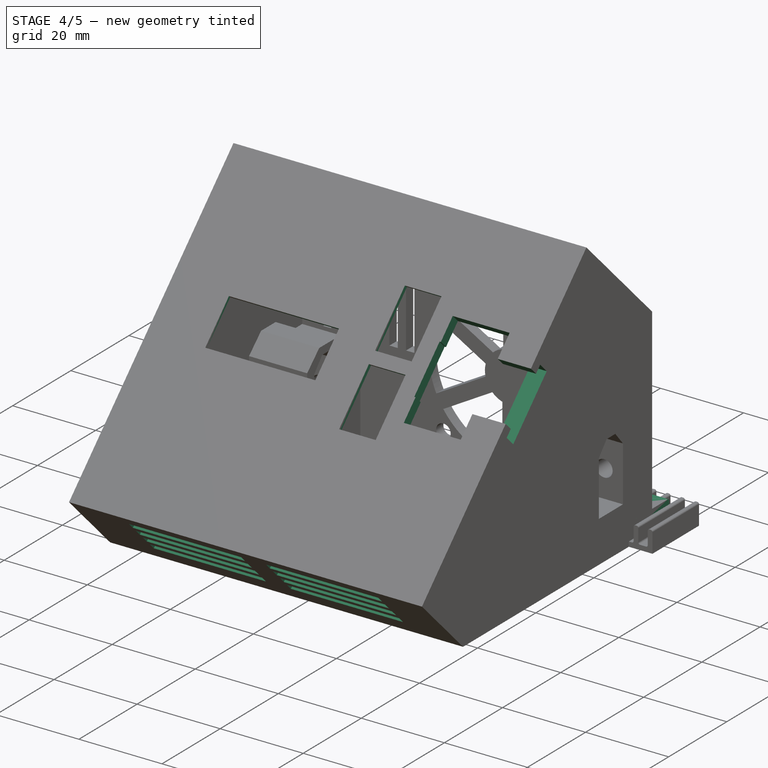
[diagram: stage 4 of 5 — iso view after this stage's code; geometry added in this stage tinted green]
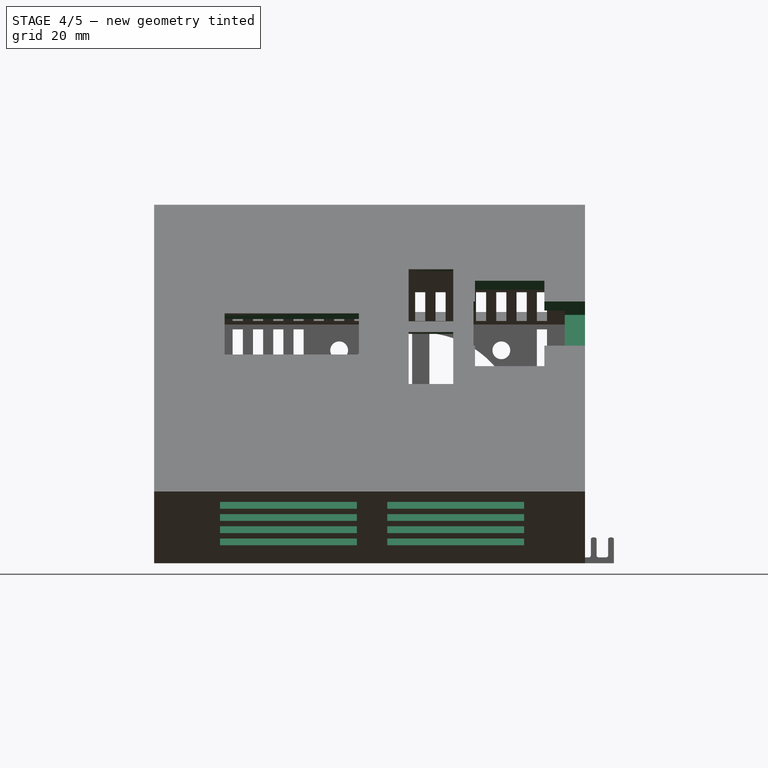
[diagram: stage 4 of 5 — front view after this stage's code; geometry added in this stage tinted green]
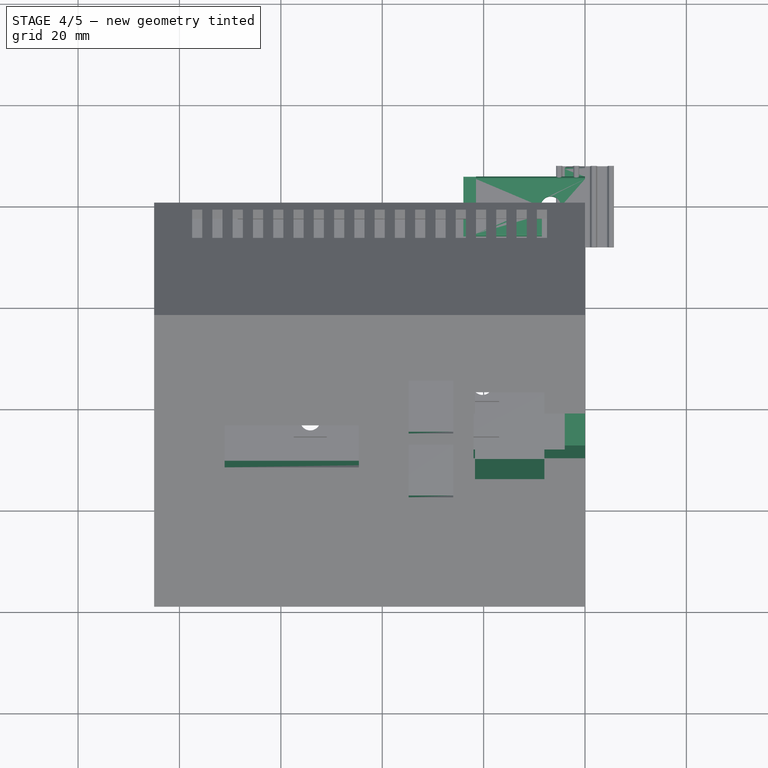
[diagram: stage 4 of 5 — top view after this stage's code; geometry added in this stage tinted green]
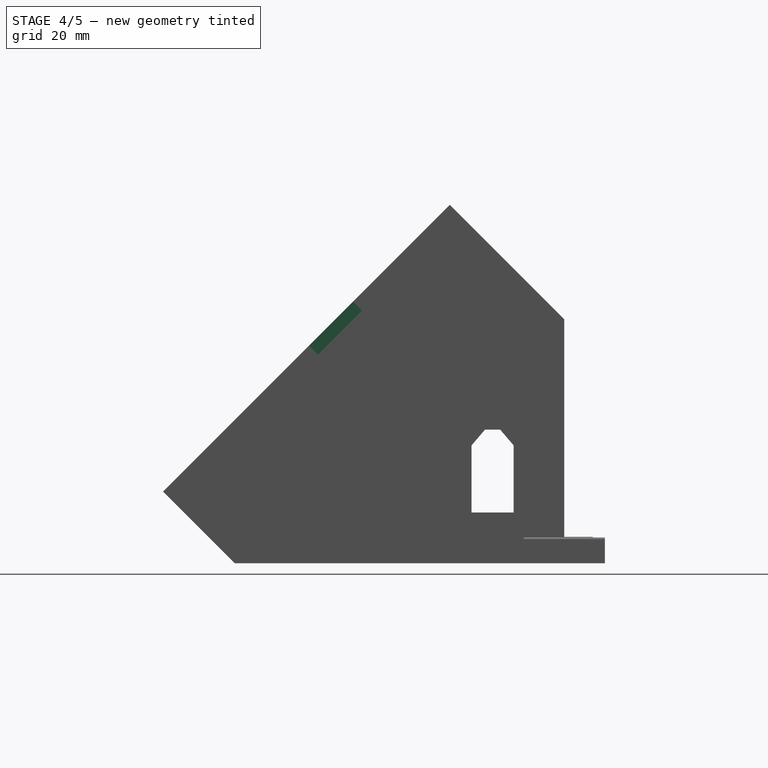
[diagram: stage 4 of 5 — right view after this stage's code; geometry added in this stage tinted green]
FEATURE [PartDesign::Body] Body010  label="visTHCM3x6_FAV002"
  Group = -> [Sketch036,Pad021,Sketch037,Pad022,DatumPlane015,Sketch038,Pocket017]
  Origin = -> Origin020
  Placement = pos=(-78.5,-61.8718,6.01041) rot=(1,0,0;3.92699rad)
  Tip = -> Pocket017
  expr: .Placement.Base.x = -(<<sp>>.largeurModuleBase - 6.5)
FEATURE [App::Part] Part010  label="xtVisInsertFix"
  Group = -> [Part003,Part007,Part002]
  Origin = -> Origin021
FEATURE [App::Part] Part011  label="xtVisInertMob"
  Group = -> [Part001,Part004,Part008]
  Origin = -> Origin022
FEATURE [App::Part] Part012  label="visInsertFavFix"
  Group = -> [Part005,Body009]
  Origin = -> Origin023
FEATURE [App::Part] Part013  label="visInserFavMob"
  Group = -> [Part006,Body010]
  Origin = -> Origin024
FEATURE [App::LinkGroup] LinkGroup  label="accessoires"
  ElementList = -> [Part010,Part011,Part012,Part013,Part009]
  LinkMode = 0
FEATURE [Sketcher::SketchObject] Sketch039
  FullyConstrained = true
  MapMode = 5
  Placement = pos=(0,-71,-2.13e-14) rot=(1,0,0;0.785398rad)
  Support = -> [DatumPlane007]
  expr: Constraints[20] = <<sp>>.favBordureJeu / 2
  expr: Constraints[21] = <<sp>>.epaisseurParois
  expr: Constraints[22] = <<sp>>.largeurModuleBase - 2 * <<sp>>.epaisseurParois
  expr: Constraints[23] = <<sp>>.insertFavDistAuZeroDuPLan + <<sp>>.favDistBordPlan
  expr: Constraints[27] = <<sp>>.insertFavDistAuZeroDuPLan + <<sp>>.Face - <<sp>>.epaisseurParois + <<sp>>.bourletMaintientRayon
  sketch-geometry (10):
    g0: LineSegment StartX=-82.5 StartY=83.2426 StartZ=0 EndX=-82.25 EndY=83.2426 EndZ=0
    g1: LineSegment StartX=-82.25 StartY=83.2426 StartZ=0 EndX=-82.25 EndY=20.9853 EndZ=0
    g2: LineSegment StartX=-82.25 StartY=20.9853 StartZ=0 EndX=-82.5 EndY=20.9853 EndZ=0
    g3: LineSegment StartX=-82.5 StartY=20.9853 StartZ=0 EndX=-82.5 EndY=83.2426 EndZ=0
    g4: LineSegment StartX=-2.5 StartY=83.2426 StartZ=0 EndX=-2.75 EndY=83.2426 EndZ=0
    g5: LineSegment StartX=-2.75 StartY=83.2426 StartZ=0 EndX=-2.75 EndY=20.9853 EndZ=0
    g6: LineSegment StartX=-2.75 StartY=20.9853 StartZ=0 EndX=-2.5 EndY=20.9853 EndZ=0
    g7: LineSegment StartX=-2.5 StartY=20.9853 StartZ=0 EndX=-2.5 EndY=83.2426 EndZ=0
    g8: LineSegment StartX=-82.25 StartY=20.9853 StartZ=0 EndX=-2.5 EndY=20.9853 EndZ=0
    g9: LineSegment StartX=-2.75 StartY=83.2426 StartZ=0 EndX=-82.25 EndY=83.2426 EndZ=0
  constraints (28):
    c: Coincident(g0,g1)
    c: Coincident(g1,g2)
    c: Coincident(g2,g3)
    c: Coincident(g3,g0)
    c: Horizontal(g0)
    c: Horizontal(g2)
    c: Vertical(g1)
    c: Vertical(g3)
    c: Coincident(g4,g5)
    c: Coincident(g5,g6)
    c: Coincident(g6,g7)
    c: Coincident(g7,g4)
    c: Horizontal(g4)
    c: Horizontal(g6)
    c: Vertical(g5)
    c: Vertical(g7)
    c: Coincident(g8,g1)
    c: Coincident(g8,g6)
    c: Horizontal(g8)
    c: Equal(g2,g6)
    c: DistanceX(g2,g2) = 0.25
    c: DistanceX(g6,g-1) = 2.5
    c: DistanceX(g2,g6) = 80
    c: DistanceY(g-1,g6) = 20.9853
    c: Coincident(g9,g4)
    c: Coincident(g9,g0)
    c: Horizontal(g9)
    c: DistanceY(g-1,g4) = 83.2426
FEATURE [PartDesign::Pocket] Pocket018  label="ajoutJeuLevreFav"
  BaseFeature = -> Pad016
  Direction = (0,0.707107,-0.707107)
  Length = 4.15
  Length2 = 5
  Profile = -> Sketch039
  ReferenceAxis = -> Sketch039 [N_Axis]
  Type = 0
  expr: Length = <<sp>>.favBordureProf
FEATURE [App::Link] Link001  label="dcdc_001"
  LinkPlacement = pos=(-37.2,-26,8) rot=(0,0,1;0rad)
  LinkedObject = -> <external modelsExterns/XL4015DCDC_002.FCStd>#_Unsaved_
  Placement = pos=(-37.2,-26,8) rot=(0,0,1;0rad)
  expr: .Placement.Base.x = <<specificSp>>.dcdcPosX
  expr: .Placement.Base.y = <<specificSp>>.dcdc_001PosY
  expr: .Placement.Base.z = <<specificSp>>.dcdcPosZ
FEATURE [App::Link] Link002  label="dcdc_002"
  LinkPlacement = pos=(-37.2,-51.5,8) rot=(0,0,1;0rad)
  LinkedObject = -> Link001
  Placement = pos=(-37.2,-51.5,8) rot=(0,0,1;0rad)
  expr: .Placement.Base.x = <<specificSp>>.dcdcPosX
  expr: .Placement.Base.y = <<specificSp>>.dcdc_002PosY
  expr: .Placement.Base.z = <<specificSp>>.dcdcPosZ
FEATURE [App::Link] Link003  label="ventilo40mm"
  LinkPlacement = pos=(-32.5,-2.5,26) rot=(0,0,-1;1.5708rad)
  LinkedObject = -> <external modelsExterns/fan40mm_001.FCStd>#Part
  Placement = pos=(-32.5,-2.5,26) rot=(0,0,-1;1.5708rad)
  expr: .Placement.Base.x = Spreadsheet002.fanPosX
  expr: .Placement.Base.y = <<specificSp>>.fanPosY
  expr: .Placement.Base.z = <<specificSp>>.fanPosZ
FEATURE [Spreadsheet::Sheet] Spreadsheet002  label="specificSp"
  cells = A2=fanPosX; B2(fanPosX)=-32.5; A3=fanPosY; B3(fanPosY)=-2.5; A4=fanPosZ; B4(fanPosZ)=26; A5=fanTouDiam; B5(fanTouDiam)=39; A6=fanTrousFixEntraxe; B6(fanTrousFixEntraxe)=32; A7=fanTrousFixDiam; B7(fanTrousFixDiam)=3.5; A8=dcdcPosX; B8(dcdcPosX)=-37.2; A9=dcdcPosZ; B9(dcdcPosZ)=8; A10=dcdc_001PosY; B10(dcdc_001PosY)=-26; A11=dcdc_002PosY; B11(dcdc_002PosY)=-51.5; A12=dcdcTrousEntraxeLong; B12(dcdcTrousEntraxeLong)=34; A13=dcdcTrousEntraxeLarg; B13(dcdcTrousEntraxeLarg)=18.5; A14=dcdcInsertDiam; B14(dcdcInsertDiam)=4; A15=dcdcPlotTaille; B15(dcdcPlotTaille)=6.5; A16=switch1PosX; B16(switch1PosX)=26; A17=switch1PosY; B17(switch1PosY)==switch2PosY + switchTrouLong + switchDistY; A18=switch2PosY; B18(switch2PosY)=30; A19=switchTrouLong; B19(switchTrouLong)==<<switch15x10_003_0>>#<<sw15x10Sp>>.trouLong; A20=switchTrouLarg; B20(switchTrouLarg)==<<switch15x10_003_0>>#<<sw15x10Sp>>.trouLarg; A21=switchDistY; B21(switchDistY)=3; A22=usb1PosX; B22(usb1PosX)=8; A23=usb1PosY; B23(usb1PosY)==switch1PosY + usb2sw_enY; A24=usb2PosY; B24(usb2PosY)==switch2PosY + usb2sw_enY; A25=usbFenLong; B25(usbFenLong)==<<usbFem_001>>#<<usbFemSp>>.fentreLong; A26=usbFenLarg; B26(usbFenLarg)==<<usbFem_001>>#<<usbFemSp>>.fentreHaut; A27=usb2sw_enY; B27(usb2sw_enY)=5; A28=languetteHaut; B28(languetteHaut)=5.7; A29=languetteLarg; B29(languetteLarg)=12.3; A30=languetteLong; B30(languetteLong)=22; A31=jeu; B31(jeuLang)=0.5; A32=tetevisM3Diam; B32(tetevisM3Diam)=5.5; A33=pcbtrousDx; B33(pcbtrousDx)=25.4; A34=pcbTrousDy; B34(pcbTrousDy)=53.34; A35=pcbPosX; B35(pcbPosX)=75; A36=pcbPosY; B36(pcbPosY)=20; A37=pcbPlotHaut; B37(pcbPlotHaut)=6.06; A38=pcbPlotTaille; B38(pcbPlotTaille)=6; A39=oledDisXvsOPvb; B39(oledDisXvsOPvb)=0; A40=oledDisYvsOPvb; B40(oledDisYvsOPvb)=20.32; A41=oledFanLong; B41(oledFanLong)==oled128x32_001#<<oledSp>>.fenLong; A42=oledFenLarg; B42(oledFenLarg)==oled128x32_001#<<oledSp>>.fenlag; A43=oledDx; B43(oledDx)==oled128x32_001#<<oledSp>>.fenDx; A44=oledDy; B44(oledDy)==oled128x32_001#<<oledSp>>.fenDy; A45=oledPcbLong; B45(oledPcbLong)==oled128x32_001#<<oledSp>>.pcbLong; A46=oledPcbLarg; B46(oledPcbLarg)==oled128x32_001#<<oledSp>>.pcbLarg; A47=oledPcbDx; B47(oledPcbDx)==oled128x32_001#<<oledSp>>.pcbDx; A48=oledPcbDy; B48(oledPcbDy)==oled128x32_001#<<oledSp>>.pcbDy
FEATURE [App::Link] Link004  label="usbFem002"
  LinkPlacement = pos=(-14.88,-34.6554,42.9002) rot=(-1,0,0;0.785398rad)
  LinkedObject = -> <external modelsExterns/usbFem_001.FCStd>#Part
  Placement = pos=(-14.88,-34.6554,42.9002) rot=(-1,0,0;0.785398rad)
FEATURE [App::Link] Link006  label="usbFem001"
  LinkPlacement = pos=(-14.83,-47.4164,30.1228) rot=(-1,0,0;0.785398rad)
  LinkedObject = -> Link004
  Placement = pos=(-14.83,-47.4164,30.1228) rot=(-1,0,0;0.785398rad)
FEATURE [App::Link] Link010  label="switch_001"
  LinkPlacement = pos=(-30.4,-53.0511,40.3143) rot=(0.360216,0.360216,-0.860516;1.71775rad)
  LinkedObject = -> <external modelsExterns/switch15x10_003_0.FCStd>#Part
  Placement = pos=(-30.4,-53.0511,40.3143) rot=(0.360216,0.360216,-0.860516;1.71775rad)
  expr: .Placement.Base.x = -(<<specificSp>>.switch1PosX + <<specificSp>>.switchTrouLarg / 2)
FEATURE [App::Link] Link011  label="switch_002"
  LinkPlacement = pos=(-30.4,-40.5229,52.8571) rot=(0.357407,0.357407,-0.862856;1.71777rad)
  LinkedObject = -> Link010
  Placement = pos=(-30.4,-40.5229,52.8571) rot=(0.357407,0.357407,-0.862856;1.71777rad)
  expr: .Placement.Base.x = -(<<specificSp>>.switch1PosX + <<specificSp>>.switchTrouLarg / 2)
FEATURE [Sketcher::SketchObject] Sketch040  label="reboucheVentiloSk"
  FullyConstrained = true
  MapMode = 5
  Placement = pos=(0,0,0) rot=(1,0,0;1.5708rad)
  Support = -> [XZ_Plane002]
  expr: Constraints[11] = <<specificSp>>.fanPosZ
  expr: Constraints[12] = -<<specificSp>>.fanPosX
  sketch-geometry (5):
    g0: LineSegment StartX=-54 StartY=47.5 StartZ=0 EndX=-54 EndY=4.5 EndZ=0
    g1: LineSegment StartX=-54 StartY=4.5 StartZ=0 EndX=-11 EndY=4.5 EndZ=0
    g2: LineSegment StartX=-11 StartY=4.5 StartZ=0 EndX=-11 EndY=47.5 EndZ=0
    g3: LineSegment StartX=-11 StartY=47.5 StartZ=0 EndX=-54 EndY=47.5 EndZ=0
    g4: GeomPoint X=-32.5 Y=26 Z=0
  constraints (13):
    c: Coincident(g0,g1)
    c: Coincident(g1,g2)
    c: Coincident(g2,g3)
    c: Coincident(g3,g0)
    c: Horizontal(g1)
    c: Horizontal(g3)
    c: Vertical(g0)
    c: Vertical(g2)
    c: Symmetric(g1,g0,g4)
    c: DistanceX(g3,g3) = 43
    c: Equal(g3,g2)
    c: DistanceY(g-1,g4) = 26
    c: DistanceX(g4,g-1) = 32.5
FEATURE [Sketcher::SketchObject] Sketch041  label="ventiloTrousFixSk"
  FullyConstrained = true
  MapMode = 5
  Placement = pos=(0,0,0) rot=(1,0,0;1.5708rad)
  Support = -> [XZ_Plane002]
  expr: Constraints[17] = <<specificSp>>.fanTrousFixDiam
  expr: Constraints[18] = <<specificSp>>.fanPosZ
  expr: Constraints[19] = -<<specificSp>>.fanPosX
  expr: Constraints[9] = <<specificSp>>.fanTrousFixEntraxe
  sketch-geometry (9):
    g0: LineSegment StartX=-48.5 StartY=42 StartZ=0 EndX=-48.5 EndY=10 EndZ=0
    g1: LineSegment StartX=-48.5 StartY=10 StartZ=0 EndX=-16.5 EndY=10 EndZ=0
    g2: LineSegment StartX=-16.5 StartY=10 StartZ=0 EndX=-16.5 EndY=42 EndZ=0
    g3: LineSegment StartX=-16.5 StartY=42 StartZ=0 EndX=-48.5 EndY=42 EndZ=0
    g4: Circle CenterX=-48.5 CenterY=42 CenterZ=0 NormalX=0 NormalY=0 NormalZ=1 AngleXU=0 Radius=1.75
    g5: Circle CenterX=-16.5 CenterY=42 CenterZ=0 NormalX=0 NormalY=0 NormalZ=1 AngleXU=0 Radius=1.75
    g6: Circle CenterX=-16.5 CenterY=10 CenterZ=0 NormalX=0 NormalY=0 NormalZ=1 AngleXU=0 Radius=1.75
    g7: Circle CenterX=-48.5 CenterY=10 CenterZ=0 NormalX=0 NormalY=0 NormalZ=1 AngleXU=0 Radius=1.75
    g8: GeomPoint X=-32.5 Y=26 Z=0
  constraints (21):
    c: Coincident(g0,g1)
    c: Coincident(g1,g2)
    c: Coincident(g2,g3)
    c: Coincident(g3,g0)
    c: Horizontal(g1)
    c: Horizontal(g3)
    c: Vertical(g0)
    c: Vertical(g2)
    c: Equal(g3,g2)
    c: DistanceX(g0,g2) = 32
    c: Coincident(g4,g0)
    c: Coincident(g5,g2)
    c: Coincident(g6,g1)
    c: Coincident(g7,g0)
    c: Equal(g4,g5)
    c: Equal(g5,g6)
    c: Equal(g6,g7)
    c: Diameter(g4) = 3.5
    c: DistanceY(g-1,g8) = 26
    c: DistanceX(g8,g-1) = 32.5
    c: Symmetric(g7,g5,g8)
FEATURE [Sketcher::SketchObject] Sketch042  label="dcdcPlotSk"
  AttachmentOffset = pos=(0,0,2.5) rot=(0,0,1;0rad)
  FullyConstrained = true
  MapMode = 5
  Placement = pos=(0,0,2.5) rot=(0,0,1;0rad)
  Support = -> [XY_Plane002]
  expr: .AttachmentOffset.Base.z = <<sp>>.epaisseurParois
  expr: Constraints[33] = <<specificSp>>.dcdcPlotTaille
  expr: Constraints[39] = -<<specificSp>>.dcdc_002PosY
  expr: Constraints[7] = <<specificSp>>.dcdcTrousEntraxeLong
  expr: Constraints[8] = -<<specificSp>>.dcdc_001PosY
  expr: Constraints[97] = <<specificSp>>.dcdcTrousEntraxeLarg
  expr: Constraints[9] = -<<specificSp>>.dcdcPosX
  sketch-geometry (50):
    g0: LineSegment StartX=-20.2 StartY=-35.25 StartZ=0 EndX=-20.2 EndY=-16.75 EndZ=0
    g1: LineSegment StartX=-20.2 StartY=-16.75 StartZ=0 EndX=-54.2 EndY=-16.75 EndZ=0
    g2: LineSegment StartX=-54.2 StartY=-16.75 StartZ=0 EndX=-54.2 EndY=-35.25 EndZ=0
    g3: LineSegment StartX=-54.2 StartY=-35.25 StartZ=0 EndX=-20.2 EndY=-35.25 EndZ=0
    g4: GeomPoint X=-37.2 Y=-26 Z=0
    g5: LineSegment StartX=-57.45 StartY=-13.5 StartZ=0 EndX=-57.45 EndY=-20 EndZ=0
    g6: LineSegment StartX=-57.45 StartY=-20 StartZ=0 EndX=-50.95 EndY=-20 EndZ=0
    g7: LineSegment StartX=-50.95 StartY=-20 StartZ=0 EndX=-50.95 EndY=-13.5 EndZ=0
    g8: LineSegment StartX=-50.95 StartY=-13.5 StartZ=0 EndX=-57.45 EndY=-13.5 EndZ=0
    g9: GeomPoint X=-54.2 Y=-16.75 Z=0
    g10: LineSegment StartX=-23.45 StartY=-32 StartZ=0 EndX=-23.45 EndY=-38.5 EndZ=0
    g11: LineSegment StartX=-23.45 StartY=-38.5 StartZ=0 EndX=-16.95 EndY=-38.5 EndZ=0
    g12: LineSegment StartX=-16.95 StartY=-38.5 StartZ=0 EndX=-16.95 EndY=-32 EndZ=0
    g13: LineSegment StartX=-16.95 StartY=-32 StartZ=0 EndX=-23.45 EndY=-32 EndZ=0
    g14: GeomPoint X=-20.2 Y=-35.25 Z=0
    g15: LineSegment StartX=-54.2 StartY=-42.25 StartZ=0 EndX=-54.2 EndY=-60.75 EndZ=0
    g16: LineSegment StartX=-54.2 StartY=-60.75 StartZ=0 EndX=-20.2 EndY=-60.75 EndZ=0
    g17: LineSegment StartX=-20.2 StartY=-60.75 StartZ=0 EndX=-20.2 EndY=-42.25 EndZ=0
    g18: LineSegment StartX=-20.2 StartY=-42.25 StartZ=0 EndX=-54.2 EndY=-42.25 EndZ=0
    g19: GeomPoint X=-37.2 Y=-51.5 Z=0
    g20: LineSegment StartX=-57.45 StartY=-32 StartZ=0 EndX=-57.45 EndY=-38.5 EndZ=0
    g21: LineSegment StartX=-57.45 StartY=-38.5 StartZ=0 EndX=-50.95 EndY=-38.5 EndZ=0
    g22: LineSegment StartX=-50.95 StartY=-38.5 StartZ=0 EndX=-50.95 EndY=-32 EndZ=0
    g23: LineSegment StartX=-50.95 StartY=-32 StartZ=0 EndX=-57.45 EndY=-32 EndZ=0
    g24: GeomPoint X=-54.2 Y=-35.25 Z=0
    g25: LineSegment StartX=-57.45 StartY=-39 StartZ=0 EndX=-57.45 EndY=-45.5 EndZ=0
    g26: LineSegment StartX=-57.45 StartY=-45.5 StartZ=0 EndX=-50.95 EndY=-45.5 EndZ=0
    g27: LineSegment StartX=-50.95 StartY=-45.5 StartZ=0 EndX=-50.95 EndY=-39 EndZ=0
    g28: LineSegment StartX=-50.95 StartY=-39 StartZ=0 EndX=-57.45 EndY=-39 EndZ=0
    g29: GeomPoint X=-54.2 Y=-42.25 Z=0
    g30: LineSegment StartX=-57.45 StartY=-57.5 StartZ=0 EndX=-57.45 EndY=-64 EndZ=0
    g31: LineSegment StartX=-57.45 StartY=-64 StartZ=0 EndX=-50.95 EndY=-64 EndZ=0
    g32: LineSegment StartX=-50.95 StartY=-64 StartZ=0 EndX=-50.95 EndY=-57.5 EndZ=0
    g33: LineSegment StartX=-50.95 StartY=-57.5 StartZ=0 EndX=-57.45 EndY=-57.5 EndZ=0
    g34: GeomPoint X=-54.2 Y=-60.75 Z=0
    g35: LineSegment StartX=-23.45 StartY=-39 StartZ=0 EndX=-23.45 EndY=-45.5 EndZ=0
    g36: LineSegment StartX=-23.45 StartY=-45.5 StartZ=0 EndX=-16.95 EndY=-45.5 EndZ=0
    g37: LineSegment StartX=-16.95 StartY=-45.5 StartZ=0 EndX=-16.95 EndY=-39 EndZ=0
    g38: LineSegment StartX=-16.95 StartY=-39 StartZ=0 EndX=-23.45 EndY=-39 EndZ=0
    g39: GeomPoint X=-20.2 Y=-42.25 Z=0
    g40: LineSegment StartX=-23.45 StartY=-13.5 StartZ=0 EndX=-23.45 EndY=-20 EndZ=0
    g41: LineSegment StartX=-23.45 StartY=-20 StartZ=0 EndX=-16.95 EndY=-20 EndZ=0
    g42: LineSegment StartX=-16.95 StartY=-20 StartZ=0 EndX=-16.95 EndY=-13.5 EndZ=0
    g43: LineSegment StartX=-16.95 StartY=-13.5 StartZ=0 EndX=-23.45 EndY=-13.5 EndZ=0
    g44: GeomPoint X=-20.2 Y=-16.75 Z=0
    g45: LineSegment StartX=-23.45 StartY=-57.5 StartZ=0 EndX=-23.45 EndY=-64 EndZ=0
    g46: LineSegment StartX=-23.45 StartY=-64 StartZ=0 EndX=-16.95 EndY=-64 EndZ=0
    g47: LineSegment StartX=-16.95 StartY=-64 StartZ=0 EndX=-16.95 EndY=-57.5 EndZ=0
    g48: LineSegment StartX=-16.95 StartY=-57.5 StartZ=0 EndX=-23.45 EndY=-57.5 EndZ=0
    g49: GeomPoint X=-20.2 Y=-60.75 Z=0
  constraints (122):
    c: Coincident(g0,g1)
    c: Coincident(g2,g3)
    c: Coincident(g3,g0)
    c: Horizontal(g1)
    c: Horizontal(g3)
    c: Vertical(g0)
    c: Symmetric(g1,g0,g4)
    c: DistanceX(g1,g0) = 34
    c: DistanceY(g4,g-1) = 26
    c: DistanceX(g4,g-1) = 37.2
    c: Coincident(g5,g6)
    c: Coincident(g6,g7)
    c: Coincident(g7,g8)
    c: Coincident(g8,g5)
    c: Horizontal(g6)
    c: Horizontal(g8)
    c: Vertical(g5)
    c: Vertical(g7)
    c: Symmetric(g6,g5,g9)
    c: Coincident(g9,g1)
    c: Coincident(g10,g11)
    c: Coincident(g11,g12)
    c: Coincident(g12,g13)
    c: Coincident(g13,g10)
    c: Horizontal(g11)
    c: Horizontal(g13)
    c: Vertical(g10)
    c: Vertical(g12)
    c: Symmetric(g11,g10,g14)
    c: Coincident(g14,g0)
    c: Equal(g12,g13)
    c: Equal(g13,g8)
    c: Equal(g8,g7)
    c: DistanceY(g12,g12) = 6.5
    c: Coincident(g16,g17)
    c: Vertical(g15)
    c: Symmetric(g16,g15,g19)
    c: Vertical(g17,g0)
    c: Vertical(g15,g2)
    c: DistanceY(g19,g-1) = 51.5
    c: Coincident(g20,g21)
    c: Coincident(g21,g22)
    c: Coincident(g22,g23)
    c: Coincident(g23,g20)
    c: Horizontal(g21)
    c: Horizontal(g23)
    c: Vertical(g20)
    c: Vertical(g22)
    c: Symmetric(g21,g20,g24)
    c: Coincident(g24,g2)
    c: Coincident(g25,g26)
    c: Coincident(g26,g27)
    c: Coincident(g27,g28)
    c: Coincident(g28,g25)
    c: Horizontal(g26)
    c: Horizontal(g28)
    c: Vertical(g25)
    c: Vertical(g27)
    c: Symmetric(g26,g25,g29)
    c: Coincident(g29,g15)
    c: Coincident(g30,g31)
    c: Coincident(g31,g32)
    c: Coincident(g32,g33)
    c: Coincident(g33,g30)
    c: Horizontal(g31)
    c: Horizontal(g33)
    c: Vertical(g30)
    c: Vertical(g32)
    c: Symmetric(g31,g30,g34)
    c: Coincident(g34,g15)
    c: Coincident(g35,g36)
    c: Coincident(g36,g37)
    c: Coincident(g37,g38)
    c: Coincident(g38,g35)
    c: Horizontal(g36)
    c: Horizontal(g38)
    c: Vertical(g35)
    c: Vertical(g37)
    c: Symmetric(g36,g35,g39)
    c: Coincident(g39,g17)
    c: Vertical(g17)
    c: Coincident(g17,g18)
    c: Horizontal(g18)
    c: Coincident(g18,g15)
    c: Horizontal(g16)
    c: Equal(g35,g36)
    c: Equal(g36,g27)
    c: Equal(g27,g26)
    c: Equal(g26,g33)
    c: Equal(g33,g32)
    c: Equal(g32,g21)
    c: Equal(g21,g22)
    c: Coincident(g15,g16)
    c: Equal(g15,g2)
    c: Vertical(g2)
    c: Coincident(g2,g1)
    c: Equal(g38,g11)
    c: DistanceY(g2,g1) = 18.5
    c: Coincident(g40,g41)
    c: Coincident(g41,g42)
    c: Coincident(g42,g43)
    c: Coincident(g43,g40)
    c: Horizontal(g41)
    c: Horizontal(g43)
    c: Vertical(g40)
    c: Vertical(g42)
    c: Symmetric(g41,g40,g44)
    c: Coincident(g44,g0)
    c: Coincident(g45,g46)
    c: Coincident(g46,g47)
    c: Coincident(g47,g48)
    c: Coincident(g48,g45)
    c: Horizontal(g46)
    c: Horizontal(g48)
    c: Vertical(g45)
    c: Vertical(g47)
    c: Symmetric(g46,g45,g49)
    c: Coincident(g49,g16)
    c: Equal(g48,g47)
    c: Equal(g48,g36)
    c: Equal(g41,g42)
    c: Equal(g13,g41)
FEATURE [Sketcher::SketchObject] Sketch043  label="dcdcTrouInsertSk"
  AttachmentOffset = pos=(0,0,8) rot=(0,0,1;0rad)
  FullyConstrained = false
  MapMode = 5
  Placement = pos=(0,0,8) rot=(0,0,1;0rad)
  Support = -> [XY_Plane002]
  expr: .AttachmentOffset.Base.z = <<specificSp>>.dcdcPosZ
  expr: Constraints[18] = <<specificSp>>.dcdcTrousEntraxeLong
  expr: Constraints[19] = <<specificSp>>.dcdcTrousEntraxeLarg
  expr: Constraints[23] = -<<specificSp>>.dcdcPosX
  expr: Constraints[24] = -<<specificSp>>.dcdc_001PosY
  expr: Constraints[25] = -<<specificSp>>.dcdc_002PosY
  expr: Constraints[30] = <<specificSp>>.dcdcInsertDiam
  sketch-geometry (14):
    g0: LineSegment StartX=-54.2 StartY=-16.75 StartZ=0 EndX=-54.2 EndY=-35.25 EndZ=0
    g1: LineSegment StartX=-54.2 StartY=-35.25 StartZ=0 EndX=-20.2 EndY=-35.25 EndZ=0
    g2: LineSegment StartX=-20.2 StartY=-35.25 StartZ=0 EndX=-20.2 EndY=-16.75 EndZ=0
    g3: LineSegment StartX=-20.2 StartY=-16.75 StartZ=0 EndX=-54.2 EndY=-16.75 EndZ=0
    g4: GeomPoint X=-37.2 Y=-26 Z=0
    g5: LineSegment StartX=-54.2 StartY=-42.25 StartZ=0 EndX=-54.2 EndY=-60.75 EndZ=0
    g6: LineSegment StartX=-54.2 StartY=-60.75 StartZ=0 EndX=-20.2 EndY=-60.75 EndZ=0
    g7: LineSegment StartX=-20.2 StartY=-60.75 StartZ=0 EndX=-20.2 EndY=-42.25 EndZ=0
    g8: LineSegment StartX=-20.2 StartY=-42.25 StartZ=0 EndX=-54.2 EndY=-42.25 EndZ=0
    g9: GeomPoint X=-37.2 Y=-51.5 Z=0
    g10: Circle CenterX=-54.2 CenterY=-16.75 CenterZ=0 NormalX=0 NormalY=0 NormalZ=1 AngleXU=0 Radius=2
    g11: Circle CenterX=-20.2 CenterY=-35.25 CenterZ=0 NormalX=0 NormalY=0 NormalZ=1 AngleXU=0 Radius=2
    g12: Circle CenterX=-54.2 CenterY=-42.25 CenterZ=0 NormalX=0 NormalY=0 NormalZ=1 AngleXU=0 Radius=2
    g13: Circle CenterX=-20.2 CenterY=-60.75 CenterZ=0 NormalX=0 NormalY=0 NormalZ=1 AngleXU=0 Radius=2
  constraints (31):
    c: Coincident(g0,g1)
    c: Coincident(g1,g2)
    c: Coincident(g2,g3)
    c: Coincident(g3,g0)
    c: Horizontal(g1)
    c: Horizontal(g3)
    c: Vertical(g0)
    c: Vertical(g2)
    c: Symmetric(g1,g0,g4)
    c: Coincident(g5,g6)
    c: Coincident(g6,g7)
    c: Coincident(g7,g8)
    c: Coincident(g8,g5)
    c: Horizontal(g6)
    c: Horizontal(g8)
    c: Vertical(g5)
    c: Vertical(g7)
    c: Symmetric(g6,g5,g9)
    c: DistanceX(g0,g2) = 34
    c: DistanceY(g0,g0) = 18.5
    c: Vertical(g4,g9)
    c: Equal(g1,g8)
    c: Equal(g5,g0)
    c: DistanceX(g4,g-1) = 37.2
    c: DistanceY(g4,g-1) = 26
    c: DistanceY(g9,g-1) = 51.5
    c: Coincident(g10,g0)
    c: Coincident(g11,g1)
    c: Coincident(g12,g5)
    c: Coincident(g13,g6)
    c: Diameter(g10) = 4
FEATURE [PartDesign::Plane] DatumPlane016  label="planFaceAvantPCB"
  AttachmentOffset = pos=(0,0,84.28) rot=(-1,0,0;0.785398rad)
  Length = 134.936
  MapMode = 5
  Placement = pos=(0,-84.28,-1.87e-14) rot=(1,0,0;0.785398rad)
  ResizeMode = 0
  Support = -> [XZ_Plane003]
  Width = 166.253
FEATURE [Sketcher::SketchObject] Sketch044  label="pcbFavSk"
  FullyConstrained = false
  MapMode = 5
  Placement = pos=(0,-84.28,-1.42e-14) rot=(1,0,0;0.785398rad)
  Support = -> [DatumPlane016]
  sketch-geometry (4):
    g0: LineSegment StartX=-80.4521 StartY=87.0314 StartZ=0 EndX=-37.8912 EndY=87.0314 EndZ=0
    g1: LineSegment StartX=-37.8912 StartY=87.0314 StartZ=0 EndX=-37.8912 EndY=42.7351 EndZ=0
    g2: LineSegment StartX=-37.8912 StartY=42.7351 StartZ=0 EndX=-80.4521 EndY=42.7351 EndZ=0
    g3: LineSegment StartX=-80.4521 StartY=42.7351 StartZ=0 EndX=-80.4521 EndY=87.0314 EndZ=0
  constraints (8):
    c: Coincident(g0,g1)
    c: Coincident(g1,g2)
    c: Coincident(g2,g3)
    c: Coincident(g3,g0)
    c: Horizontal(g0)
    c: Horizontal(g2)
    c: Vertical(g1)
    c: Vertical(g3)
FEATURE [App::Link] Link  label="theBoard"
  LinkPlacement = pos=(-59.8998,-40.5171,40.6587) rot=(0,0.92388,0.382683;3.14159rad)
  LinkedObject = -> <external modelsExterns/theBoard001.FCStd>#usb5v3a_v2_1_1
  Placement = pos=(-59.8998,-40.5171,40.6587) rot=(0,0.92388,0.382683;3.14159rad)
FEATURE [App::Link] Link014  label="trimmer001"
  LinkPlacement = pos=(-41.37,-38.5528,31.9528) rot=(0,0.923879,-0.382684;3.14159rad)
  LinkedObject = -> <external modelsExterns/trimPot/trimPot001.FCStd>#Part
  Placement = pos=(-41.37,-38.5528,31.9528) rot=(0,0.923879,-0.382684;3.14159rad)
FEATURE [App::Link] Link015  label="trimmer002"
  LinkPlacement = pos=(-41.37,-34.6683,27.9509) rot=(0,0.92388,-0.382683;3.14159rad)
  LinkedObject = -> Link014
  Placement = pos=(-41.37,-34.6683,27.9509) rot=(0,0.92388,-0.382683;3.14159rad)
FEATURE [Sketcher::SketchObject] Sketch046  label="ventiloTrouSixiemeSk"
  FullyConstrained = true
  MapMode = 5
  Placement = pos=(0,0,0) rot=(1,0,0;1.5708rad)
  Support = -> [XZ_Plane002]
  expr: Constraints[0] = -<<specificSp>>.fanPosX
  expr: Constraints[1] = <<specificSp>>.fanPosZ
  expr: Constraints[2] = <<specificSp>>.fanTouDiam
  sketch-geometry (8):
    g0: Circle CenterX=-32.5 CenterY=26 CenterZ=0 NormalX=0 NormalY=0 NormalZ=1 AngleXU=0 Radius=19.5
    g1: Circle CenterX=-32.5 CenterY=26 CenterZ=0 NormalX=0 NormalY=0 NormalZ=1 AngleXU=0 Radius=6
    g2: LineSegment StartX=-32.5 StartY=32 StartZ=0 EndX=-32.5 EndY=45.5 EndZ=0
    g3: LineSegment StartX=-32.5 StartY=26 StartZ=0 EndX=-15.6125 EndY=35.75 EndZ=0
    g4: LineSegment StartX=-30.7 StartY=31.7236 StartZ=0 EndX=-30.7 EndY=45.4167 EndZ=0
    g5: LineSegment StartX=-28.291 StartY=30.276 StartZ=0 EndX=-16.4687 EndY=37.1017 EndZ=0
    g6: ArcOfCircle CenterX=-32.5 CenterY=26 CenterZ=0 NormalX=0 NormalY=0 NormalZ=1 AngleXU=0 Radius=19.5 StartAngle=0.605673 EndAngle=1.47836
    g7: ArcOfCircle CenterX=-32.5 CenterY=26 CenterZ=0 NormalX=0 NormalY=0 NormalZ=1 AngleXU=0 Radius=6 StartAngle=0.793299 EndAngle=1.2661
  constraints (24):
    c: DistanceX(g0,g-1) = 32.5
    c: DistanceY(g-1,g0) = 26
    c: Diameter(g0) = 39
    c: Coincident(g1,g0)
    c: Diameter(g1) = 12
    c: PointOnObject(g2,g1)
    c: PointOnObject(g2,g0)
    c: Vertical(g2)
    c: Vertical(g2,g0)
    c: Coincident(g3,g0)
    c: PointOnObject(g3,g0)
    c: Angle(g3,g2) = 1.0472
    c: PointOnObject(g4,g1)
    c: PointOnObject(g4,g0)
    c: Vertical(g4)
    c: DistanceX(g2,g4) = 1.8
    c: Parallel(g5,g3)
    c: Coincident(g6,g0)
    c: Coincident(g6,g4)
    c: Coincident(g6,g5)
    c: Coincident(g7,g6)
    c: Coincident(g7,g4)
    c: Coincident(g7,g5)
    c: Distance(g5,g3) = 1.6
FEATURE [Sketcher::SketchObject] Sketch047
  FullyConstrained = true
  MapMode = 5
  Placement = pos=(0,-93.2843,-2.84e-14) rot=(1,0,0;0.785398rad)
  Support = -> [DatumPlane011]
  expr: Constraints[17] = <<sp>>.distZeroPlanFAV
  expr: Constraints[18] = <<specificSp>>.switch2PosY
  expr: Constraints[19] = <<specificSp>>.switchTrouLarg
  expr: Constraints[20] = <<specificSp>>.switchTrouLong
  expr: Constraints[24] = <<specificSp>>.switchDistY
  expr: Constraints[25] = <<specificSp>>.switch1PosX
  sketch-geometry (9):
    g0: LineSegment StartX=-34.8 StartY=82 StartZ=0 EndX=-26 EndY=82 EndZ=0
    g1: LineSegment StartX=-26 StartY=82 StartZ=0 EndX=-26 EndY=67.5 EndZ=0
    g2: LineSegment StartX=-26 StartY=67.5 StartZ=0 EndX=-34.8 EndY=67.5 EndZ=0
    g3: LineSegment StartX=-34.8 StartY=67.5 StartZ=0 EndX=-34.8 EndY=82 EndZ=0
    g4: LineSegment StartX=-34.8 StartY=64.5 StartZ=0 EndX=-26 EndY=64.5 EndZ=0
    g5: LineSegment StartX=-26 StartY=64.5 StartZ=0 EndX=-26 EndY=50 EndZ=0
    g6: LineSegment StartX=-26 StartY=50 StartZ=0 EndX=-34.8 EndY=50 EndZ=0
    g7: LineSegment StartX=-34.8 StartY=50 StartZ=0 EndX=-34.8 EndY=64.5 EndZ=0
    g8: GeomPoint X=0 Y=20 Z=0
  constraints (26):
    c: Coincident(g0,g1)
    c: Coincident(g1,g2)
    c: Coincident(g2,g3)
    c: Coincident(g3,g0)
    c: Horizontal(g0)
    c: Horizontal(g2)
    c: Vertical(g1)
    c: Vertical(g3)
    c: Coincident(g4,g5)
    c: Coincident(g5,g6)
    c: Coincident(g6,g7)
    c: Coincident(g7,g4)
    c: Horizontal(g4)
    c: Horizontal(g6)
    c: Vertical(g5)
    c: Vertical(g7)
    c: PointOnObject(g8,g-2)
    c: DistanceY(g-1,g8) = 20
    c: DistanceY(g8,g5) = 30
    c: DistanceX(g6,g5) = 8.8
    c: DistanceY(g5,g4) = 14.5
    c: Equal(g1,g5)
    c: Equal(g2,g4)
    c: Vertical(g1,g4)
    c: DistanceY(g4,g1) = 3
    c: DistanceX(g5,g-1) = 26
FEATURE [PartDesign::Pocket] Pocket022  label="switchTrous"
  BaseFeature = -> Pocket018
  Direction = (0,0.707107,-0.707107)
  Length = 2.5
  Length2 = 5
  Profile = -> Sketch047
  ReferenceAxis = -> Sketch047 [N_Axis]
  Type = 0
  expr: Length = <<sp>>.epaisseurParois
FEATURE [Sketcher::SketchObject] Sketch048
  FullyConstrained = true
  MapMode = 5
  Placement = pos=(0,-93.2843,-2.84e-14) rot=(1,0,0;0.785398rad)
  Support = -> [DatumPlane011]
  expr: Constraints[16] = <<specificSp>>.usb1PosX
  expr: Constraints[20] = <<specificSp>>.usbFenLong
  expr: Constraints[21] = <<specificSp>>.usbFenLarg
  expr: Constraints[23] = <<sp>>.distZeroPlanFAV
  expr: Constraints[24] = <<specificSp>>.usb2PosY
  expr: Constraints[25] = <<specificSp>>.usb1PosY
  sketch-geometry (9):
    g0: LineSegment StartX=-21.7 StartY=78.8 StartZ=0 EndX=-8 EndY=78.8 EndZ=0
    g1: LineSegment StartX=-8 StartY=78.8 StartZ=0 EndX=-8 EndY=72.5 EndZ=0
    g2: LineSegment StartX=-8 StartY=72.5 StartZ=0 EndX=-21.7 EndY=72.5 EndZ=0
    g3: LineSegment StartX=-21.7 StartY=72.5 StartZ=0 EndX=-21.7 EndY=78.8 EndZ=0
    g4: LineSegment StartX=-21.7 StartY=61.3 StartZ=0 EndX=-8 EndY=61.3 EndZ=0
    g5: LineSegment StartX=-8 StartY=61.3 StartZ=0 EndX=-8 EndY=55 EndZ=0
    g6: LineSegment StartX=-8 StartY=55 StartZ=0 EndX=-21.7 EndY=55 EndZ=0
    g7: LineSegment StartX=-21.7 StartY=55 StartZ=0 EndX=-21.7 EndY=61.3 EndZ=0
    g8: GeomPoint X=0 Y=20 Z=0
  constraints (26):
    c: Coincident(g0,g1)
    c: Coincident(g1,g2)
    c: Coincident(g2,g3)
    c: Coincident(g3,g0)
    c: Horizontal(g0)
    c: Horizontal(g2)
    c: Vertical(g1)
    c: Vertical(g3)
    c: Coincident(g4,g5)
    c: Coincident(g5,g6)
    c: Coincident(g6,g7)
    c: Coincident(g7,g4)
    c: Horizontal(g4)
    c: Horizontal(g6)
    c: Vertical(g5)
    c: Vertical(g7)
    c: DistanceX(g5,g-1) = 8
    c: Vertical(g1,g4)
    c: Equal(g2,g4)
    c: Equal(g7,g3)
    c: DistanceX(g0,g0) = 13.7
    c: DistanceY(g2,g0) = 6.3
    c: PointOnObject(g8,g-2)
    c: DistanceY(g-1,g8) = 20
    c: DistanceY(g8,g5) = 35
    c: DistanceY(g8,g1) = 52.5
FEATURE [PartDesign::Pocket] Pocket023  label="trousUsb"
  BaseFeature = -> Pocket022
  Direction = (0,0.707107,-0.707107)
  Length = 5
  Length2 = 5
  Profile = -> Sketch048
  ReferenceAxis = -> Sketch048 [N_Axis]
  Type = 0
FEATURE [Sketcher::SketchObject] Sketch049
  FullyConstrained = true
  MapMode = 5
  Placement = pos=(0,0,0) rot=(0.57735,0.57735,0.57735;2.0944rad)
  Support = -> [YZ_Plane003]
  expr: Constraints[12] = <<sp>>.planFaceAvant
  expr: Constraints[15] = <<sp>>.distZeroPlanFAV
  expr: Constraints[16] = <<specificSp>>.usb2PosY + <<specificSp>>.usbFenLarg - 0.6
  expr: Constraints[7] = <<specificSp>>.languetteHaut
  expr: Constraints[8] = <<specificSp>>.languetteLarg
  sketch-geometry (6):
    g0: LineSegment StartX=-41.6655 StartY=51.6188 StartZ=0 EndX=-37.635 EndY=47.5883 EndZ=0
    g1: LineSegment StartX=-37.635 StartY=47.5883 StartZ=0 EndX=-46.3324 EndY=38.8909 EndZ=0
    g2: LineSegment StartX=-46.3324 StartY=38.8909 StartZ=0 EndX=-50.3629 EndY=42.9214 EndZ=0
    g3: LineSegment StartX=-50.3629 StartY=42.9214 StartZ=0 EndX=-41.6655 EndY=51.6188 EndZ=0
    g4: LineSegment StartX=-50.3629 StartY=42.9214 StartZ=0 EndX=-93.2843 EndY=0 EndZ=0
    g5: GeomPoint X=-79.1421 Y=14.1421 Z=0
  constraints (17):
    c: Coincident(g0,g1)
    c: Coincident(g1,g2)
    c: Coincident(g2,g3)
    c: Coincident(g3,g0)
    c: Equal(g0,g2)
    c: Equal(g1,g3)
    c: Perpendicular(g0,g3)
    c: Distance(g0) = 5.7
    c: Distance(g1) = 12.3
    c: Angle(g-1,g1) = 0.785398
    c: Coincident(g4,g2)
    c: PointOnObject(g4,g-1)
    c: DistanceX(g4,g-1) = 93.2843
    c: Angle(g-1,g4) = 0.785398
    c: PointOnObject(g5,g4)
    c: Distance(g4,g5) = 20
    c: Distance(g5,g2) = 40.7
FEATURE [PartDesign::Pocket] Pocket024  label="trouLanguette"
  BaseFeature = -> Pocket023
  Direction = (-1,2e-16,-3e-16)
  Length = 22
  Length2 = 5
  Profile = -> Sketch049
  ReferenceAxis = -> Sketch049 [N_Axis]
  Type = 0
  expr: Length = <<specificSp>>.languetteLong
FEATURE [Sketcher::SketchObject] Sketch050
  FullyConstrained = true
  MapMode = 5
  Placement = pos=(0,0,0) rot=(0.57735,0.57735,0.57735;2.0944rad)
  Support = -> [YZ_Plane003]
  expr: Constraints[10] = <<sp>>.planFaceAvant - <<sp>>.epaisseurParois * sqrt(2)
  expr: Constraints[12] = <<specificSp>>.languetteHaut - <<sp>>.epaisseurParois
  expr: Constraints[14] = <<sp>>.distZeroPlanFAV - <<sp>>.epaisseurParois
  expr: Constraints[15] = <<specificSp>>.usb2PosY + <<specificSp>>.usbFenLarg - 2 - 0.6
  expr: Constraints[16] = <<specificSp>>.languetteLarg + 4
  sketch-geometry (6):
    g0: LineSegment StartX=-50.0093 StartY=39.7394 StartZ=0 EndX=-38.4835 EndY=51.2652 EndZ=0
    g1: LineSegment StartX=-38.4835 StartY=51.2652 StartZ=0 EndX=-36.2208 EndY=49.0025 EndZ=0
    g2: LineSegment StartX=-36.2208 StartY=49.0025 StartZ=0 EndX=-47.7466 EndY=37.4767 EndZ=0
    g3: LineSegment StartX=-47.7466 StartY=37.4767 StartZ=0 EndX=-50.0093 EndY=39.7394 EndZ=0
    g4: LineSegment StartX=-89.7487 StartY=0 StartZ=0 EndX=-50.0093 EndY=39.7394 EndZ=0
    g5: GeomPoint X=-77.3744 Y=12.3744 Z=0
  constraints (17):
    c: Coincident(g0,g1)
    c: Coincident(g1,g2)
    c: Coincident(g2,g3)
    c: Coincident(g3,g0)
    c: Perpendicular(g1,g0)
    c: Parallel(g3,g1)
    c: Parallel(g2,g0)
    c: Angle(g-1,g2) = 0.785398
    c: PointOnObject(g4,g-1)
    c: Coincident(g4,g0)
    c: DistanceX(g4,g-1) = 89.7487
    c: Angle(g-1,g4) = 0.785398
    c: Distance(g1) = 3.2
    c: PointOnObject(g5,g4)
    c: Distance(g5,g4) = 17.5
    c: Distance(g5,g0) = 38.7
    c: Distance(g2) = 16.3
FEATURE [PartDesign::Pocket] Pocket025  label="oreilleLanguette"
  BaseFeature = -> Pocket024
  Direction = (-1,2e-16,-3e-16)
  Length = 5
  Length2 = 5
  Profile = -> Sketch050
  ReferenceAxis = -> Sketch050 [N_Axis]
  Type = 0
FEATURE [PartDesign::Plane] DatumPlane017  label="planFaceAvantFaceInterne"
  AttachmentOffset = pos=(0,0,89.7487) rot=(-1,0,0;0.785398rad)
  Length = 134.936
  MapMode = 5
  Placement = pos=(0,-89.7487,-1.99e-14) rot=(1,0,0;0.785398rad)
  ResizeMode = 0
  Support = -> [XZ_Plane003]
  Width = 166.253
  expr: .AttachmentOffset.Base.z = <<sp>>.planFaceAvant - <<sp>>.epaisseurParois * sqrt(2)
FEATURE [Sketcher::SketchObject] Sketch051  label="evidementSwitchSk"
  FullyConstrained = true
  MapMode = 5
  Placement = pos=(0,-89.7487,-2.13e-14) rot=(0,0.92388,0.382683;3.14159rad)
  Support = -> [DatumPlane017]
  expr: Constraints[10] = <<specificSp>>.switch1PosX - 1
  expr: Constraints[11] = <<specificSp>>.switch2PosY + <<sp>>.distZeroPlanFAV - <<sp>>.epaisseurParois - 2
  expr: Constraints[13] = <<sp>>.distZeroPlanFAV - <<sp>>.epaisseurParois
  expr: Constraints[8] = <<specificSp>>.switchTrouLong * 2 + <<specificSp>>.switchDistY + 4
  expr: Constraints[9] = <<specificSp>>.switchTrouLarg + 2
  sketch-geometry (5):
    g0: LineSegment StartX=25 StartY=81.5 StartZ=0 EndX=35.8 EndY=81.5 EndZ=0
    g1: LineSegment StartX=35.8 StartY=81.5 StartZ=0 EndX=35.8 EndY=45.5 EndZ=0
    g2: LineSegment StartX=35.8 StartY=45.5 StartZ=0 EndX=25 EndY=45.5 EndZ=0
    g3: LineSegment StartX=25 StartY=45.5 StartZ=0 EndX=25 EndY=81.5 EndZ=0
    g4: GeomPoint X=0 Y=17.5 Z=0
  constraints (14):
    c: Coincident(g0,g1)
    c: Coincident(g1,g2)
    c: Coincident(g2,g3)
    c: Coincident(g3,g0)
    c: Horizontal(g0)
    c: Horizontal(g2)
    c: Vertical(g1)
    c: Vertical(g3)
    c: DistanceY(g3,g3) = 36
    c: DistanceX(g2,g2) = 10.8
    c: DistanceX(g-1,g2) = 25
    c: DistanceY(g-1,g2) = 45.5
    c: PointOnObject(g4,g-2)
    c: DistanceY(g-1,g4) = 17.5
FEATURE [PartDesign::Pocket] Pocket026  label="evidementSwitch"
  BaseFeature = -> Pocket025
  Direction = (0,-0.707107,0.707107)
  Length = 2
  Length2 = 5
  Profile = -> Sketch051
  ReferenceAxis = -> Sketch051 [N_Axis]
  Type = 0
FEATURE [Sketcher::SketchObject] Sketch052
  FullyConstrained = true
  MapMode = 5
  Placement = pos=(0,-89.7487,-2.13e-14) rot=(0,0.92388,0.382683;3.14159rad)
  Support = -> [DatumPlane017]
  expr: Constraints[10] = <<specificSp>>.usb2PosY
  expr: Constraints[11] = <<specificSp>>.usb1PosX
  expr: Constraints[12] = <<specificSp>>.usbFenLong
  expr: Constraints[9] = <<sp>>.distZeroPlanFAV - <<sp>>.epaisseurParois
  sketch-geometry (5):
    g0: LineSegment StartX=8 StartY=52.5 StartZ=0 EndX=21.7 EndY=52.5 EndZ=0
    g1: LineSegment StartX=21.7 StartY=52.5 StartZ=0 EndX=21.7 EndY=48.5 EndZ=0
    g2: LineSegment StartX=21.7 StartY=48.5 StartZ=0 EndX=8 EndY=48.5 EndZ=0
    g3: LineSegment StartX=8 StartY=48.5 StartZ=0 EndX=8 EndY=52.5 EndZ=0
    g4: GeomPoint X=0 Y=17.5 Z=0
  constraints (14):
    c: Coincident(g0,g1)
    c: Coincident(g1,g2)
    c: Coincident(g2,g3)
    c: Coincident(g3,g0)
    c: Horizontal(g0)
    c: Horizontal(g2)
    c: Vertical(g1)
    c: Vertical(g3)
    c: PointOnObject(g4,g-2)
    c: DistanceY(g-1,g4) = 17.5
    c: DistanceY(g4,g0) = 35
    c: DistanceX(g4,g2) = 8
    c: DistanceX(g2,g1) = 13.7
    c: DistanceY(g1,g1) = 4
FEATURE [PartDesign::Pad] Pad026  label="plotUsb2"
  BaseFeature = -> Pocket026
  Direction = (0,0.707107,-0.707107)
  Length = 3.2
  Length2 = 10
  Profile = -> Sketch052
  ReferenceAxis = -> Sketch052 [N_Axis]
  Type = 0
FEATURE [Sketcher::SketchObject] Sketch053
  FullyConstrained = true
  MapMode = 5
  Placement = pos=(0,0,0) rot=(0.57735,0.57735,0.57735;2.0944rad)
  Support = -> [YZ_Plane026]
  expr: Constraints[8] = <<specificSp>>.languetteLarg - Spreadsheet002.jeuLang
  expr: Constraints[9] = <<specificSp>>.languetteHaut - Spreadsheet002.jeuLang
  sketch-geometry (4):
    g0: LineSegment StartX=-5.9 StartY=0 StartZ=0 EndX=5.9 EndY=0 EndZ=0
    g1: LineSegment StartX=5.9 StartY=0 StartZ=0 EndX=5.9 EndY=5.2 EndZ=0
    g2: LineSegment StartX=5.9 StartY=5.2 StartZ=0 EndX=-5.9 EndY=5.2 EndZ=0
    g3: LineSegment StartX=-5.9 StartY=5.2 StartZ=0 EndX=-5.9 EndY=0 EndZ=0
  constraints (11):
    c: Coincident(g0,g1)
    c: Coincident(g1,g2)
    c: Coincident(g2,g3)
    c: Coincident(g3,g0)
    c: Horizontal(g2)
    c: Vertical(g1)
    c: Vertical(g3)
    c: PointOnObject(g0,g-1)
    c: DistanceX(g2,g2) = 11.8
    c: DistanceY(g0,g1) = 5.2
    c: Symmetric(g0,g0,g-2)
FEATURE [PartDesign::Pad] Pad027  label="extrusionPrincipale"
  Direction = (1,-2e-16,3e-16)
  Length = 24
  Length2 = 10
  Placement = pos=(0,0,0) rot=(0.57735,0.57735,0.57735;2.0944rad)
  Profile = -> Sketch053
  ReferenceAxis = -> Sketch053 [N_Axis]
  Reversed = true
  Type = 0
  expr: Length = <<specificSp>>.languetteLong + 2
FEATURE [App::Link] Link016  label="languetteFavPrt001"
  LinkPlacement = pos=(0,-41.9809,43.297) rot=(1,0,0;0.785398rad)
  LinkedObject = -> Part016
  Placement = pos=(0,-41.9809,43.297) rot=(1,0,0;0.785398rad)
FEATURE [Sketcher::SketchObject] Sketch054
  FullyConstrained = true
  MapMode = 5
  Placement = pos=(0,0,0) rot=(1,0,0;1.5708rad)
  Support = -> [XZ_Plane026]
  expr: Constraints[10] = <<specificSp>>.languetteLong - Spreadsheet002.jeuLang
  expr: Constraints[11] = <<specificSp>>.languetteHaut
  expr: Constraints[8] = 2 + Spreadsheet002.jeuLang
  expr: Constraints[9] = <<sp>>.epaisseurParois + Spreadsheet002.jeuLang
  sketch-geometry (4):
    g0: LineSegment StartX=-24 StartY=5.7 StartZ=0 EndX=-21.5 EndY=5.7 EndZ=0
    g1: LineSegment StartX=-21.5 StartY=5.7 StartZ=0 EndX=-21.5 EndY=2.7 EndZ=0
    g2: LineSegment StartX=-21.5 StartY=2.7 StartZ=0 EndX=-24 EndY=2.7 EndZ=0
    g3: LineSegment StartX=-24 StartY=2.7 StartZ=0 EndX=-24 EndY=5.7 EndZ=0
  constraints (12):
    c: Coincident(g0,g1)
    c: Coincident(g1,g2)
    c: Coincident(g2,g3)
    c: Coincident(g3,g0)
    c: Horizontal(g0)
    c: Horizontal(g2)
    c: Vertical(g1)
    c: Vertical(g3)
    c: DistanceX(g0,g0) = 2.5
    c: DistanceY(g3,g3) = 3
    c: DistanceX(g1,g-1) = 21.5
    c: DistanceY(g-1,g0) = 5.7
FEATURE [PartDesign::Pocket] Pocket027  label="edidement"
  BaseFeature = -> Pad027
  Direction = (0,1,2e-16)
  Length = 12.3
  Length2 = 5
  Midplane = true
  Placement = pos=(0,0,0) rot=(0.57735,0.57735,0.57735;2.0944rad)
  Profile = -> Sketch054
  ReferenceAxis = -> Sketch054 [N_Axis]
  Type = 0
  expr: Length = <<specificSp>>.languetteLarg
FEATURE [Sketcher::SketchObject] Sketch055
  FullyConstrained = true
  MapMode = 5
  Placement = pos=(0,0,0) rot=(0.57735,0.57735,0.57735;2.0944rad)
  Support = -> [YZ_Plane026]
  expr: Constraints[10] = <<specificSp>>.languetteHaut - <<sp>>.epaisseurParois - <<specificSp>>.jeuLang
  expr: Constraints[9] = <<specificSp>>.languetteLarg + 4 - <<specificSp>>.jeuLang
  sketch-geometry (4):
    g0: LineSegment StartX=-7.9 StartY=0 StartZ=0 EndX=7.9 EndY=0 EndZ=0
    g1: LineSegment StartX=7.9 StartY=0 StartZ=0 EndX=7.9 EndY=2.7 EndZ=0
    g2: LineSegment StartX=7.9 StartY=2.7 StartZ=0 EndX=-7.9 EndY=2.7 EndZ=0
    g3: LineSegment StartX=-7.9 StartY=2.7 StartZ=0 EndX=-7.9 EndY=0 EndZ=0
  constraints (11):
    c: Coincident(g0,g1)
    c: Coincident(g1,g2)
    c: Coincident(g2,g3)
    c: Coincident(g3,g0)
    c: Horizontal(g2)
    c: Vertical(g1)
    c: Vertical(g3)
    c: PointOnObject(g0,g-1)
    c: Symmetric(g0,g0,g-2)
    c: DistanceX(g0,g0) = 15.8
    c: DistanceY(g1,g1) = 2.7
FEATURE [PartDesign::Pad] Pad028  label="oreilles"
  BaseFeature = -> Pocket027
  Direction = (1,-2e-16,3e-16)
  Length = 4
  Length2 = 10
  Placement = pos=(0,0,0) rot=(0.57735,0.57735,0.57735;2.0944rad)
  Profile = -> Sketch055
  ReferenceAxis = -> Sketch055 [N_Axis]
  Reversed = true
  Type = 0
  expr: Length = <<sp>>.epaisseurParois + <<sp>>.favEpBordure
FEATURE [Sketcher::SketchObject] Sketch056
  FullyConstrained = true
  MapMode = 5
  Support = -> [XY_Plane026]
  expr: Constraints[2] = <<sp>>.epaisseurParois + <<sp>>.favEpBordure + <<specificSp>>.tetevisM3Diam / 2
  sketch-geometry (1):
    g0: Circle CenterX=-6.75 CenterY=0 CenterZ=0 NormalX=0 NormalY=0 NormalZ=1 AngleXU=0 Radius=2
  constraints (3):
    c: PointOnObject(g0,g-1)
    c: Diameter(g0) = 4
    c: DistanceX(g0,g-1) = 6.75
FEATURE [PartDesign::Pocket] Pocket028
  BaseFeature = -> Pad028
  Direction = (0,0,-1)
  Length = 5
  Length2 = 5
  Placement = pos=(0,0,0) rot=(0.57735,0.57735,0.57735;2.0944rad)
  Profile = -> Sketch056
  ReferenceAxis = -> Sketch056 [N_Axis]
  Reversed = true
  Type = 1
FEATURE [App::Link] Link017  label="visTHCM3x6_FAV003"
  LinkPlacement = pos=(-6.76,-41.9668,43.3244) rot=(1,0,0;3.92699rad)
  LinkedObject = -> Body009
  Placement = pos=(-6.76,-41.9668,43.3244) rot=(1,0,0;3.92699rad)
FEATURE [PartDesign::Fillet] Fillet
  Base = -> Pocket028 [Edge11,Edge12,Edge16,Edge43,Edge45,Edge17,Edge9,Edge26,Edge25,Edge35,Edge10,Edge34]
  BaseFeature = -> Pocket028
  Placement = pos=(0,0,0) rot=(0.57735,0.57735,0.57735;2.0944rad)
  Radius = 0.5
  SupportTransform = false
  UseAllEdges = false
FEATURE [PartDesign::Body] Body012  label="languetteFavBdy"
  Group = -> [Sketch053,Pad027,Sketch054,Pocket027,Sketch055,Pad028,Sketch056,Pocket028,Fillet]
  Origin = -> Origin030
  Tip = -> Fillet
FEATURE [App::Part] Part016  label="languetteFavPrt"
  Group = -> [Body012]
  Origin = -> Origin029
FEATURE [Sketcher::SketchObject] Sketch057  label="pcbplotSk"
  FullyConstrained = true
  MapMode = 5
  Placement = pos=(0,-89.7487,-2.13e-14) rot=(1,0,0;0.785398rad)
  Support = -> [DatumPlane017]
  expr: Constraints[19] = <<specificSp>>.pcbPlotTaille
  expr: Constraints[21] = <<sp>>.distZeroPlanFAV - <<sp>>.epaisseurParois
  expr: Constraints[22] = <<specificSp>>.pcbPosX
  expr: Constraints[23] = <<specificSp>>.pcbPosY
  expr: Constraints[26] = <<specificSp>>.pcbtrousDx
  expr: Constraints[27] = <<specificSp>>.pcbTrousDy
  sketch-geometry (13):
    g0: LineSegment StartX=-52.6 StartY=93.84 StartZ=0 EndX=-52.6 EndY=87.84 EndZ=0
    g1: LineSegment StartX=-52.6 StartY=87.84 StartZ=0 EndX=-46.6 EndY=87.84 EndZ=0
    g2: LineSegment StartX=-46.6 StartY=87.84 StartZ=0 EndX=-46.6 EndY=93.84 EndZ=0
    g3: LineSegment StartX=-46.6 StartY=93.84 StartZ=0 EndX=-52.6 EndY=93.84 EndZ=0
    g4: GeomPoint X=-49.6 Y=90.84 Z=0
    g5: LineSegment StartX=-78 StartY=40.5 StartZ=0 EndX=-78 EndY=34.5 EndZ=0
    g6: LineSegment StartX=-78 StartY=34.5 StartZ=0 EndX=-72 EndY=34.5 EndZ=0
    g7: LineSegment StartX=-72 StartY=34.5 StartZ=0 EndX=-72 EndY=40.5 EndZ=0
    g8: LineSegment StartX=-72 StartY=40.5 StartZ=0 EndX=-78 EndY=40.5 EndZ=0
    g9: GeomPoint X=-75 Y=37.5 Z=0
    g10: GeomPoint X=0 Y=17.5 Z=0
    g11: Circle CenterX=-49.6 CenterY=90.84 CenterZ=0 NormalX=0 NormalY=0 NormalZ=1 AngleXU=0 Radius=2
    g12: Circle CenterX=-75 CenterY=37.5 CenterZ=0 NormalX=0 NormalY=0 NormalZ=1 AngleXU=0 Radius=2
  constraints (32):
    c: Coincident(g0,g1)
    c: Coincident(g1,g2)
    c: Coincident(g2,g3)
    c: Coincident(g3,g0)
    c: Horizontal(g1)
    c: Horizontal(g3)
    c: Vertical(g0)
    c: Vertical(g2)
    c: Symmetric(g1,g0,g4)
    c: Coincident(g5,g6)
    c: Coincident(g6,g7)
    c: Coincident(g7,g8)
    c: Coincident(g8,g5)
    c: Horizontal(g6)
    c: Horizontal(g8)
    c: Vertical(g5)
    c: Vertical(g7)
    c: Symmetric(g6,g5,g9)
    c: Equal(g6,g7)
    c: DistanceX(g5,g6) = 6
    c: PointOnObject(g10,g-2)
    c: DistanceY(g-1,g10) = 17.5
    c: DistanceX(g9,g10) = 75
    c: DistanceY(g10,g9) = 20
    c: Equal(g1,g2)
    c: Equal(g2,g6)
    c: DistanceX(g9,g4) = 25.4
    c: DistanceY(g9,g4) = 53.34
    c: Coincident(g11,g4)
    c: Coincident(g12,g9)
    c: Equal(g12,g11)
    c: Diameter(g12) = 4
FEATURE [PartDesign::Pad] Pad029  label="pcbPlotPad"
  BaseFeature = -> Pad026
  Direction = (0,-0.707107,0.707107)
  Length = 6.06
  Length2 = 10
  Profile = -> Sketch057
  ReferenceAxis = -> Sketch057 [N_Axis]
  Reversed = true
  Type = 0
  expr: Length = <<specificSp>>.pcbPlotHaut
FEATURE [Sketcher::SketchObject] Sketch058
  FullyConstrained = true
  MapMode = 5
  Placement = pos=(0,-93.2843,-2.84e-14) rot=(1,0,0;0.785398rad)
  Support = -> [DatumPlane011]
  expr: Constraints[10] = <<specificSp>>.pcbPosX
  expr: Constraints[11] = <<specificSp>>.pcbPosY
  expr: Constraints[13] = <<specificSp>>.oledDisYvsOPvb
  expr: Constraints[14] = <<specificSp>>.oledDx
  expr: Constraints[15] = <<specificSp>>.oledDy
  expr: Constraints[16] = <<specificSp>>.oledFanLong
  expr: Constraints[17] = <<specificSp>>.oledFenLarg
  expr: Constraints[9] = <<sp>>.distZeroPlanFAV
  sketch-geometry (7):
    g0: LineSegment StartX=-71.1 StartY=69.72 StartZ=0 EndX=-44.6 EndY=69.72 EndZ=0
    g1: LineSegment StartX=-44.6 StartY=69.72 StartZ=0 EndX=-44.6 EndY=58.22 EndZ=0
    g2: LineSegment StartX=-44.6 StartY=58.22 StartZ=0 EndX=-71.1 EndY=58.22 EndZ=0
    g3: LineSegment StartX=-71.1 StartY=58.22 StartZ=0 EndX=-71.1 EndY=69.72 EndZ=0
    g4: GeomPoint X=0 Y=20 Z=0
    g5: GeomPoint X=-75 Y=40 Z=0
    g6: GeomPoint X=-75 Y=60.32 Z=0
  constraints (18):
    c: Coincident(g0,g1)
    c: Coincident(g1,g2)
    c: Coincident(g2,g3)
    c: Coincident(g3,g0)
    c: Horizontal(g0)
    c: Horizontal(g2)
    c: Vertical(g1)
    c: Vertical(g3)
    c: PointOnObject(g4,g-2)
    c: DistanceY(g-1,g4) = 20
    c: DistanceX(g5,g4) = 75
    c: DistanceY(g4,g5) = 20
    c: Vertical(g5,g6)
    c: DistanceY(g5,g6) = 20.32
    c: DistanceX(g6,g2) = 3.9
    c: DistanceY(g2,g6) = 2.1
    c: DistanceX(g2,g1) = 26.5
    c: DistanceY(g2,g0) = 11.5
FEATURE [PartDesign::Pocket] Pocket029  label="fenPcb"
  BaseFeature = -> Pad029
  Direction = (0,0.707107,-0.707107)
  Length = 2.5
  Length2 = 5
  Profile = -> Sketch058
  ReferenceAxis = -> Sketch058 [N_Axis]
  Type = 0
  expr: Length = <<sp>>.epaisseurParois
FEATURE [Sketcher::SketchObject] Sketch059
  FullyConstrained = true
  MapMode = 5
  Placement = pos=(0,-89.7487,-2.13e-14) rot=(1,0,0;0.785398rad)
  Support = -> [DatumPlane017]
  expr: Constraints[12] = <<specificSp>>.oledDisYvsOPvb
  expr: Constraints[13] = <<specificSp>>.pcbPosX
  expr: Constraints[14] = <<specificSp>>.pcbPosY
  expr: Constraints[15] = <<sp>>.distZeroPlanFAV - <<sp>>.epaisseurParois
  expr: Constraints[16] = <<specificSp>>.oledPcbDy
  expr: Constraints[17] = <<specificSp>>.oledPcbDx
  expr: Constraints[8] = <<specificSp>>.oledPcbLong + 1
  expr: Constraints[9] = <<specificSp>>.oledPcbLarg + 1
  sketch-geometry (7):
    g0: LineSegment StartX=-76.4 StartY=68.12 StartZ=0 EndX=-37.4 EndY=68.12 EndZ=0
    g1: LineSegment StartX=-37.4 StartY=68.12 StartZ=0 EndX=-37.4 EndY=55.12 EndZ=0
    g2: LineSegment StartX=-37.4 StartY=55.12 StartZ=0 EndX=-76.4 EndY=55.12 EndZ=0
    g3: LineSegment StartX=-76.4 StartY=55.12 StartZ=0 EndX=-76.4 EndY=68.12 EndZ=0
    g4: GeomPoint X=0 Y=17.5 Z=0
    g5: GeomPoint X=-75 Y=37.5 Z=0
    g6: GeomPoint X=-75 Y=57.82 Z=0
  constraints (18):
    c: Coincident(g0,g1)
    c: Coincident(g1,g2)
    c: Coincident(g2,g3)
    c: Coincident(g3,g0)
    c: Horizontal(g0)
    c: Horizontal(g2)
    c: Vertical(g1)
    c: Vertical(g3)
    c: DistanceX(g2,g2) = 39
    c: DistanceY(g1,g1) = 13
    c: PointOnObject(g4,g-2)
    c: Vertical(g6,g5)
    c: DistanceY(g5,g6) = 20.32
    c: DistanceX(g5,g4) = 75
    c: DistanceY(g4,g5) = 20
    c: DistanceY(g-1,g4) = 17.5
    c: DistanceY(g2,g6) = 2.7
    c: DistanceX(g2,g6) = 1.4
FEATURE [PartDesign::Pocket] Pocket030  label="emprunteOled"
  BaseFeature = -> Pocket029
  Direction = (0,0.707107,-0.707107)
  Length = 1.9
  Length2 = 5
  Profile = -> Sketch059
  ReferenceAxis = -> Sketch059 [N_Axis]
  Reversed = true
  Type = 0
  expr: Length = <<sp>>.epaisseurParois - 0.6
FEATURE [PartDesign::Plane] DatumPlane018
  AttachmentOffset = pos=(0,0,65) rot=(1,0,0;0.785398rad)
  Length = 134.936
  MapMode = 5
  Placement = pos=(0,-65,-1.44e-14) rot=(1,0,0;2.35619rad)
  ResizeMode = 0
  Support = -> [XZ_Plane003]
  Width = 166.253
  expr: .AttachmentOffset.Base.z = <<sp>>.Base
  expr: .AttachmentOffset.Rotation.Roll = <<sp>>.anglePetitRetourBase - 90
FEATURE [Sketcher::SketchObject] Sketch060
  FullyConstrained = true
  MapMode = 5
  Placement = pos=(0,-65,-7.1e-15) rot=(1,0,0;2.35619rad)
  Support = -> [DatumPlane018]
  sketch-geometry (39):
    g0: LineSegment StartX=-39 StartY=17.1 StartZ=0 EndX=-12 EndY=17.1 EndZ=0
    g1: LineSegment StartX=-12 StartY=17.1 StartZ=0 EndX=-12 EndY=15.2 EndZ=0
    g2: LineSegment StartX=-12 StartY=15.2 StartZ=0 EndX=-39 EndY=15.2 EndZ=0
    g3: LineSegment StartX=-39 StartY=15.2 StartZ=0 EndX=-39 EndY=17.1 EndZ=0
    g4: LineSegment StartX=-39 StartY=13.7 StartZ=0 EndX=-12 EndY=13.7 EndZ=0
    g5: LineSegment StartX=-12 StartY=13.7 StartZ=0 EndX=-12 EndY=11.8 EndZ=0
    g6: LineSegment StartX=-12 StartY=11.8 StartZ=0 EndX=-39 EndY=11.8 EndZ=0
    g7: LineSegment StartX=-39 StartY=11.8 StartZ=0 EndX=-39 EndY=13.7 EndZ=0
    g8: LineSegment StartX=-39 StartY=10.3 StartZ=0 EndX=-12 EndY=10.3 EndZ=0
    g9: LineSegment StartX=-12 StartY=10.3 StartZ=0 EndX=-12 EndY=8.4 EndZ=0
    g10: LineSegment StartX=-12 StartY=8.4 StartZ=0 EndX=-39 EndY=8.4 EndZ=0
    g11: LineSegment StartX=-39 StartY=8.4 StartZ=0 EndX=-39 EndY=10.3 EndZ=0
    g12: LineSegment StartX=-39 StartY=6.9 StartZ=0 EndX=-12 EndY=6.9 EndZ=0
    g13: LineSegment StartX=-12 StartY=6.9 StartZ=0 EndX=-12 EndY=5 EndZ=0
    g14: LineSegment StartX=-12 StartY=5 StartZ=0 EndX=-39 EndY=5 EndZ=0
    g15: LineSegment StartX=-39 StartY=5 StartZ=0 EndX=-39 EndY=6.9 EndZ=0
    g16: LineSegment StartX=-12 StartY=15.2 StartZ=0 EndX=-12 EndY=13.7 EndZ=0
    g17: LineSegment StartX=-12 StartY=11.8 StartZ=0 EndX=-12 EndY=10.3 EndZ=0
    g18: LineSegment StartX=-12 StartY=8.4 StartZ=0 EndX=-12 EndY=6.9 EndZ=0
    g19: LineSegment StartX=-45 StartY=8.4 StartZ=0 EndX=-72 EndY=8.4 EndZ=0
    g20: LineSegment StartX=-72 StartY=8.4 StartZ=0 EndX=-72 EndY=10.3 EndZ=0
    g21: LineSegment StartX=-72 StartY=10.3 StartZ=0 EndX=-45 EndY=10.3 EndZ=0
    g22: LineSegment StartX=-45 StartY=10.3 StartZ=0 EndX=-45 EndY=8.4 EndZ=0
    g23: LineSegment StartX=-45 StartY=6.9 StartZ=0 EndX=-72 EndY=6.9 EndZ=0
    g24: LineSegment StartX=-72 StartY=6.9 StartZ=0 EndX=-72 EndY=5 EndZ=0
    g25: LineSegment StartX=-72 StartY=5 StartZ=0 EndX=-45 EndY=5 EndZ=0
    g26: LineSegment StartX=-45 StartY=5 StartZ=0 EndX=-45 EndY=6.9 EndZ=0
    g27: LineSegment StartX=-72 StartY=13.7 StartZ=0 EndX=-45 EndY=13.7 EndZ=0
    g28: LineSegment StartX=-45 StartY=13.7 StartZ=0 EndX=-45 EndY=11.8 EndZ=0
    g29: LineSegment StartX=-45 StartY=11.8 StartZ=0 EndX=-72 EndY=11.8 EndZ=0
    g30: LineSegment StartX=-72 StartY=11.8 StartZ=0 EndX=-72 EndY=13.7 EndZ=0
    g31: LineSegment StartX=-45 StartY=11.8 StartZ=0 EndX=-45 EndY=10.3 EndZ=0
    g32: LineSegment StartX=-45 StartY=6.9 StartZ=0 EndX=-45 EndY=8.4 EndZ=0
    g33: LineSegment StartX=-39 StartY=5 StartZ=0 EndX=-45 EndY=5 EndZ=0
    g34: LineSegment StartX=-72 StartY=17.1 StartZ=0 EndX=-45 EndY=17.1 EndZ=0
    g35: LineSegment StartX=-45 StartY=17.1 StartZ=0 EndX=-45 EndY=15.2 EndZ=0
    g36: LineSegment StartX=-45 StartY=15.2 StartZ=0 EndX=-72 EndY=15.2 EndZ=0
    g37: LineSegment StartX=-72 StartY=15.2 StartZ=0 EndX=-72 EndY=17.1 EndZ=0
    g38: LineSegment StartX=-45 StartY=15.2 StartZ=0 EndX=-45 EndY=13.7 EndZ=0
  constraints (111):
    c: Coincident(g0,g1)
    c: Coincident(g1,g2)
    c: Coincident(g2,g3)
    c: Coincident(g3,g0)
    c: Horizontal(g0)
    c: Horizontal(g2)
    c: Vertical(g1)
    c: Vertical(g3)
    c: DistanceY(g1,g1) = 1.9
    c: DistanceX(g2,g2) = 27
    c: Coincident(g4,g5)
    c: Coincident(g5,g6)
    c: Coincident(g6,g7)
    c: Coincident(g7,g4)
    c: Horizontal(g4)
    c: Horizontal(g6)
    c: Vertical(g5)
    c: Vertical(g7)
    c: Coincident(g8,g9)
    c: Coincident(g9,g10)
    c: Coincident(g10,g11)
    c: Coincident(g11,g8)
    c: Horizontal(g8)
    c: Horizontal(g10)
    c: Vertical(g9)
    c: Vertical(g11)
    c: Coincident(g12,g13)
    c: Coincident(g13,g14)
    c: Coincident(g14,g15)
    c: Coincident(g15,g12)
    c: Horizontal(g12)
    c: Horizontal(g14)
    c: Vertical(g13)
    c: Vertical(g15)
    c: Equal(g13,g9)
    c: Equal(g9,g5)
    c: Equal(g5,g1)
    c: Equal(g2,g6)
    c: Equal(g6,g10)
    c: Equal(g10,g14)
    c: Vertical(g1,g5)
    c: Vertical(g5,g9)
    c: Vertical(g9,g13)
    c: Coincident(g16,g1)
    c: Coincident(g16,g4)
    c: Coincident(g17,g5)
    c: Coincident(g17,g8)
    c: Coincident(g18,g9)
    c: Coincident(g18,g12)
    c: Equal(g16,g17)
    c: Equal(g17,g18)
    c: DistanceX(g13) = -12
    c: DistanceY(g13) = 5
    c: DistanceY(g18,g18) = 1.5
    c: Coincident(g19,g20)
    c: Coincident(g20,g21)
    c: Coincident(g21,g22)
    c: Coincident(g22,g19)
    c: Horizontal(g19)
    c: Horizontal(g21)
    c: Vertical(g20)
    c: Vertical(g22)
    c: Coincident(g23,g24)
    c: Coincident(g24,g25)
    c: Coincident(g25,g26)
    c: Coincident(g26,g23)
    c: Horizontal(g23)
    c: Horizontal(g25)
    c: Vertical(g24)
    c: Vertical(g26)
    c: Coincident(g27,g28)
    c: Coincident(g28,g29)
    c: Coincident(g29,g30)
    c: Coincident(g30,g27)
    c: Horizontal(g27)
    c: Horizontal(g29)
    c: Vertical(g28)
    c: Vertical(g30)
    c: Coincident(g31,g28)
    c: Coincident(g31,g21)
    c: Coincident(g32,g23)
    c: Coincident(g32,g19)
    c: Vertical(g32)
    c: Vertical(g31)
    c: Equal(g31,g32)
    c: Equal(g32,g16)
    c: Equal(g28,g22)
    c: Equal(g22,g26)
    c: Equal(g26,g7)
    c: Coincident(g33,g14)
    c: Coincident(g33,g25)
    c: Horizontal(g33)
    c: Coincident(g34,g35)
    c: Coincident(g35,g36)
    c: Coincident(g36,g37)
    c: Coincident(g37,g34)
    c: Horizontal(g34)
    c: Horizontal(g36)
    c: Vertical(g35)
    c: Vertical(g37)
    c: Coincident(g38,g35)
    c: Coincident(g38,g27)
    c: Equal(g31,g38)
    c: Vertical(g38)
    c: Equal(g35,g28)
    c: Equal(g27,g34)
    c: Equal(g34,g21)
    c: Equal(g21,g23)
    c: Equal(g23,g12)
    c: DistanceX(g34,g34) = 27
    c: DistanceX(g33,g33) = 6
FEATURE [PartDesign::Pocket] Pocket031  label="ventilGrilleFav"
  BaseFeature = -> Pocket030
  Direction = (0,0.707107,0.707107)
  Length = 2.5
  Length2 = 5
  Profile = -> Sketch060
  ReferenceAxis = -> Sketch060 [N_Axis]
  Type = 0
  expr: Length = <<sp>>.epaisseurParois
FEATURE [Sketcher::SketchObject] Sketch002
  FullyConstrained = true
  MapMode = 5
  Placement = pos=(0,0,0) rot=(1,0,0;1.5708rad)
  Support = -> [XZ_Plane001]
  expr: Constraints[1] = <<sw15x10Sp>>.levreEp
  expr: Constraints[2] = <<sw15x10Sp>>.long - 2
  sketch-geometry (3):
    g0: LineSegment StartX=-5.5 StartY=1.4 StartZ=0 EndX=5.5 EndY=1.4 EndZ=0
    g1: ArcOfCircle CenterX=0.849908 CenterY=0.170661 CenterZ=0 NormalX=0 NormalY=0 NormalZ=1 AngleXU=0 Radius=4.80985 StartAngle=0.258456 EndAngle=1.1671
    g2: ArcOfCircle CenterX=-5.5 CenterY=13.6245 CenterZ=0 NormalX=0 NormalY=0 NormalZ=1 AngleXU=0 Radius=12.2245 StartAngle=4.71239 EndAngle=5.452
  constraints (9):
    c: Symmetric(g0,g0,g-2)
    c: DistanceY(g-1,g0) = 1.4
    c: DistanceX(g0,g0) = 11
    c: Coincident(g1,g0)
    c: Tangent(g2,g0) = -1.5708
    c: Coincident(g1,g2)
    c: DistanceY(g2) = 13.6245
    c: DistanceX(g1) = 0.849908
    c: DistanceY(g1) = 0.170661
FEATURE [PartDesign::Pad] Pad002
  BaseFeature = -> Chamfer
  Direction = (0,-1,-2e-16)
  Length = 6
  Length2 = 100
  Midplane = true
  Profile = -> Sketch002
  Type = 0
FEATURE [PartDesign::Fillet] Fillet
  Base = -> Pad002 [Edge37]
  BaseFeature = -> Pad002
  Radius = 1
  SupportTransform = false
  UseAllEdges = false
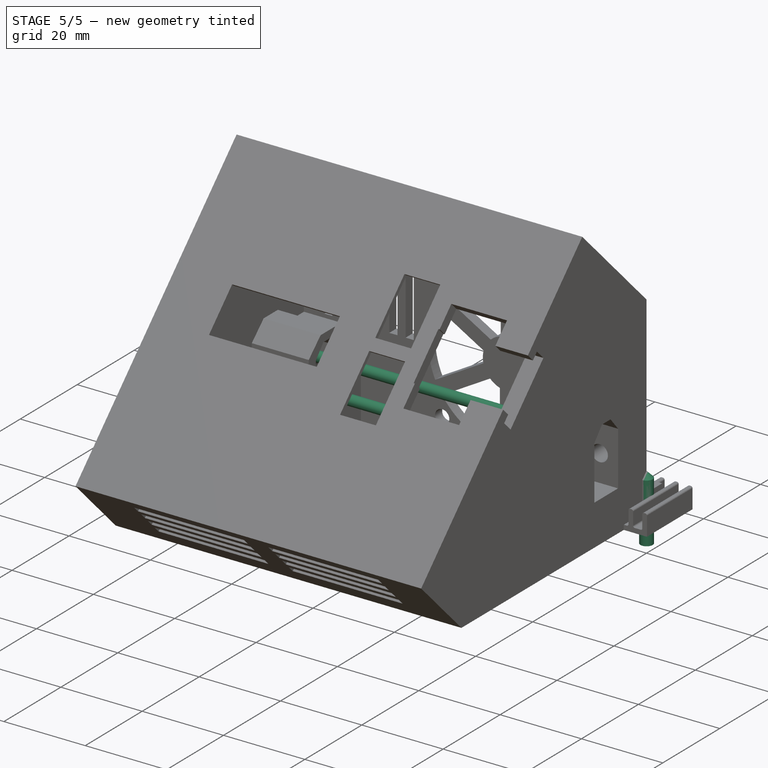
[diagram: stage 5 of 5 — iso view after this stage's code; geometry added in this stage tinted green]
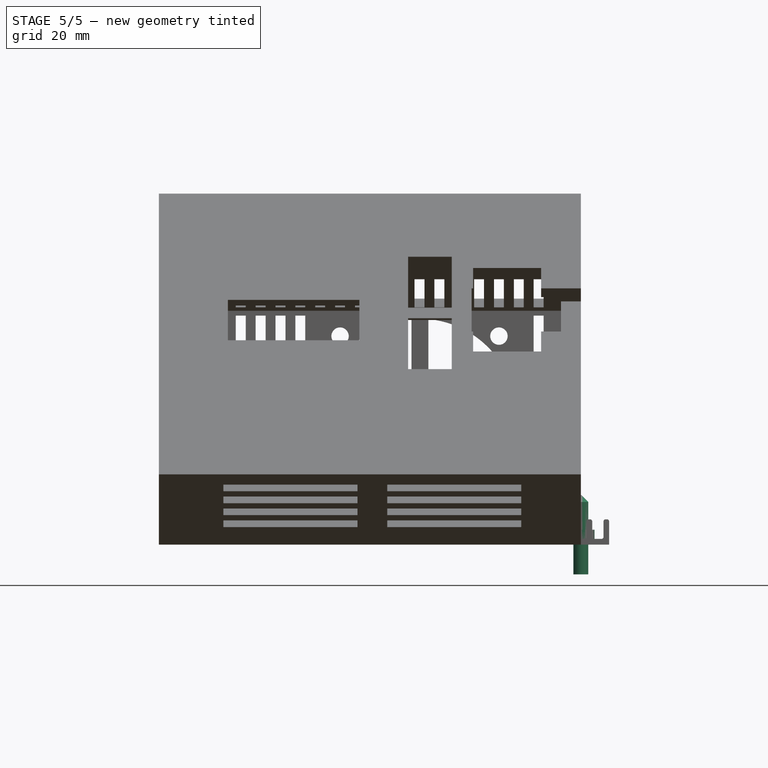
[diagram: stage 5 of 5 — front view after this stage's code; geometry added in this stage tinted green]
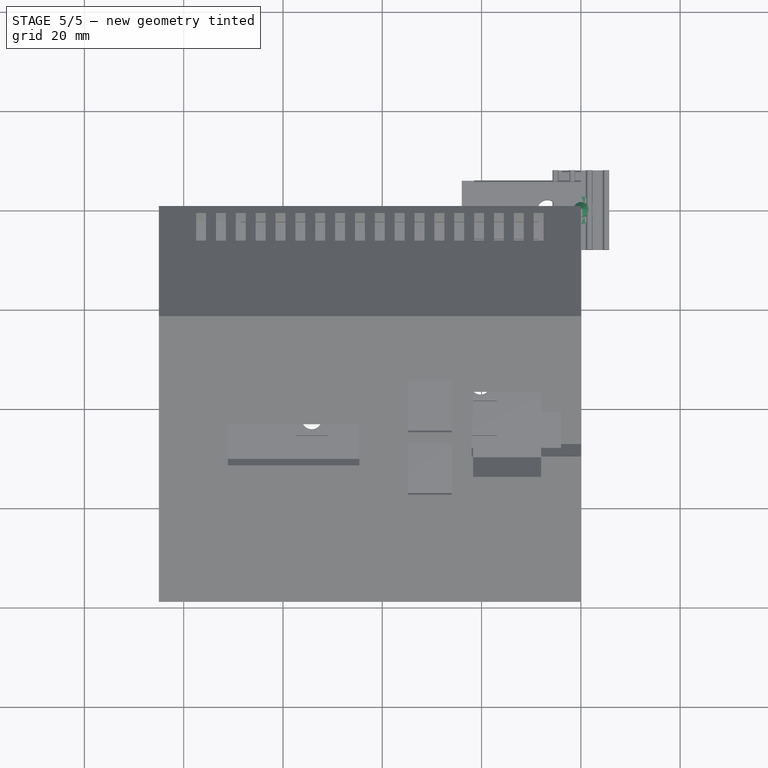
[diagram: stage 5 of 5 — top view after this stage's code; geometry added in this stage tinted green]
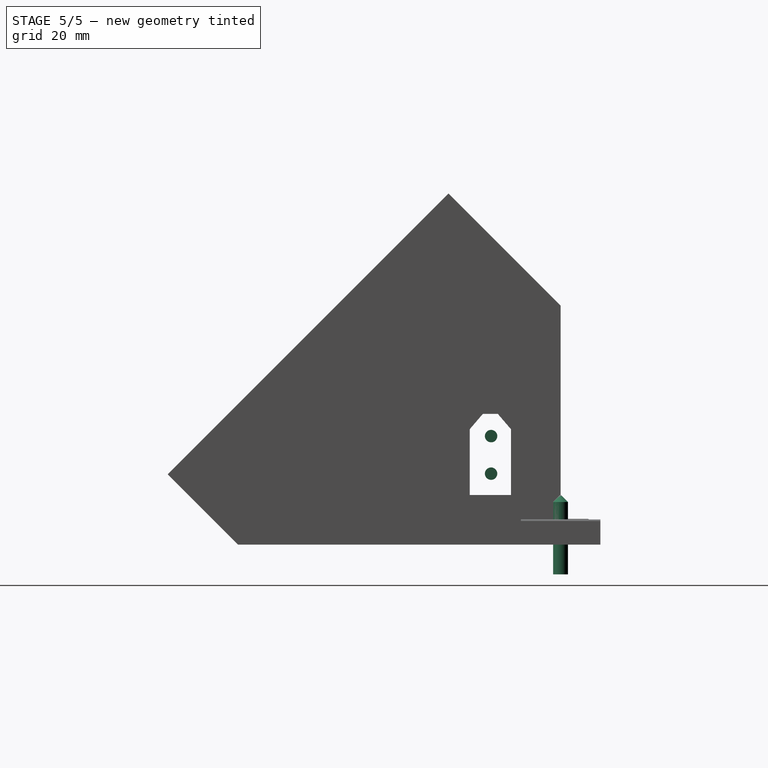
[diagram: stage 5 of 5 — right view after this stage's code; geometry added in this stage tinted green]
FEATURE [Part::Feature] Solid002  label="RUTHEX_M3x5_7"
  Placement = pos=(-11,0,0) rot=(0,0,1;0rad)
  shape: bbox 4.583 x 5.705 x 4.583 mm, 200 faces (baked)
FEATURE [App::Part] Part003  label="ZSB_RUTHEX_M3_5.7_001"
  Group = -> [Solid002]
  Origin = -> Origin006
  Placement = pos=(-15.5,1.4e-15,16.6) rot=(0,0,1;3.14159rad)
FEATURE [Part::Feature] Solid003  label="RUTHEX_M3x5_008"
  Placement = pos=(-11,0,0) rot=(0,0,1;0rad)
  shape: bbox 4.583 x 5.705 x 4.583 mm, 200 faces (baked)
FEATURE [App::Part] Part004  label="ZSB_RUTHEX_M3_5.7_002"
  Group = -> [Solid003]
  Origin = -> Origin007
  Placement = pos=(-84,3.7e-15,16.6) rot=(0,0,1;3.14159rad)
  expr: .Placement.Base.x = -(<<sp>>.largeurModuleBase - 1)
FEATURE [Part::Feature] Solid004  label="RUTHEX_M3x5_009"
  Placement = pos=(-11,0,0) rot=(0,0,1;0rad)
  shape: bbox 4.583 x 5.705 x 4.583 mm, 200 faces (baked)
FEATURE [App::Part] Part005  label="ZSB_RUTHEX_M3_5.7_003"
  Group = -> [Solid004]
  Origin = -> Origin008
  Placement = pos=(-17.5,-63.4116,7.57386) rot=(0,0.382683,0.92388;3.14159rad)
FEATURE [Part::Feature] Solid005  label="RUTHEX_M3x5_010"
  Placement = pos=(-11,0,0) rot=(0,0,1;0rad)
  shape: bbox 4.583 x 5.705 x 4.583 mm, 200 faces (baked)
FEATURE [App::Part] Part006  label="ZSB_RUTHEX_M3_5.7_004"
  Group = -> [Solid005]
  Origin = -> Origin009
  Placement = pos=(-89.5,-63.4116,7.57386) rot=(0,0.382683,0.92388;3.14159rad)
  expr: .Placement.Base.x = -(<<sp>>.largeurModuleBase + 4.5)
FEATURE [Sketcher::SketchObject] Sketch025
  FullyConstrained = false
  MapMode = 5
  Support = -> [XY_Plane008]
  sketch-geometry (1):
    g0: Circle CenterX=0 CenterY=0 CenterZ=0 NormalX=0 NormalY=0 NormalZ=1 AngleXU=0 Radius=1.5
  constraints (2):
    c: Coincident(g0,g-1)
    c: Diameter(g0) = 3
FEATURE [Sketcher::SketchObject] Sketch026
  FullyConstrained = false
  MapMode = 5
  Support = -> [XY_Plane008]
  sketch-geometry (7):
    g0: LineSegment StartX=0.433013 StartY=-0.75 StartZ=0 EndX=0.866025 EndY=1.25568e-11 EndZ=0
    g1: LineSegment StartX=0.866025 StartY=1.25568e-11 StartZ=0 EndX=0.433013 EndY=0.75 EndZ=0
    g2: LineSegment StartX=0.433013 StartY=0.75 StartZ=0 EndX=-0.433013 EndY=0.75 EndZ=0
    g3: LineSegment StartX=-0.433013 StartY=0.75 StartZ=0 EndX=-0.866025 EndY=2.91366e-11 EndZ=0
    g4: LineSegment StartX=-0.866025 StartY=2.91366e-11 StartZ=0 EndX=-0.433013 EndY=-0.75 EndZ=0
    g5: LineSegment StartX=-0.433013 StartY=-0.75 StartZ=0 EndX=0.433013 EndY=-0.75 EndZ=0
    g6: Circle CenterX=0 CenterY=0 CenterZ=0 NormalX=0 NormalY=0 NormalZ=1 AngleXU=0 Radius=0.866025
  constraints (16):
    c: Coincident(g0,g1)
    c: Coincident(g1,g2)
    c: Coincident(g2,g3)
    c: Coincident(g3,g4)
    c: Coincident(g4,g5)
    c: Coincident(g5,g0)
    c: Equal(g0, g1-g5) x5
    c: PointOnObject(g0,g6)
    c: PointOnObject(g1,g6)
    c: PointOnObject(g2,g6)
    c: PointOnObject(g3,g6)
    c: PointOnObject(g4,g6)
    c: PointOnObject(g5,g6)
    c: Coincident(g6,g-1)
    c: Horizontal(g2)
    c: DistanceY(g0,g1) = 1.5
FEATURE [PartDesign::Pad] Pad012
  AllowMultiFace = false
  Direction = (1,1,1)
  Length = 10
  Length2 = 100
  Profile = -> Sketch025
  Type = 0
FEATURE [PartDesign::Chamfer] Chamfer
  Angle = 45
  Base = -> Pad012 [Edge3]
  BaseFeature = -> Pad012
  ChamferType = 0
  FlipDirection = false
  Size = 1.4
  Size2 = 1
  SupportTransform = false
  UseAllEdges = false
FEATURE [PartDesign::Pocket] Pocket013
  AllowMultiFace = false
  BaseFeature = -> Chamfer
  Direction = (1,1,1)
  Length = 1.5
  Length2 = 100
  Profile = -> Sketch026
  Reversed = true
  Type = 0
FEATURE [PartDesign::Chamfer] Chamfer001
  Angle = 45
  Base = -> Pocket013 [Edge3]
  BaseFeature = -> Pocket013
  ChamferType = 0
  FlipDirection = false
  Size = 0.1
  Size2 = 1
  SupportTransform = false
  UseAllEdges = false
FEATURE [PartDesign::Body] Body005  label="bodyVisPointeauM3x10_001"
  Group = -> [Sketch025,Pad012,Chamfer,Sketch026,Pocket013,Chamfer001]
  Origin = -> Origin013
  Tip = -> Chamfer001
FEATURE [App::Part] Part007  label="partVisPointeauM3x10_001"
  Group = -> [Body005]
  Origin = -> Origin012
  Placement = pos=(-4.5,-0.5,16.6) rot=(1,0,0;1.5708rad)
FEATURE [Sketcher::SketchObject] Sketch027
  FullyConstrained = false
  MapMode = 5
  Support = -> [XY_Plane010]
  sketch-geometry (7):
    g0: LineSegment StartX=0.433013 StartY=-0.75 StartZ=0 EndX=0.866025 EndY=1.25568e-11 EndZ=0
    g1: LineSegment StartX=0.866025 StartY=1.25568e-11 StartZ=0 EndX=0.433013 EndY=0.75 EndZ=0
    g2: LineSegment StartX=0.433013 StartY=0.75 StartZ=0 EndX=-0.433013 EndY=0.75 EndZ=0
    g3: LineSegment StartX=-0.433013 StartY=0.75 StartZ=0 EndX=-0.866025 EndY=2.91366e-11 EndZ=0
    g4: LineSegment StartX=-0.866025 StartY=2.91366e-11 StartZ=0 EndX=-0.433013 EndY=-0.75 EndZ=0
    g5: LineSegment StartX=-0.433013 StartY=-0.75 StartZ=0 EndX=0.433013 EndY=-0.75 EndZ=0
    g6: Circle CenterX=0 CenterY=0 CenterZ=0 NormalX=0 NormalY=0 NormalZ=1 AngleXU=0 Radius=0.866025
  constraints (16):
    c: Coincident(g0,g1)
    c: Coincident(g1,g2)
    c: Coincident(g2,g3)
    c: Coincident(g3,g4)
    c: Coincident(g4,g5)
    c: Coincident(g5,g0)
    c: Equal(g0, g1-g5) x5
    c: PointOnObject(g0,g6)
    c: PointOnObject(g1,g6)
    c: PointOnObject(g2,g6)
    c: PointOnObject(g3,g6)
    c: PointOnObject(g4,g6)
    c: PointOnObject(g5,g6)
    c: Coincident(g6,g-1)
    c: Horizontal(g2)
    c: DistanceY(g0,g1) = 1.5
FEATURE [Sketcher::SketchObject] Sketch028
  FullyConstrained = false
  MapMode = 5
  Support = -> [XY_Plane010]
  sketch-geometry (1):
    g0: Circle CenterX=0 CenterY=0 CenterZ=0 NormalX=0 NormalY=0 NormalZ=1 AngleXU=0 Radius=1.5
  constraints (2):
    c: Coincident(g0,g-1)
    c: Diameter(g0) = 3
FEATURE [PartDesign::Pad] Pad013
  AllowMultiFace = false
  Direction = (1,1,1)
  Length = 10
  Length2 = 100
  Profile = -> Sketch028
  Type = 0
FEATURE [PartDesign::Chamfer] Chamfer003
  Angle = 45
  Base = -> Pad013 [Edge3]
  BaseFeature = -> Pad013
  ChamferType = 0
  FlipDirection = false
  Size = 1.4
  Size2 = 1
  SupportTransform = false
  UseAllEdges = false
FEATURE [PartDesign::Pocket] Pocket014
  AllowMultiFace = false
  BaseFeature = -> Chamfer003
  Direction = (1,1,1)
  Length = 1.5
  Length2 = 100
  Profile = -> Sketch027
  Reversed = true
  Type = 0
FEATURE [PartDesign::Chamfer] Chamfer002
  Angle = 45
  Base = -> Pocket014 [Edge3]
  BaseFeature = -> Pocket014
  ChamferType = 0
  FlipDirection = false
  Size = 0.1
  Size2 = 1
  SupportTransform = false
  UseAllEdges = false
FEATURE [Spreadsheet::Sheet] Spreadsheet001  label="tige"
  cells = A2=planBaseTigeposX; B2(planBaseTigeposX)==xtDistCorpBaseConnect; A3=xtDistCorpBaseConnect; B3(xtDistCorpBaseConnect)==12.13 - 6.95; C3=male; D3=8.46 (du bor à l'épaulement)-prof connection (6.95); A4=xtFemdistBaseConnect; B4(xtFemdistBaseConnect)==20.4 - 9.300000000000001; C4=femelle; D4=20.39(hors tou) 17.15 (du bord à l'épaulment connecteur); A5=tigeLong; B5(tigeLong)==<<sp>>.largeurModuleBase - xtDistCorpBaseConnect - xtFemdistBaseConnect - tigeJeu; A6=tigeJeu; B6(tigeJeu)=0.1; A7=tigePosX; B7(tigePosX)=14; A8=tigePosY; B8(tigePosY)=14.3; A9=tigeDiam; B9(tigeDiam)=2.5; A10=xtEcartBroches; B10(xtEcartBroches)=7.56
FEATURE [PartDesign::Plane] DatumPlane012  label="planBaseTige"
  AttachmentOffset = pos=(0,0,-5.18) rot=(0,0,1;0rad)
  Length = 60
  MapMode = 5
  Placement = pos=(-5.18,1.2e-15,-1.2e-15) rot=(0.57735,0.57735,0.57735;2.0944rad)
  ResizeMode = 0
  Support = -> [YZ_Plane012]
  Width = 60
  expr: .AttachmentOffset.Base.z = -<<tige>>.planBaseTigeposX
FEATURE [Sketcher::SketchObject] Sketch032  label="sk_tiges"
  FullyConstrained = true
  MapMode = 5
  Placement = pos=(-5.18,1.2e-15,-1.2e-15) rot=(0.57735,0.57735,0.57735;2.0944rad)
  Support = -> [DatumPlane012]
  expr: Constraints[0] = <<tige>>.tigeDiam
  expr: Constraints[1] = <<tige>>.tigePosY
  expr: Constraints[2] = <<tige>>.tigePosX
  sketch-geometry (1):
    g0: Circle CenterX=-14 CenterY=14.3 CenterZ=0 NormalX=0 NormalY=0 NormalZ=1 AngleXU=0 Radius=1.25
  constraints (3):
    c: Diameter(g0) = 2.5
    c: DistanceY(g-1,g0) = 14.3
    c: DistanceX(g0,g-1) = 14
FEATURE [PartDesign::Pad] Pad017  label="tigeBasse"
  AllowMultiFace = false
  Direction = (1,-1e-16,1e-16)
  Length = 68.62
  Length2 = 100
  Placement = pos=(-5.18,1e-15,-1e-15) rot=(0.57735,0.57735,0.57735;2.0944rad)
  Profile = -> Sketch032
  Reversed = true
  Type = 0
  expr: Length = <<tige>>.tigeLong
FEATURE [PartDesign::Body] Body007  label="tigeLaiton"
  Group = -> [DatumPlane012,Sketch032,Pad017]
  Origin = -> Origin016
  Tip = -> Pad017
FEATURE [PartDesign::Plane] DatumPlane013  label="planTige2"
  AttachmentOffset = pos=(0,0,-5.18) rot=(0,0,1;0rad)
  Length = 60
  MapMode = 5
  Placement = pos=(-5.18,1.2e-15,-1.2e-15) rot=(0.57735,0.57735,0.57735;2.0944rad)
  ResizeMode = 0
  Support = -> [YZ_Plane014]
  Width = 60
  expr: .AttachmentOffset.Base.z = -<<tige>>.planBaseTigeposX
FEATURE [Sketcher::SketchObject] Sketch033  label="sk_tige2"
  FullyConstrained = true
  MapMode = 5
  Placement = pos=(-5.18,1.2e-15,-1.2e-15) rot=(0.57735,0.57735,0.57735;2.0944rad)
  Support = -> [DatumPlane013]
  expr: Constraints[0] = <<tige>>.tigeDiam
  expr: Constraints[1] = <<tige>>.tigePosX
  expr: Constraints[2] = <<tige>>.tigePosY + <<tige>>.xtEcartBroches
  sketch-geometry (1):
    g0: Circle CenterX=-14 CenterY=21.86 CenterZ=0 NormalX=0 NormalY=0 NormalZ=1 AngleXU=0 Radius=1.25
  constraints (3):
    c: Diameter(g0) = 2.5
    c: DistanceX(g0,g-1) = 14
    c: DistanceY(g-1,g0) = 21.86
FEATURE [PartDesign::Pad] Pad018
  AllowMultiFace = false
  Direction = (1,-1e-16,1e-16)
  Length = 68.62
  Length2 = 100
  Placement = pos=(-5.18,1e-15,-1e-15) rot=(0.57735,0.57735,0.57735;2.0944rad)
  Profile = -> Sketch033
  Reversed = true
  Type = 0
  expr: Length = <<tige>>.tigeLong
FEATURE [PartDesign::Body] Body008  label="tige2"
  Group = -> [DatumPlane013,Sketch033,Pad018]
  Origin = -> Origin018
  Tip = -> Pad018
FEATURE [App::Part] Part009  label="tigeLaiton001"
  Group = -> [Body007,Spreadsheet001,Body008]
  Origin = -> Origin017
FEATURE [Sketcher::SketchObject] Sketch034  label="Sketch"
  FullyConstrained = false
  MapMode = 5
  Support = -> [XY_Plane015]
  sketch-geometry (1):
    g0: Circle CenterX=0 CenterY=0 CenterZ=0 NormalX=0 NormalY=0 NormalZ=1 AngleXU=0 Radius=2.75
  constraints (2):
    c: Coincident(g0,g-1)
    c: Diameter(g0) = 5.5
FEATURE [PartDesign::Pad] Pad019  label="tete"
  AllowMultiFace = false
  Direction = (1,1,1)
  Length = 3
  Length2 = 100
  Profile = -> Sketch034
  Type = 0
FEATURE [Sketcher::SketchObject] Sketch001
  FullyConstrained = false
  MapMode = 5
  Placement = pos=(0,0,0) rot=(1,0,0;3.14159rad)
  Support = -> [Pad019]
  sketch-geometry (1):
    g0: Circle CenterX=0 CenterY=0 CenterZ=0 NormalX=0 NormalY=0 NormalZ=1 AngleXU=0 Radius=1.5
  constraints (2):
    c: Coincident(g0,g-1)
    c: Diameter(g0) = 3
FEATURE [PartDesign::Pad] Pad020  label="corps"
  AllowMultiFace = false
  BaseFeature = -> Pad019
  Direction = (1,1,1)
  Length = 6
  Length2 = 100
  Profile = -> Sketch001
  Type = 0
FEATURE [PartDesign::Plane] DatumPlane014
  AttachmentOffset = pos=(0,0,3) rot=(0,0,1;0rad)
  Length = 60
  MapMode = 5
  Placement = pos=(0,0,3) rot=(0,0,1;0rad)
  ResizeMode = 0
  Support = -> [XY_Plane015]
  Width = 60
FEATURE [Sketcher::SketchObject] Sketch035  label="Sketch002"
  FullyConstrained = false
  MapMode = 5
  Placement = pos=(0,0,3) rot=(0,0,1;0rad)
  Support = -> [DatumPlane014]
  sketch-geometry (7):
    g0: LineSegment StartX=0.721688 StartY=-1.25 StartZ=0 EndX=1.44338 EndY=1.0119e-12 EndZ=0
    g1: LineSegment StartX=1.44338 StartY=1.0119e-12 StartZ=0 EndX=0.721688 EndY=1.25 EndZ=0
    g2: LineSegment StartX=0.721688 StartY=1.25 StartZ=0 EndX=-0.721688 EndY=1.25 EndZ=0
    g3: LineSegment StartX=-0.721688 StartY=1.25 StartZ=0 EndX=-1.44338 EndY=8.689e-13 EndZ=0
    g4: LineSegment StartX=-1.44338 StartY=8.689e-13 StartZ=0 EndX=-0.721688 EndY=-1.25 EndZ=0
    g5: LineSegment StartX=-0.721688 StartY=-1.25 StartZ=0 EndX=0.721688 EndY=-1.25 EndZ=0
    g6: Circle CenterX=0 CenterY=0 CenterZ=0 NormalX=0 NormalY=0 NormalZ=1 AngleXU=0 Radius=1.44338
  constraints (16):
    c: Coincident(g0,g1)
    c: Coincident(g1,g2)
    c: Coincident(g2,g3)
    c: Coincident(g3,g4)
    c: Coincident(g4,g5)
    c: Coincident(g5,g0)
    c: Equal(g0, g1-g5) x5
    c: PointOnObject(g0,g6)
    c: PointOnObject(g1,g6)
    c: PointOnObject(g2,g6)
    c: PointOnObject(g3,g6)
    c: PointOnObject(g4,g6)
    c: PointOnObject(g5,g6)
    c: Coincident(g6,g-1)
    c: Horizontal(g2)
    c: DistanceY(g0,g1) = 2.5
FEATURE [PartDesign::Pocket] Pocket016  label="emprunte"
  AllowMultiFace = false
  BaseFeature = -> Pad020
  Direction = (1,1,1)
  Length = 4
  Length2 = 100
  Profile = -> Sketch035
  Type = 0
FEATURE [PartDesign::Body] Body009  label="visTHCM3x6_FAV001"
  Group = -> [Sketch034,Pad019,Sketch001,Pad020,DatumPlane014,Sketch035,Pocket016]
  Origin = -> Origin019
  Placement = pos=(-6.5,-61.8718,6.01041) rot=(1,0,0;3.92699rad)
  Tip = -> Pocket016
FEATURE [Sketcher::SketchObject] Sketch036
  FullyConstrained = false
  MapMode = 5
  Support = -> [XY_Plane016]
  sketch-geometry (1):
    g0: Circle CenterX=0 CenterY=0 CenterZ=0 NormalX=0 NormalY=0 NormalZ=1 AngleXU=0 Radius=2.75
  constraints (2):
    c: Coincident(g0,g-1)
    c: Diameter(g0) = 5.5
FEATURE [PartDesign::Pad] Pad021  label="tete001"
  AllowMultiFace = false
  Direction = (1,1,1)
  Length = 3
  Length2 = 100
  Profile = -> Sketch036
  Type = 0
FEATURE [Sketcher::SketchObject] Sketch037
  FullyConstrained = false
  MapMode = 5
  Placement = pos=(0,0,0) rot=(1,0,0;3.14159rad)
  Support = -> [Pad021]
  sketch-geometry (1):
    g0: Circle CenterX=0 CenterY=0 CenterZ=0 NormalX=0 NormalY=0 NormalZ=1 AngleXU=0 Radius=1.5
  constraints (2):
    c: Coincident(g0,g-1)
    c: Diameter(g0) = 3
FEATURE [PartDesign::Pad] Pad022  label="corps001"
  AllowMultiFace = false
  BaseFeature = -> Pad021
  Direction = (1,1,1)
  Length = 6
  Length2 = 100
  Profile = -> Sketch037
  Type = 0
FEATURE [PartDesign::Plane] DatumPlane015
  AttachmentOffset = pos=(0,0,3) rot=(0,0,1;0rad)
  Length = 60
  MapMode = 5
  Placement = pos=(0,0,3) rot=(0,0,1;0rad)
  ResizeMode = 0
  Support = -> [XY_Plane016]
  Width = 60
FEATURE [Sketcher::SketchObject] Sketch038
  FullyConstrained = false
  MapMode = 5
  Placement = pos=(0,0,3) rot=(0,0,1;0rad)
  Support = -> [DatumPlane015]
  sketch-geometry (7):
    g0: LineSegment StartX=0.721688 StartY=-1.25 StartZ=0 EndX=1.44338 EndY=1.0119e-12 EndZ=0
    g1: LineSegment StartX=1.44338 StartY=1.0119e-12 StartZ=0 EndX=0.721688 EndY=1.25 EndZ=0
    g2: LineSegment StartX=0.721688 StartY=1.25 StartZ=0 EndX=-0.721688 EndY=1.25 EndZ=0
    g3: LineSegment StartX=-0.721688 StartY=1.25 StartZ=0 EndX=-1.44338 EndY=8.689e-13 EndZ=0
    g4: LineSegment StartX=-1.44338 StartY=8.689e-13 StartZ=0 EndX=-0.721688 EndY=-1.25 EndZ=0
    g5: LineSegment StartX=-0.721688 StartY=-1.25 StartZ=0 EndX=0.721688 EndY=-1.25 EndZ=0
    g6: Circle CenterX=0 CenterY=0 CenterZ=0 NormalX=0 NormalY=0 NormalZ=1 AngleXU=0 Radius=1.44338
  constraints (16):
    c: Coincident(g0,g1)
    c: Coincident(g1,g2)
    c: Coincident(g2,g3)
    c: Coincident(g3,g4)
    c: Coincident(g4,g5)
    c: Coincident(g5,g0)
    c: Equal(g0, g1-g5) x5
    c: PointOnObject(g0,g6)
    c: PointOnObject(g1,g6)
    c: PointOnObject(g2,g6)
    c: PointOnObject(g3,g6)
    c: PointOnObject(g4,g6)
    c: PointOnObject(g5,g6)
    c: Coincident(g6,g-1)
    c: Horizontal(g2)
    c: DistanceY(g0,g1) = 2.5
FEATURE [PartDesign::Pocket] Pocket017  label="emprunte001"
  AllowMultiFace = false
  BaseFeature = -> Pad022
  Direction = (1,1,1)
  Length = 4
  Length2 = 100
  Profile = -> Sketch038
  Type = 0
FEATURE [PartDesign::Chamfer] Chamfer
  Angle = 45
  Base = -> Pad001 [Edge7,Edge4,Edge10,Edge16]
  BaseFeature = -> Pad001
  ChamferType = 0
  FlipDirection = false
  Size = 1
  Size2 = 1
  SupportTransform = false
  UseAllEdges = false
FEATURE [PartDesign::Chamfer] Chamfer001  label="chanfreinCosse"
  Angle = 45
  Base = -> Pad003 [Edge60,Edge57,Edge68,Edge65]
  BaseFeature = -> Pad003
  ChamferType = 0
  FlipDirection = false
  Size = 1.5
  Size2 = 1
  SupportTransform = false
  UseAllEdges = false
FEATURE [PartDesign::Body] Body  label="sw15x10Bdy"
  Group = -> [Sketch,Pad,Sketch001,Pad001,Chamfer,Sketch002,Pad002,Fillet,DatumPlane,Sketch003,Pad003,Chamfer001]
  Origin = -> Origin001
  Tip = -> Chamfer001
FEATURE [App::Part] Part  label="sw15x10Prt"
  Group = -> [Body,Spreadsheet]
  Origin = -> Origin
---- part modelsExterns/usbFem_001.FCStd = doc fcstd_5312807c85f6 ----
FCSTD DOCUMENT  (FreeCAD 0.20R29177 (Git))
Label: usbFem_001
License: All rights reserved
LicenseURL: http://en.wikipedia.org/wiki/All_rights_reserved
objects: Sketcher::SketchObject×3, Part::Feature×1, Spreadsheet::Sheet×1, PartDesign::Body×1, App::Part×1
note: 5 computed .brp shape members not serialized (recipe doc carries the construction recipe); baked Part::Feature solids carry a one-line shape summary decoded from their .brp

FEATURE [Part::Feature] Part__Feature  label="WR-COM USB 2.0 Type A Horizontal THT_614004190021 (rev1)"
  shape: bbox 17.01 x 23.01 x 11.41 mm, 3609 faces, 48 solids (baked)
FEATURE [Sketcher::SketchObject] Sketch  label="planHrzSk"
  FullyConstrained = false
  MapMode = 5
  Support = -> [XY_Plane001]
  sketch-geometry (7):
    g0: LineSegment StartX=-8.53525 StartY=11.5508 StartZ=0 EndX=8.49801 EndY=11.5508 EndZ=0
    g1: LineSegment StartX=8.49801 StartY=11.5508 StartZ=0 EndX=8.49801 EndY=-5.4299 EndZ=0
    g2: LineSegment StartX=8.49801 StartY=-5.4299 StartZ=0 EndX=-8.53525 EndY=-5.4299 EndZ=0
    g3: LineSegment StartX=-8.53525 StartY=-5.4299 StartZ=0 EndX=-8.53525 EndY=11.5508 EndZ=0
    g4: Circle CenterX=-6.00841 CenterY=5.14787 CenterZ=0 NormalX=0 NormalY=0 NormalZ=1 AngleXU=0 Radius=1.6
    g5: Circle CenterX=6.00841 CenterY=5.14787 CenterZ=0 NormalX=0 NormalY=0 NormalZ=1 AngleXU=0 Radius=1.6
    g6: LineSegment StartX=-6.00841 StartY=5.14787 StartZ=0 EndX=6.00841 EndY=5.14787 EndZ=0
  constraints (18):
    c: Coincident(g0,g1)
    c: Coincident(g1,g2)
    c: Coincident(g2,g3)
    c: Coincident(g3,g0)
    c: Horizontal(g0)
    c: Horizontal(g2)
    c: Vertical(g1)
    c: Vertical(g3)
    c: DistanceX(g0,g0) = 17.0333
    c: DistanceY(g3,g3) = 16.9807
    c: Coincident(g6,g4)
    c: Coincident(g6,g5)
    c: Equal(g5,g4)
    c: Diameter(g5) = 3.2
    c: DistanceX(g6,g6) = 12.0168
    c: DistanceY(g2,g4) = 10.5778
    c: Symmetric(g4,g5,g-2)
    c: DistanceY(g4,g0) = 6.40292
FEATURE [Sketcher::SketchObject] Sketch001  label="planVertProfilSk"
  FullyConstrained = false
  MapMode = 5
  Placement = pos=(0,0,0) rot=(0.57735,0.57735,0.57735;2.0944rad)
  Support = -> [YZ_Plane001]
  sketch-geometry (8):
    g0: LineSegment StartX=-10.8262 StartY=6.75736 StartZ=0 EndX=2.94928 EndY=6.75736 EndZ=0
    g1: LineSegment StartX=2.94928 StartY=6.75736 StartZ=0 EndX=2.94928 EndY=-1.54264 EndZ=0
    g2: LineSegment StartX=2.94928 StartY=-1.54264 StartZ=0 EndX=-10.8262 EndY=-1.54264 EndZ=0
    g3: LineSegment StartX=-10.8262 StartY=-1.54264 StartZ=0 EndX=-10.8262 EndY=6.75736 EndZ=0
    g4: LineSegment StartX=11.5493 StartY=-1.54264 StartZ=0 EndX=2.94928 EndY=-1.54264 EndZ=0
    g5: LineSegment StartX=2.94928 StartY=-1.54264 StartZ=0 EndX=2.94928 EndY=6.75736 EndZ=0
    g6: LineSegment StartX=2.94928 StartY=6.75736 StartZ=0 EndX=11.5493 EndY=6.75736 EndZ=0
    g7: LineSegment StartX=11.5493 StartY=6.75736 StartZ=0 EndX=11.5493 EndY=-1.54264 EndZ=0
  constraints (19):
    c: Coincident(g0,g1)
    c: Coincident(g1,g2)
    c: Coincident(g2,g3)
    c: Coincident(g3,g0)
    c: Horizontal(g0)
    c: Horizontal(g2)
    c: Vertical(g1)
    c: Vertical(g3)
    c: Coincident(g4,g5)
    c: Coincident(g5,g6)
    c: Coincident(g6,g7)
    c: Coincident(g7,g4)
    c: Horizontal(g4)
    c: Horizontal(g6)
    c: Vertical(g7)
    c: Coincident(g5,g0)
    c: DistanceY(g7,g7) = 8.3
    c: DistanceX(g6,g6) = 8.6
    c: Coincident(g1,g4)
FEATURE [Spreadsheet::Sheet] Spreadsheet  label="usbFemSp"
  cells = A2=trousEntraxe; B2(trousEntraxe)=12; A3=trousBordSupDist; B3(trousBordSupDist)=6.4; A4=trousDiam; B4(trousDiam)=3.2; A5=fentreLong; B5(fentreLong)=13.7; C5=13.2 mesurée + 0.5 pour compensé l'impression; A6=fentreHaut; B6(fentreHaut)=6.3; C6=5.8+0.5; A7=fenetreBasePSBTopDist; B7(fenetreBasePSBTopDist)=8.300000000000001
FEATURE [Sketcher::SketchObject] Sketch002  label="planVertFaceSk"
  FullyConstrained = false
  MapMode = 5
  Placement = pos=(0,0,0) rot=(1,0,0;1.5708rad)
  Support = -> [XZ_Plane001]
  sketch-geometry (8):
    g0: LineSegment StartX=-8.51172 StartY=-1.47776 StartZ=0 EndX=8.51172 EndY=-1.47776 EndZ=0
    g1: LineSegment StartX=8.51172 StartY=-1.47776 StartZ=0 EndX=8.51172 EndY=6.84754 EndZ=0
    g2: LineSegment StartX=8.51172 StartY=6.84754 StartZ=0 EndX=-8.51172 EndY=6.84754 EndZ=0
    g3: LineSegment StartX=-8.51172 StartY=6.84754 StartZ=0 EndX=-8.51172 EndY=-1.47776 EndZ=0
    g4: LineSegment StartX=-6.61961 StartY=6.84754 StartZ=0 EndX=6.61961 EndY=6.84754 EndZ=0
    g5: LineSegment StartX=6.61961 StartY=6.84754 StartZ=0 EndX=6.61961 EndY=1.2658 EndZ=0
    g6: LineSegment StartX=6.61961 StartY=1.2658 StartZ=0 EndX=-6.61961 EndY=1.2658 EndZ=0
    g7: LineSegment StartX=-6.61961 StartY=1.2658 StartZ=0 EndX=-6.61961 EndY=6.84754 EndZ=0
  constraints (19):
    c: Coincident(g0,g1)
    c: Coincident(g1,g2)
    c: Coincident(g2,g3)
    c: Coincident(g3,g0)
    c: Horizontal(g0)
    c: Vertical(g1)
    c: Vertical(g3)
    c: Coincident(g4,g5)
    c: Coincident(g5,g6)
    c: Coincident(g6,g7)
    c: Coincident(g7,g4)
    c: Horizontal(g6)
    c: Vertical(g5)
    c: Vertical(g7)
    c: PointOnObject(g4,g2)
    c: DistanceX(g4,g4) = 13.2392
    c: Symmetric(g4,g4,g-2)
    c: Symmetric(g2,g1,g-2)
    c: DistanceY(g6,g4) = 5.58173
FEATURE [PartDesign::Body] Body  label="checkerBdy"
  Group = -> [Sketch,Sketch001,Sketch002]
  Origin = -> Origin001
FEATURE [App::Part] Part  label="usbFemBBPart"
  Group = -> [Part__Feature,Body,Spreadsheet]
  Origin = -> Origin
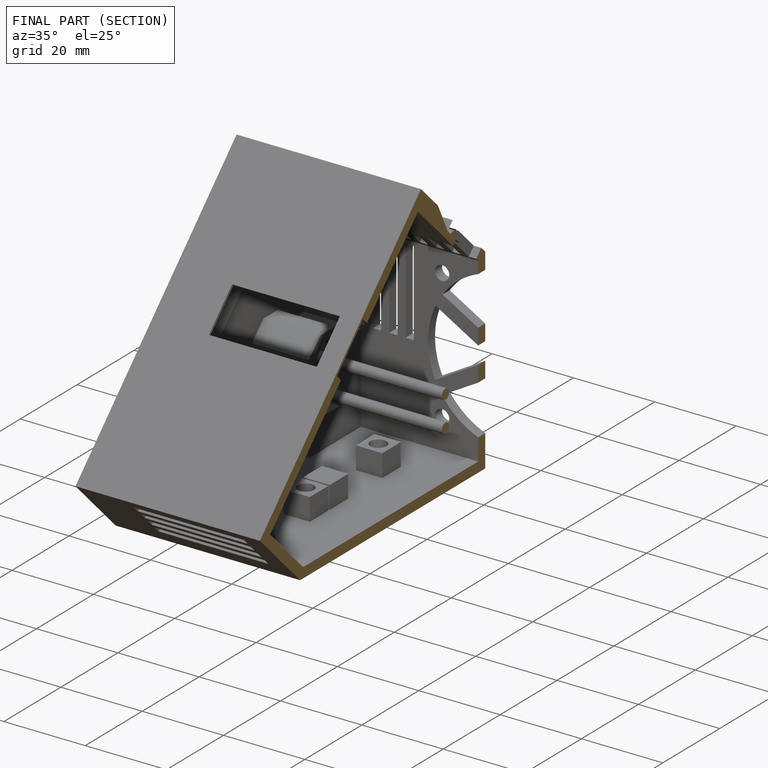
[diagram: finished part — half-section view (interior)]
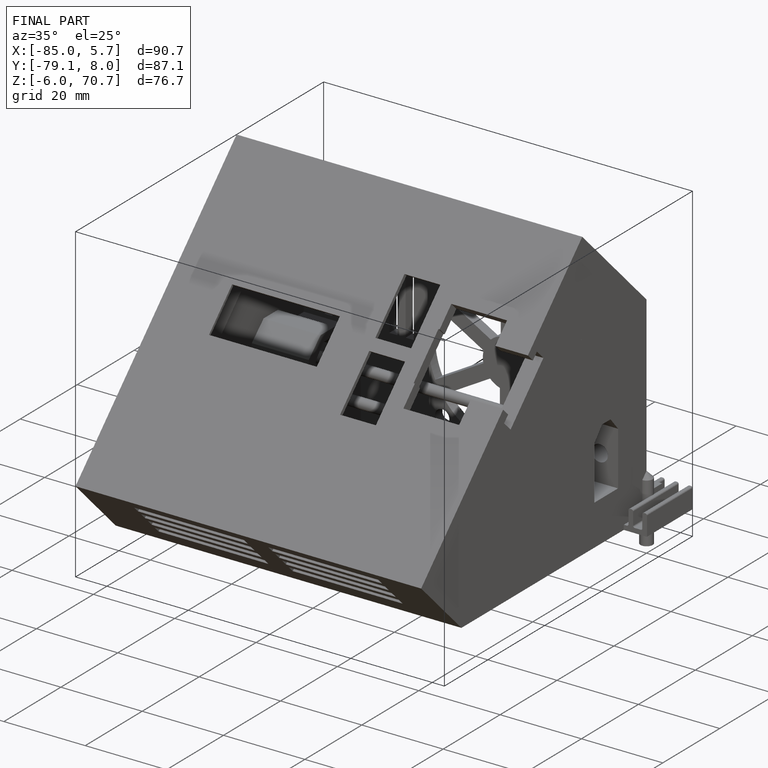
[diagram: finished part — iso view with bounding-box wireframe]
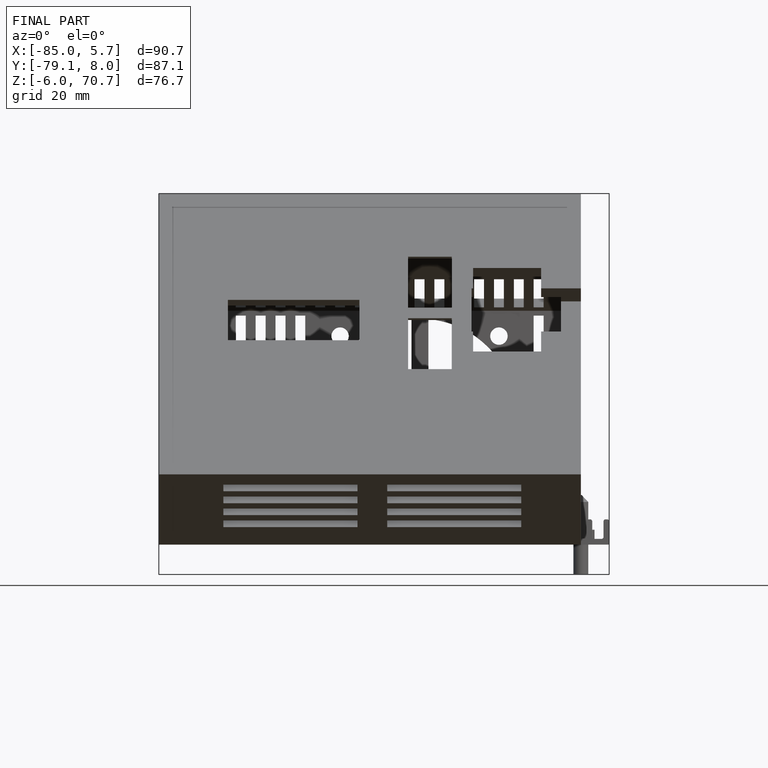
[diagram: finished part — front view with bounding-box wireframe]
